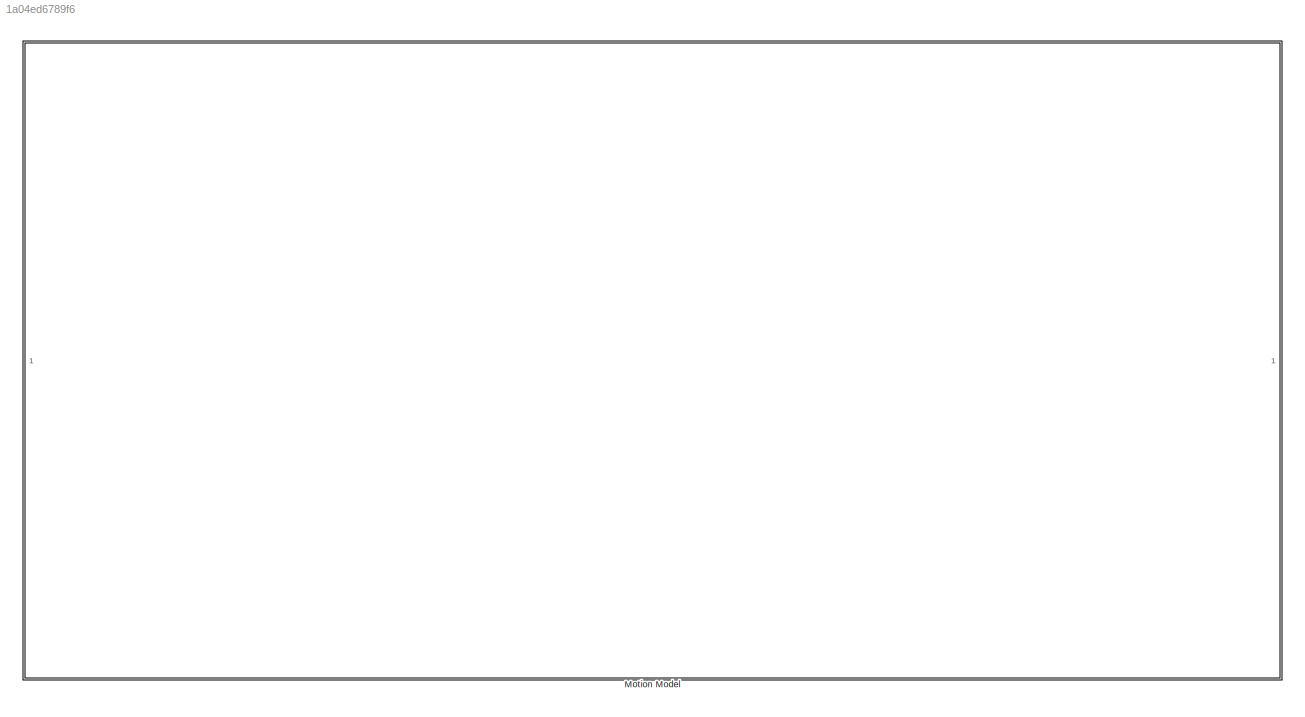
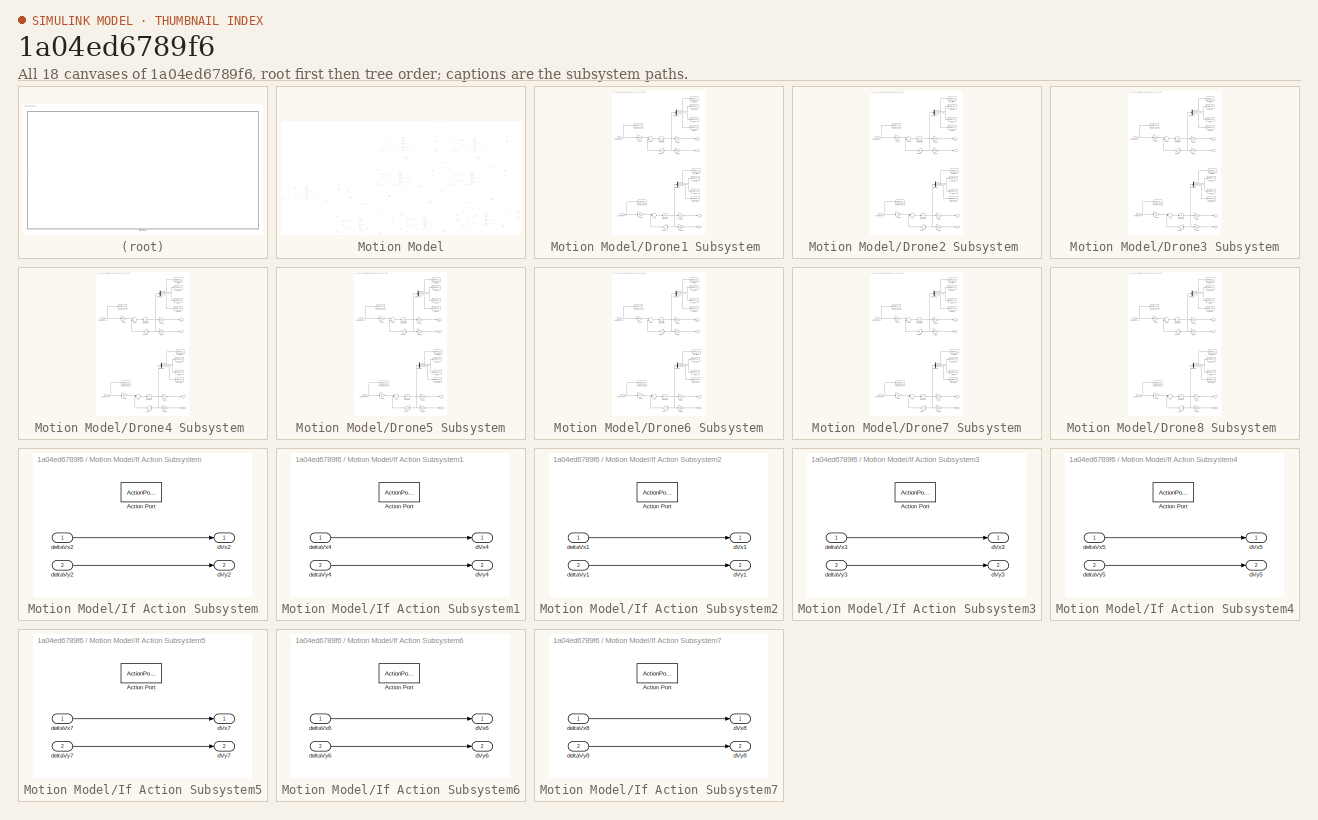
[diagram: thumbnail index - all 18 canvases of the model, root first then tree order]
MODEL slx_1a04ed6789f6
KIND model
CONFIG AbsTol = auto
CONFIG EnableMultiTasking = off
CONFIG FixedStep = auto
CONFIG MaxStep = auto
CONFIG MinStep = auto
CONFIG RelTol = 1e-3
CONFIG SampleTimeConstraint = Unconstrained
CONFIG Solver = VariableStepAuto
CONFIG SolverName = VariableStepAuto
CONFIG StartTime = tStart 
CONFIG StopTime = tFinal
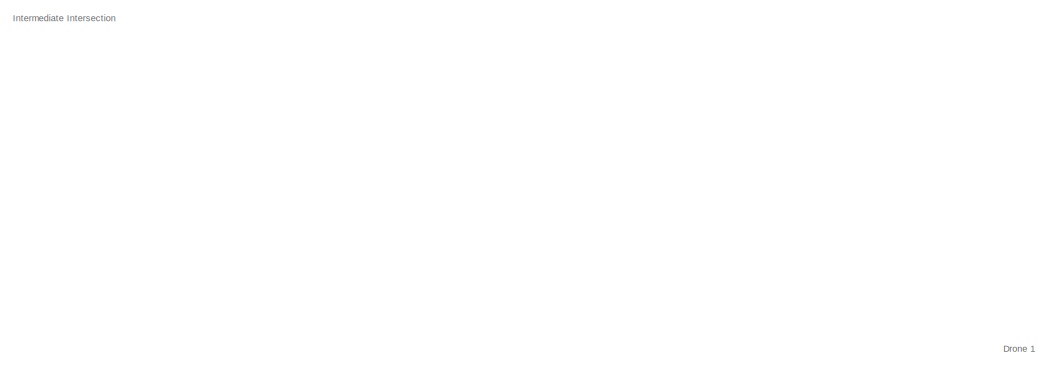
[diagram: Motion Model - part 1/25, top right region]
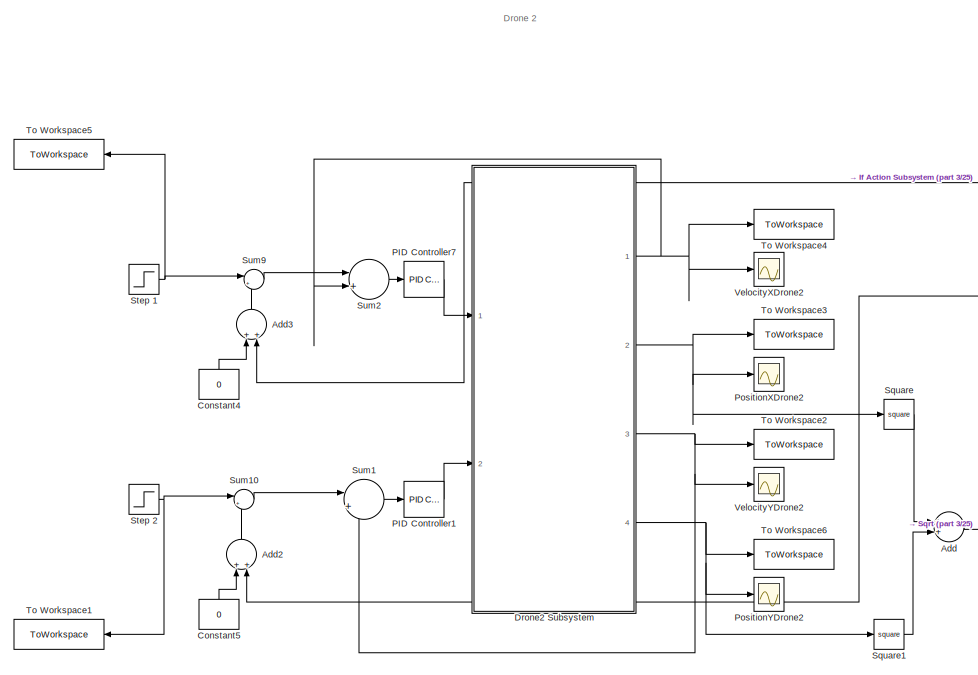
[diagram: Motion Model - part 2/25, top center region]
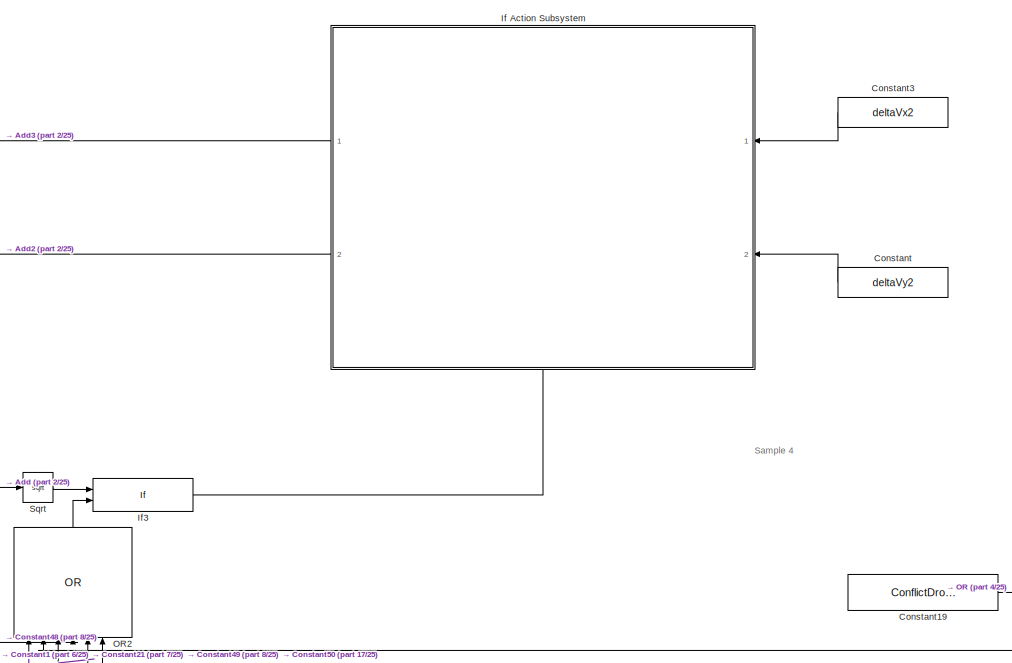
[diagram: Motion Model - part 3/25, top center region]
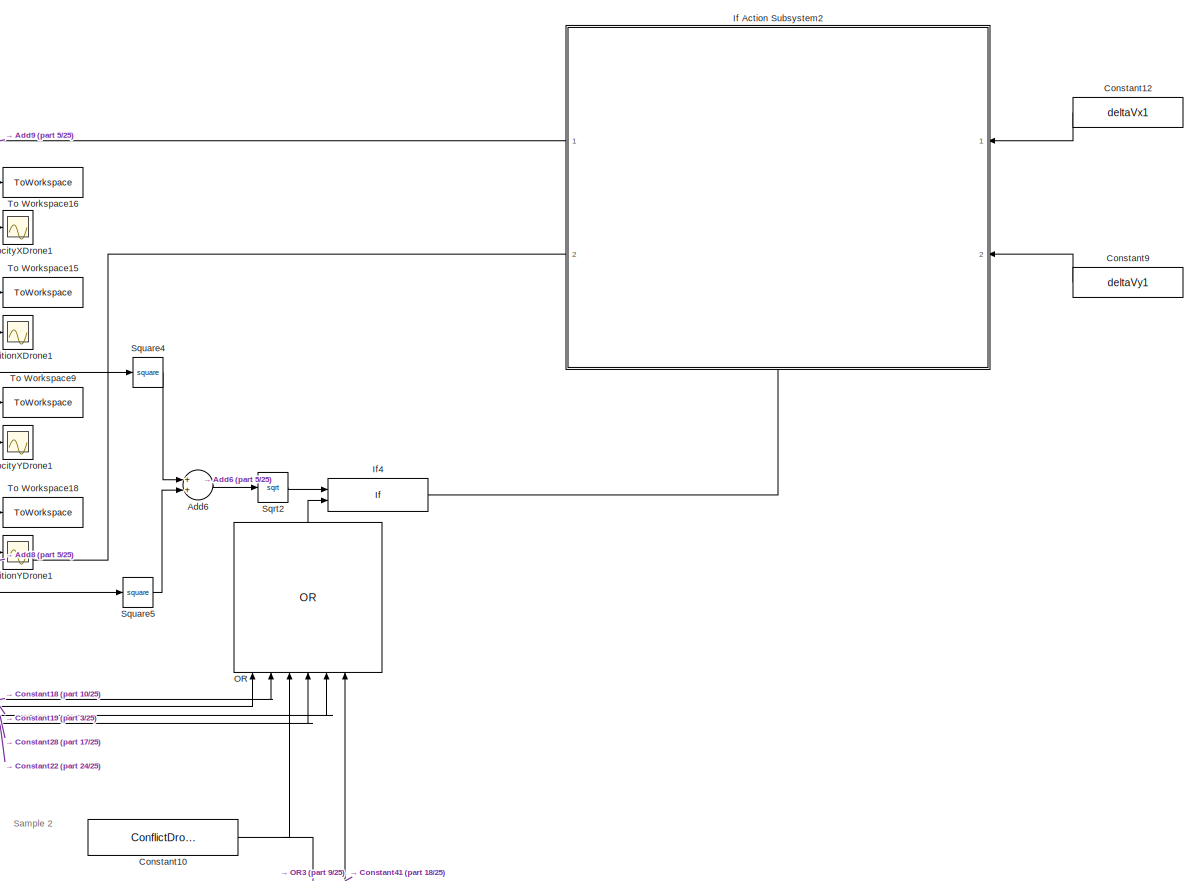
[diagram: Motion Model - part 4/25, top right region]
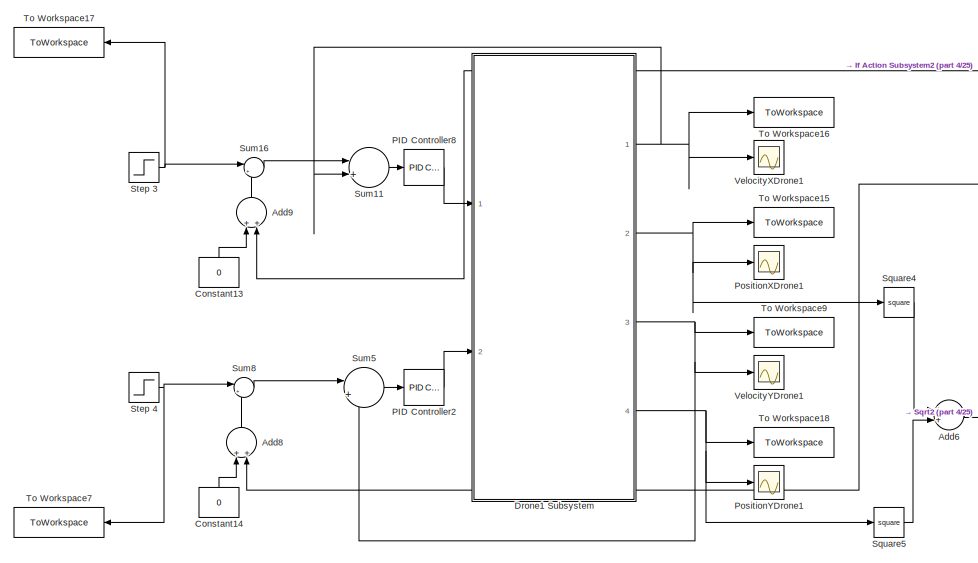
[diagram: Motion Model - part 5/25, top right region]
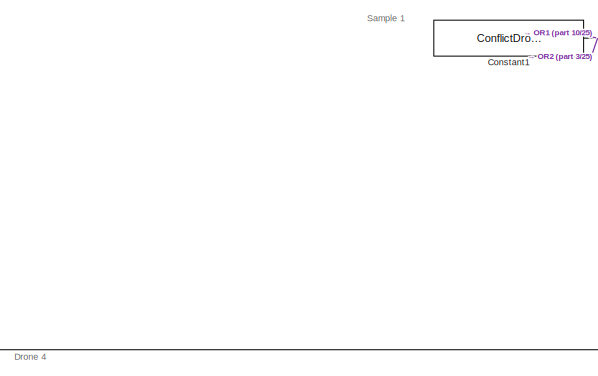
[diagram: Motion Model - part 6/25, central region]
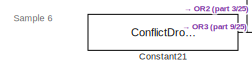
[diagram: Motion Model - part 7/25, middle right region]
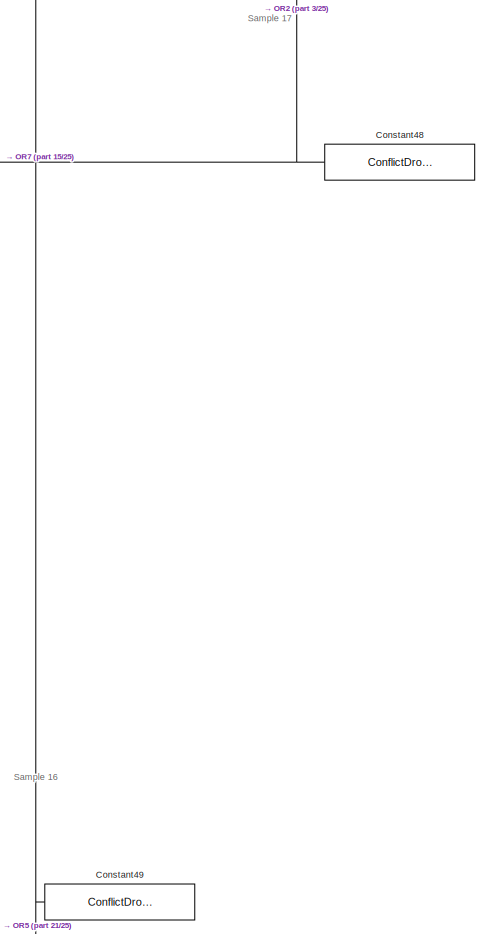
[diagram: Motion Model - part 8/25, middle left region]
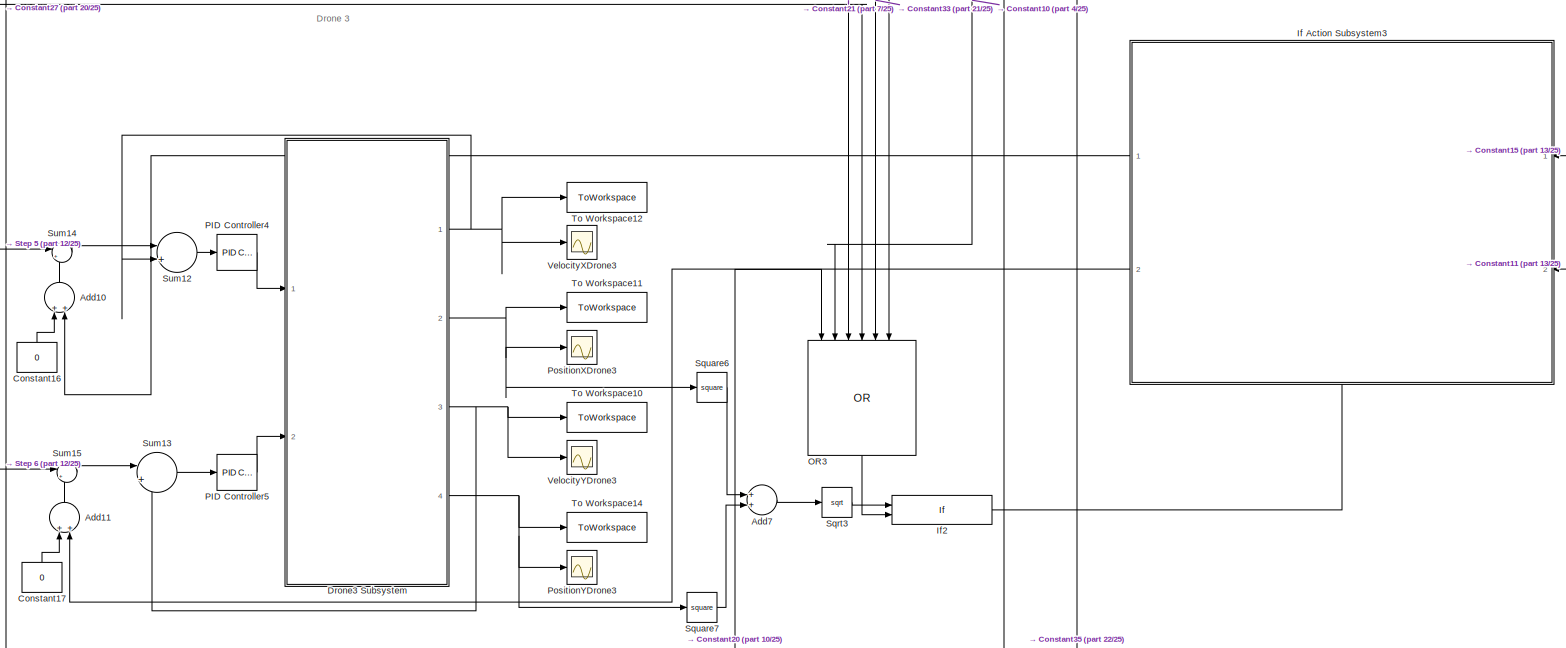
[diagram: Motion Model - part 9/25, middle right region]
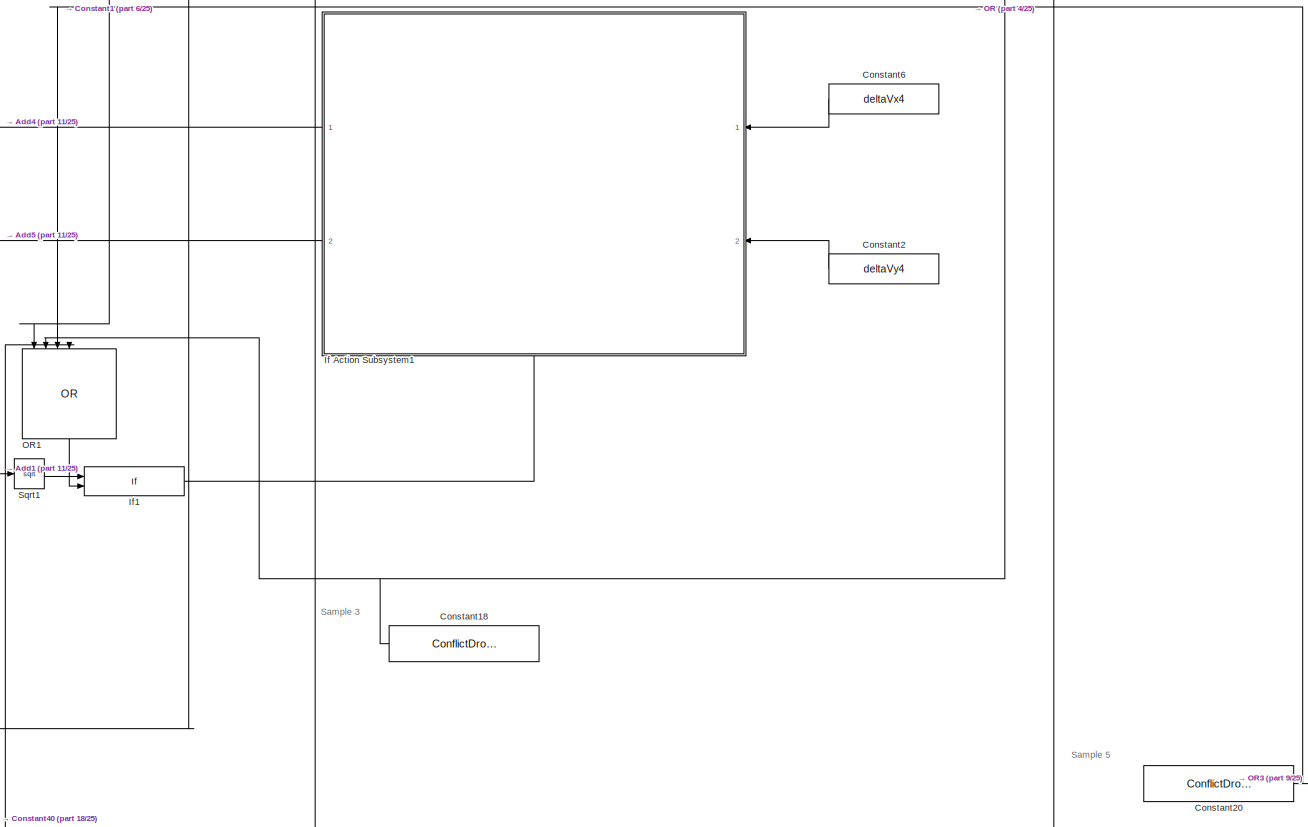
[diagram: Motion Model - part 10/25, central region]
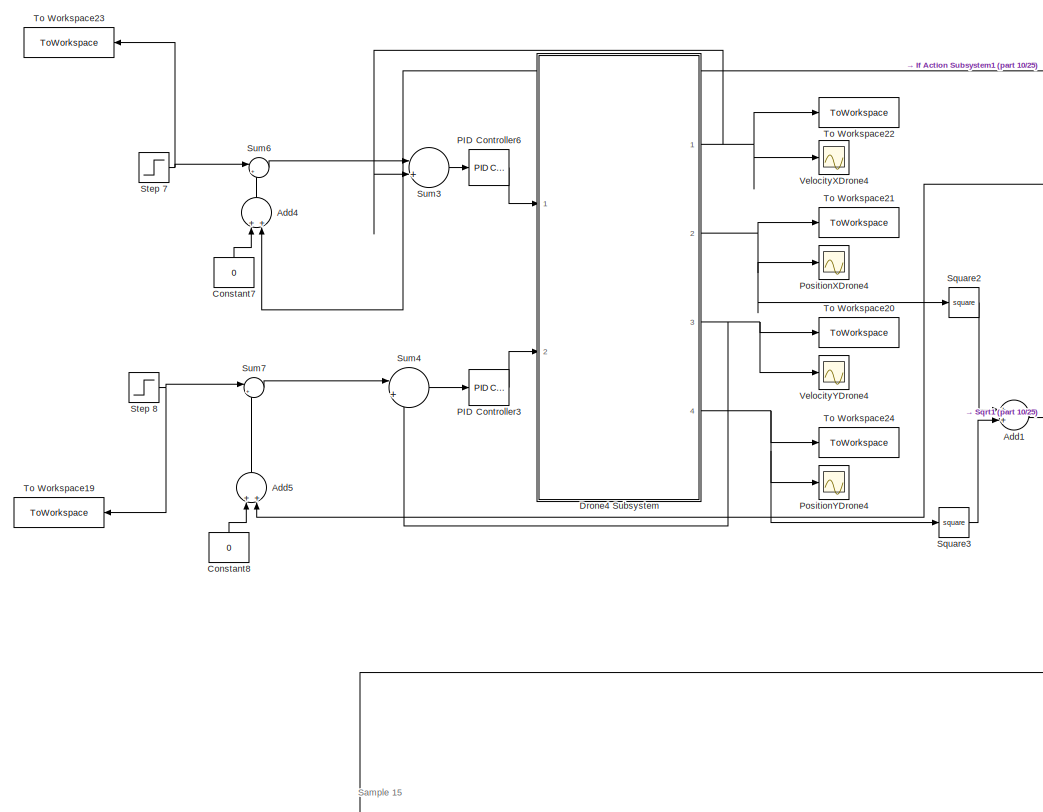
[diagram: Motion Model - part 11/25, central region]
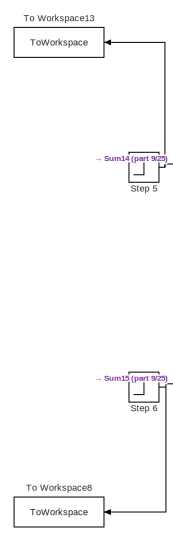
[diagram: Motion Model - part 12/25, middle right region]
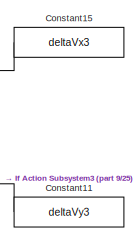
[diagram: Motion Model - part 13/25, middle right region]
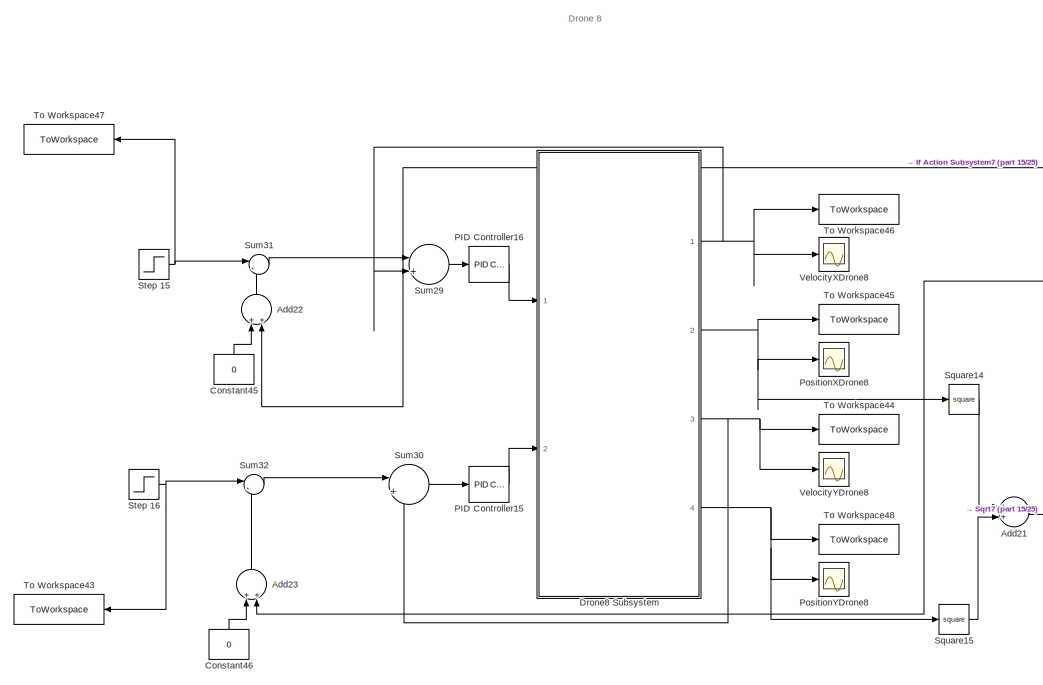
[diagram: Motion Model - part 14/25, middle left region]
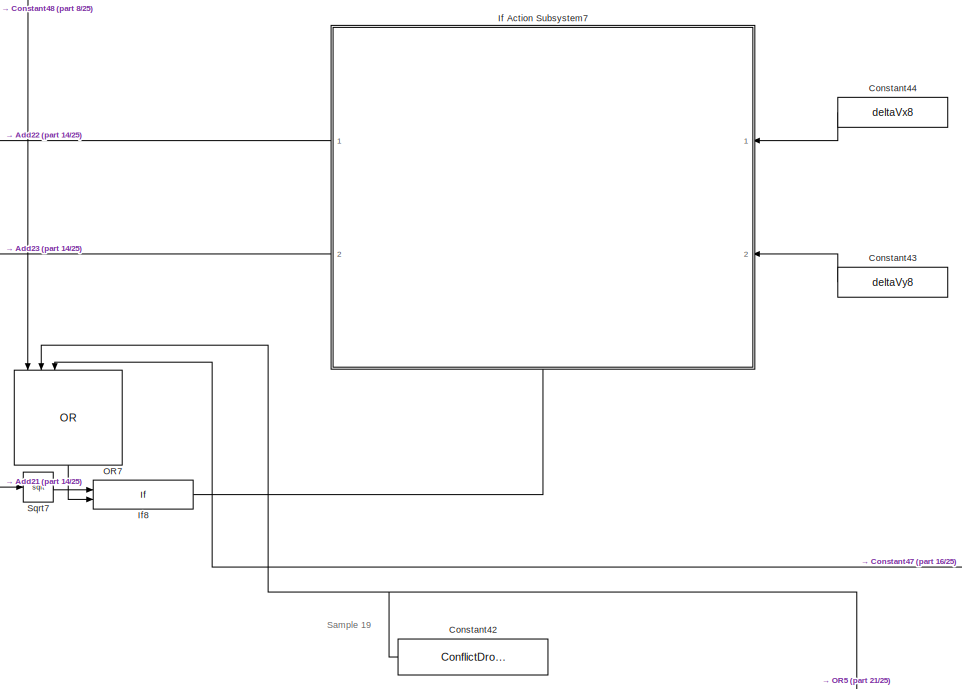
[diagram: Motion Model - part 15/25, middle left region]
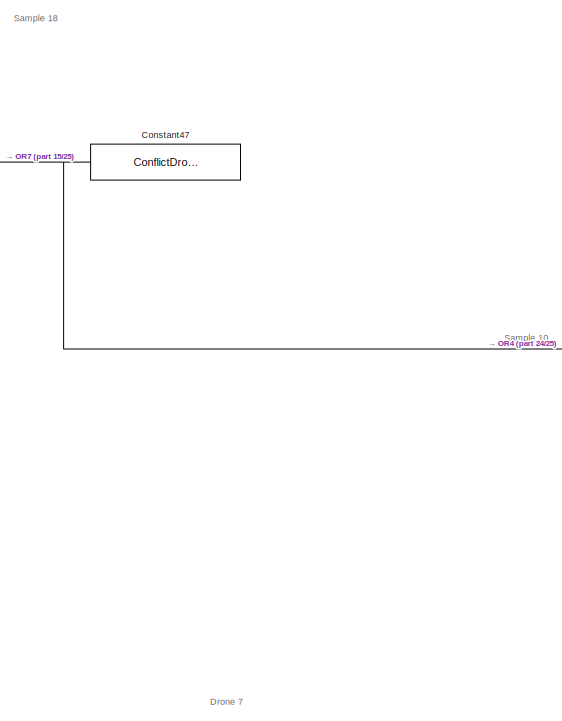
[diagram: Motion Model - part 16/25, bottom left region]
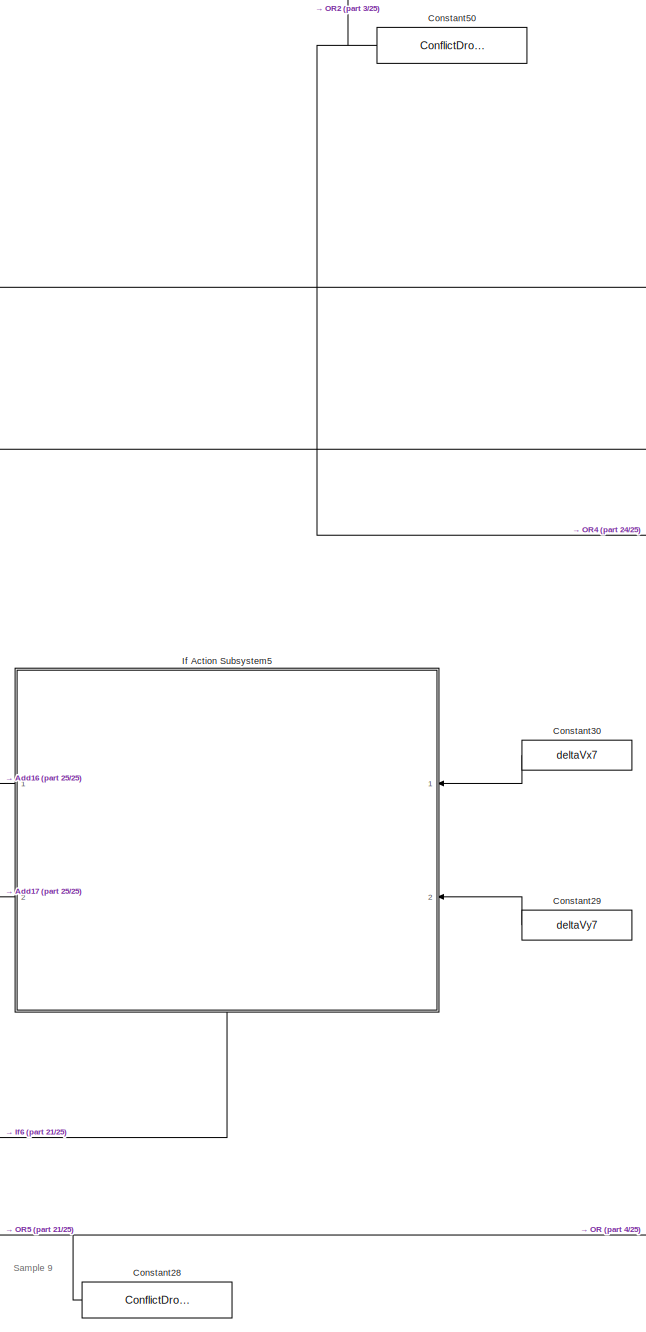
[diagram: Motion Model - part 17/25, bottom center region]
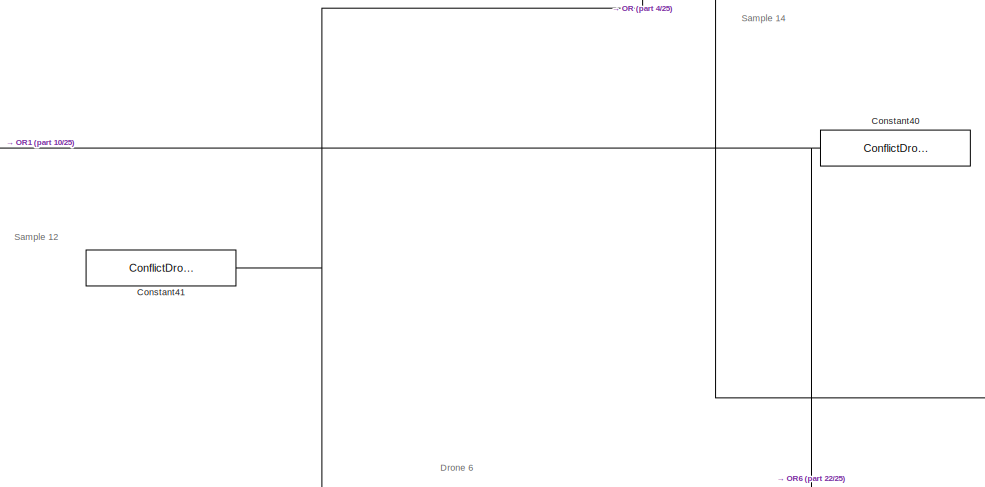
[diagram: Motion Model - part 18/25, bottom right region]
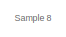
[diagram: Motion Model - part 19/25, bottom center region]
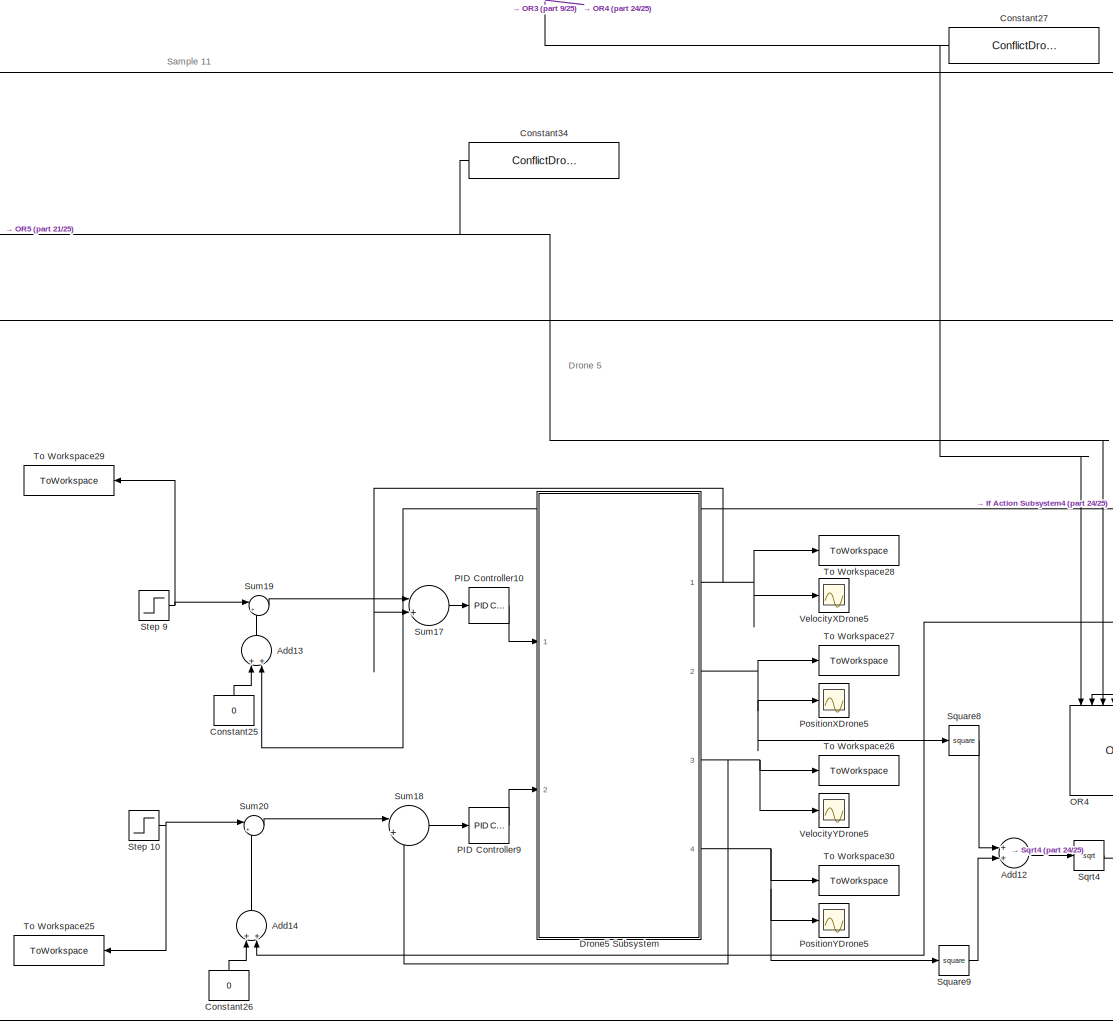
[diagram: Motion Model - part 20/25, bottom center region]
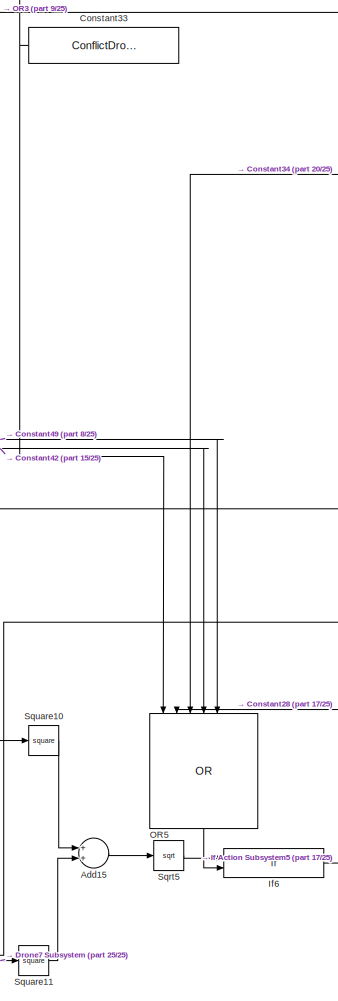
[diagram: Motion Model - part 21/25, bottom center region]
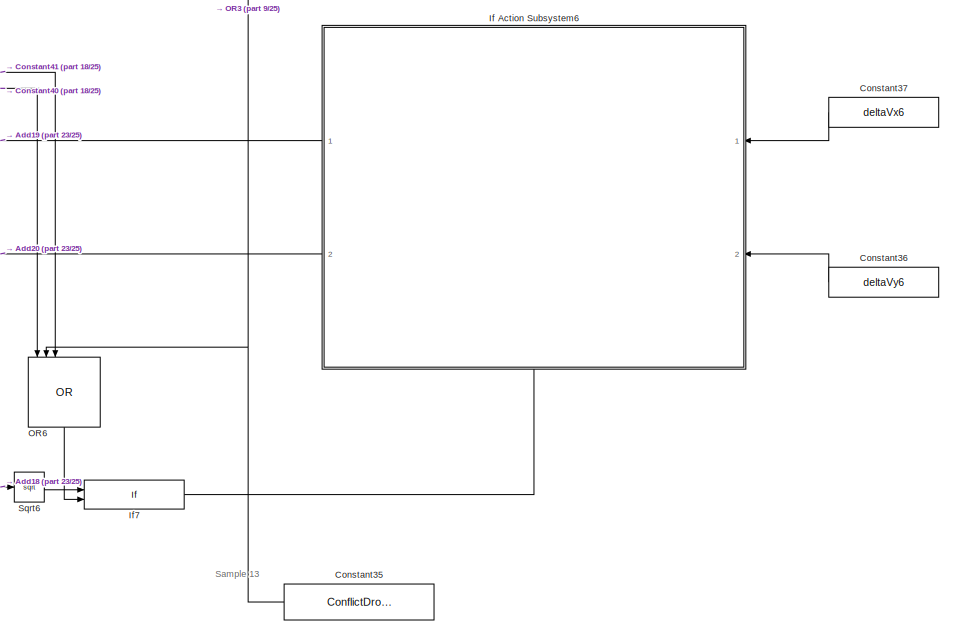
[diagram: Motion Model - part 22/25, bottom right region]
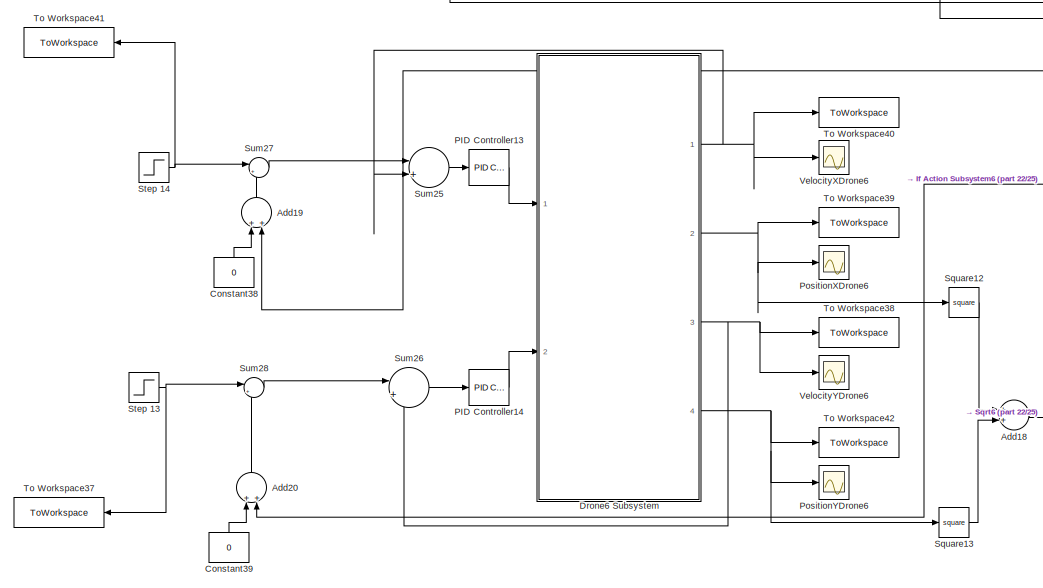
[diagram: Motion Model - part 23/25, bottom right region]
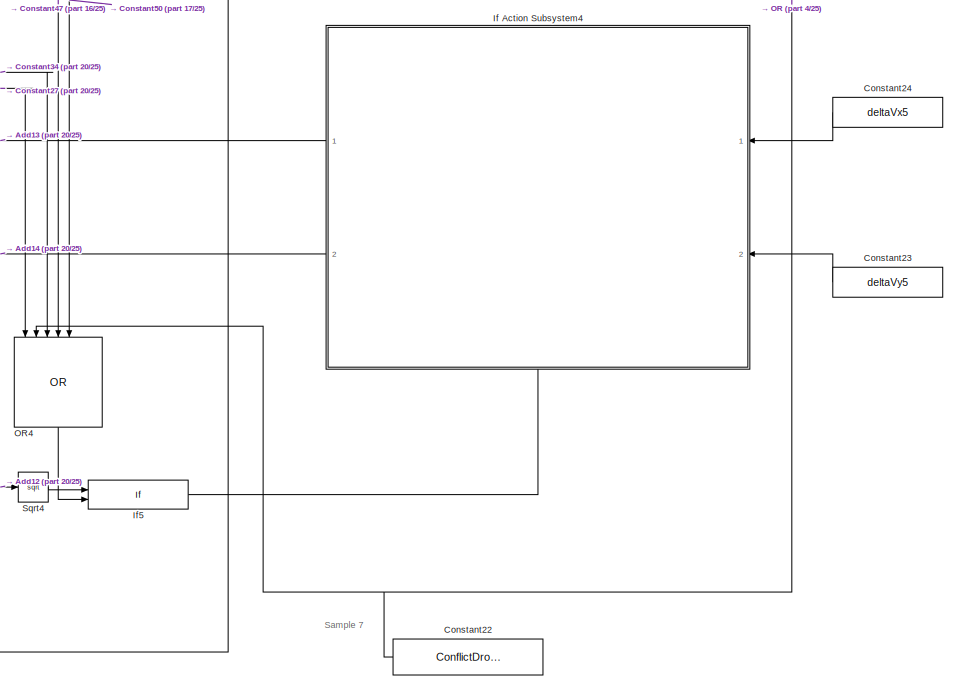
[diagram: Motion Model - part 24/25, bottom right region]
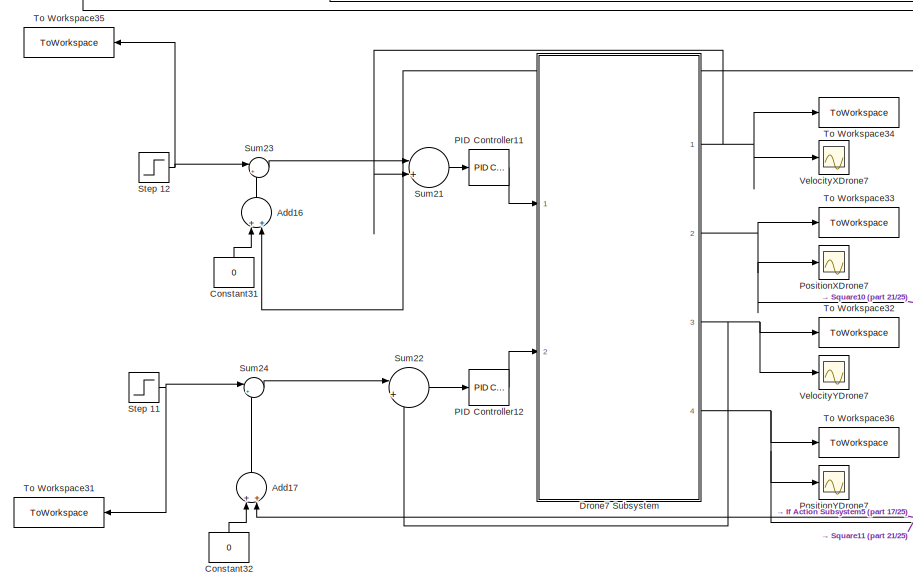
[diagram: Motion Model - part 25/25, bottom left region]
BLOCK [SubSystem] Motion Model
  Ports = []
  RequestExecContextInheritance = off
BLOCK [Sum] Motion Model/Add
  InputSameDT = off
  OutDataTypeStr = Inherit: Inherit via internal rule
  Ports = [2, 1]
  SaturateOnIntegerOverflow = off
BLOCK [Sum] Motion Model/Add1
  InputSameDT = off
  OutDataTypeStr = Inherit: Inherit via internal rule
  Ports = [2, 1]
  SaturateOnIntegerOverflow = off
BLOCK [Sum] Motion Model/Add10
  InputSameDT = off
  OutDataTypeStr = Inherit: Inherit via internal rule
  Ports = [2, 1]
  SaturateOnIntegerOverflow = off
BLOCK [Sum] Motion Model/Add11
  InputSameDT = off
  OutDataTypeStr = Inherit: Inherit via internal rule
  Ports = [2, 1]
  SaturateOnIntegerOverflow = off
BLOCK [Sum] Motion Model/Add12
  InputSameDT = off
  OutDataTypeStr = Inherit: Inherit via internal rule
  Ports = [2, 1]
  SaturateOnIntegerOverflow = off
BLOCK [Sum] Motion Model/Add13
  InputSameDT = off
  OutDataTypeStr = Inherit: Inherit via internal rule
  Ports = [2, 1]
  SaturateOnIntegerOverflow = off
BLOCK [Sum] Motion Model/Add14
  InputSameDT = off
  OutDataTypeStr = Inherit: Inherit via internal rule
  Ports = [2, 1]
  SaturateOnIntegerOverflow = off
BLOCK [Sum] Motion Model/Add15
  InputSameDT = off
  OutDataTypeStr = Inherit: Inherit via internal rule
  Ports = [2, 1]
  SaturateOnIntegerOverflow = off
BLOCK [Sum] Motion Model/Add16
  InputSameDT = off
  OutDataTypeStr = Inherit: Inherit via internal rule
  Ports = [2, 1]
  SaturateOnIntegerOverflow = off
BLOCK [Sum] Motion Model/Add17
  InputSameDT = off
  OutDataTypeStr = Inherit: Inherit via internal rule
  Ports = [2, 1]
  SaturateOnIntegerOverflow = off
BLOCK [Sum] Motion Model/Add18
  InputSameDT = off
  OutDataTypeStr = Inherit: Inherit via internal rule
  Ports = [2, 1]
  SaturateOnIntegerOverflow = off
BLOCK [Sum] Motion Model/Add19
  InputSameDT = off
  OutDataTypeStr = Inherit: Inherit via internal rule
  Ports = [2, 1]
  SaturateOnIntegerOverflow = off
BLOCK [Sum] Motion Model/Add2
  InputSameDT = off
  OutDataTypeStr = Inherit: Inherit via internal rule
  Ports = [2, 1]
  SaturateOnIntegerOverflow = off
BLOCK [Sum] Motion Model/Add20
  InputSameDT = off
  OutDataTypeStr = Inherit: Inherit via internal rule
  Ports = [2, 1]
  SaturateOnIntegerOverflow = off
BLOCK [Sum] Motion Model/Add21
  InputSameDT = off
  OutDataTypeStr = Inherit: Inherit via internal rule
  Ports = [2, 1]
  SaturateOnIntegerOverflow = off
BLOCK [Sum] Motion Model/Add22
  InputSameDT = off
  OutDataTypeStr = Inherit: Inherit via internal rule
  Ports = [2, 1]
  SaturateOnIntegerOverflow = off
BLOCK [Sum] Motion Model/Add23
  InputSameDT = off
  OutDataTypeStr = Inherit: Inherit via internal rule
  Ports = [2, 1]
  SaturateOnIntegerOverflow = off
BLOCK [Sum] Motion Model/Add3
  InputSameDT = off
  OutDataTypeStr = Inherit: Inherit via internal rule
  Ports = [2, 1]
  SaturateOnIntegerOverflow = off
BLOCK [Sum] Motion Model/Add4
  InputSameDT = off
  OutDataTypeStr = Inherit: Inherit via internal rule
  Ports = [2, 1]
  SaturateOnIntegerOverflow = off
BLOCK [Sum] Motion Model/Add5
  InputSameDT = off
  OutDataTypeStr = Inherit: Inherit via internal rule
  Ports = [2, 1]
  SaturateOnIntegerOverflow = off
BLOCK [Sum] Motion Model/Add6
  InputSameDT = off
  OutDataTypeStr = Inherit: Inherit via internal rule
  Ports = [2, 1]
  SaturateOnIntegerOverflow = off
BLOCK [Sum] Motion Model/Add7
  InputSameDT = off
  OutDataTypeStr = Inherit: Inherit via internal rule
  Ports = [2, 1]
  SaturateOnIntegerOverflow = off
BLOCK [Sum] Motion Model/Add8
  InputSameDT = off
  OutDataTypeStr = Inherit: Inherit via internal rule
  Ports = [2, 1]
  SaturateOnIntegerOverflow = off
BLOCK [Sum] Motion Model/Add9
  InputSameDT = off
  OutDataTypeStr = Inherit: Inherit via internal rule
  Ports = [2, 1]
  SaturateOnIntegerOverflow = off
BLOCK [Constant] Motion Model/Constant
  Value = deltaVy2
BLOCK [Constant] Motion Model/Constant1
  Value = ConflictDrone2andDrone4
BLOCK [Constant] Motion Model/Constant10
  Value = ConflictDrone1andDrone3
BLOCK [Constant] Motion Model/Constant11
  Value = deltaVy3
BLOCK [Constant] Motion Model/Constant12
  Value = deltaVx1
BLOCK [Constant] Motion Model/Constant13
  Value = 0
BLOCK [Constant] Motion Model/Constant14
  Value = 0
BLOCK [Constant] Motion Model/Constant15
  Value = deltaVx3
BLOCK [Constant] Motion Model/Constant16
  Value = 0
BLOCK [Constant] Motion Model/Constant17
  Value = 0
BLOCK [Constant] Motion Model/Constant18
  Value = ConflictDrone1andDrone4
BLOCK [Constant] Motion Model/Constant19
  Value = ConflictDrone1andDrone2
BLOCK [Constant] Motion Model/Constant2
  Value = deltaVy4
BLOCK [Constant] Motion Model/Constant20
  Value = ConflictDrone3andDrone4
BLOCK [Constant] Motion Model/Constant21
  Value = ConflictDrone2andDrone3
BLOCK [Constant] Motion Model/Constant22
  Value = ConflictDrone1andDrone5
BLOCK [Constant] Motion Model/Constant23
  Value = deltaVy5
BLOCK [Constant] Motion Model/Constant24
  Value = deltaVx5
BLOCK [Constant] Motion Model/Constant25
  Value = 0
BLOCK [Constant] Motion Model/Constant26
  Value = 0
BLOCK [Constant] Motion Model/Constant27
  Value = ConflictDrone3andDrone5
BLOCK [Constant] Motion Model/Constant28
  Value = ConflictDrone1andDrone7
BLOCK [Constant] Motion Model/Constant29
  Value = deltaVy7
BLOCK [Constant] Motion Model/Constant3
  Value = deltaVx2
BLOCK [Constant] Motion Model/Constant30
  Value = deltaVx7
BLOCK [Constant] Motion Model/Constant31
  Value = 0
BLOCK [Constant] Motion Model/Constant32
  Value = 0
BLOCK [Constant] Motion Model/Constant33
  Value = ConflictDrone3andDrone7
BLOCK [Constant] Motion Model/Constant34
  Value = ConflictDrone5andDrone7
BLOCK [Constant] Motion Model/Constant35
  Value = ConflictDrone3andDrone6
BLOCK [Constant] Motion Model/Constant36
  Value = deltaVy6
BLOCK [Constant] Motion Model/Constant37
  Value = deltaVx6
BLOCK [Constant] Motion Model/Constant38
  Value = 0
BLOCK [Constant] Motion Model/Constant39
  Value = 0
BLOCK [Constant] Motion Model/Constant4
  Value = 0
BLOCK [Constant] Motion Model/Constant40
  Value = ConflictDrone4andDrone6
BLOCK [Constant] Motion Model/Constant41
  Value = ConflictDrone1andDrone6
BLOCK [Constant] Motion Model/Constant42
  Value = ConflictDrone7andDrone8
BLOCK [Constant] Motion Model/Constant43
  Value = deltaVy8
BLOCK [Constant] Motion Model/Constant44
  Value = deltaVx8
BLOCK [Constant] Motion Model/Constant45
  Value = 0
BLOCK [Constant] Motion Model/Constant46
  Value = 0
BLOCK [Constant] Motion Model/Constant47
  Value = ConflictDrone5andDrone8
BLOCK [Constant] Motion Model/Constant48
  Value = ConflictDrone2andDrone8
BLOCK [Constant] Motion Model/Constant49
  Value = ConflictDrone2andDrone7
BLOCK [Constant] Motion Model/Constant5
  Value = 0
BLOCK [Constant] Motion Model/Constant50
  Value = ConflictDrone2andDrone5
BLOCK [Constant] Motion Model/Constant6
  Value = deltaVx4
BLOCK [Constant] Motion Model/Constant7
  Value = 0
BLOCK [Constant] Motion Model/Constant8
  Value = 0
BLOCK [Constant] Motion Model/Constant9
  Value = deltaVy1
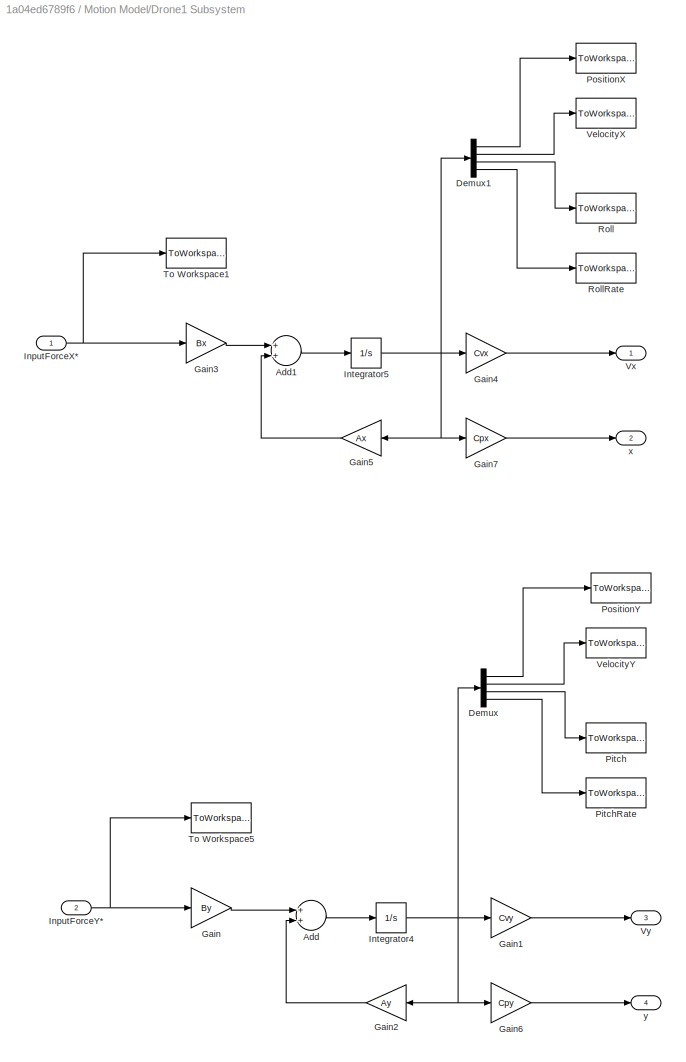
BLOCK [SubSystem] Motion Model/Drone1 Subsystem 
  Ports = [2, 4]
  RequestExecContextInheritance = off
BLOCK [Sum] Motion Model/Drone1 Subsystem /Add
  InputSameDT = off
  OutDataTypeStr = Inherit: Inherit via internal rule
  Ports = [2, 1]
  SaturateOnIntegerOverflow = off
BLOCK [Sum] Motion Model/Drone1 Subsystem /Add1
  InputSameDT = off
  OutDataTypeStr = Inherit: Inherit via internal rule
  Ports = [2, 1]
  SaturateOnIntegerOverflow = off
BLOCK [Demux] Motion Model/Drone1 Subsystem /Demux
  DisplayOption = bar
  Ports = [1, 4]
BLOCK [Demux] Motion Model/Drone1 Subsystem /Demux1
  DisplayOption = bar
  Ports = [1, 4]
BLOCK [Gain] Motion Model/Drone1 Subsystem /Gain
  Gain = By
  Multiplication = Matrix(K*u)
  OutDataTypeStr = Inherit: Inherit via internal rule
  ParamDataTypeStr = Inherit: Inherit via internal rule
  SaturateOnIntegerOverflow = off
BLOCK [Gain] Motion Model/Drone1 Subsystem /Gain1
  Gain = Cvy
  Multiplication = Matrix(K*u)
  OutDataTypeStr = Inherit: Inherit via internal rule
  ParamDataTypeStr = Inherit: Inherit via internal rule
  SaturateOnIntegerOverflow = off
BLOCK [Gain] Motion Model/Drone1 Subsystem /Gain2
  Gain = Ay
  Multiplication = Matrix(K*u)
  OutDataTypeStr = Inherit: Inherit via internal rule
  ParamDataTypeStr = Inherit: Inherit via internal rule
  SaturateOnIntegerOverflow = off
BLOCK [Gain] Motion Model/Drone1 Subsystem /Gain3
  Gain = Bx
  Multiplication = Matrix(K*u)
  OutDataTypeStr = Inherit: Inherit via internal rule
  ParamDataTypeStr = Inherit: Inherit via internal rule
  SaturateOnIntegerOverflow = off
BLOCK [Gain] Motion Model/Drone1 Subsystem /Gain4
  Gain = Cvx
  Multiplication = Matrix(K*u)
  OutDataTypeStr = Inherit: Inherit via internal rule
  ParamDataTypeStr = Inherit: Inherit via internal rule
  SaturateOnIntegerOverflow = off
BLOCK [Gain] Motion Model/Drone1 Subsystem /Gain5
  Gain = Ax
  Multiplication = Matrix(K*u)
  OutDataTypeStr = Inherit: Inherit via internal rule
  ParamDataTypeStr = Inherit: Inherit via internal rule
  SaturateOnIntegerOverflow = off
BLOCK [Gain] Motion Model/Drone1 Subsystem /Gain6
  Gain = Cpy
  Multiplication = Matrix(K*u)
  OutDataTypeStr = Inherit: Inherit via internal rule
  ParamDataTypeStr = Inherit: Inherit via internal rule
  SaturateOnIntegerOverflow = off
BLOCK [Gain] Motion Model/Drone1 Subsystem /Gain7
  Gain = Cpx
  Multiplication = Matrix(K*u)
  OutDataTypeStr = Inherit: Inherit via internal rule
  ParamDataTypeStr = Inherit: Inherit via internal rule
  SaturateOnIntegerOverflow = off
BLOCK [Inport] Motion Model/Drone1 Subsystem /InputForceX*
  IconDisplay = Port number
BLOCK [Inport] Motion Model/Drone1 Subsystem /InputForceY* 
  IconDisplay = Port number
  Port = 2
BLOCK [Integrator] Motion Model/Drone1 Subsystem /Integrator4
  InitialCondition = Y10
  Ports = [1, 1]
BLOCK [Integrator] Motion Model/Drone1 Subsystem /Integrator5
  InitialCondition = X10
  Ports = [1, 1]
BLOCK [ToWorkspace] Motion Model/Drone1 Subsystem /Pitch
  FixptAsFi = on
  MaxDataPoints = inf
  Ports = [1]
  SampleTime = -1
  Save2DSignal = 3-D array (concatenate along third dimension)
  VariableName = Theta1
BLOCK [ToWorkspace] Motion Model/Drone1 Subsystem /PitchRate
  FixptAsFi = on
  MaxDataPoints = inf
  Ports = [1]
  SampleTime = -1
  Save2DSignal = 3-D array (concatenate along third dimension)
  VariableName = ThetaDot1
BLOCK [ToWorkspace] Motion Model/Drone1 Subsystem /PositionX
  FixptAsFi = on
  MaxDataPoints = inf
  Ports = [1]
  SampleTime = -1
  Save2DSignal = 3-D array (concatenate along third dimension)
  VariableName = x1
BLOCK [ToWorkspace] Motion Model/Drone1 Subsystem /PositionY
  FixptAsFi = on
  MaxDataPoints = inf
  Ports = [1]
  SampleTime = -1
  Save2DSignal = 3-D array (concatenate along third dimension)
  VariableName = y1
BLOCK [ToWorkspace] Motion Model/Drone1 Subsystem /Roll
  FixptAsFi = on
  MaxDataPoints = inf
  Ports = [1]
  SampleTime = -1
  Save2DSignal = 3-D array (concatenate along third dimension)
  VariableName = Psi1
BLOCK [ToWorkspace] Motion Model/Drone1 Subsystem /RollRate
  FixptAsFi = on
  MaxDataPoints = inf
  Ports = [1]
  SampleTime = -1
  Save2DSignal = 3-D array (concatenate along third dimension)
  VariableName = PsiDot1
BLOCK [ToWorkspace] Motion Model/Drone1 Subsystem /To Workspace1
  FixptAsFi = on
  MaxDataPoints = inf
  Ports = [1]
  SampleTime = -1
  Save2DSignal = 3-D array (concatenate along third dimension)
  VariableName = RollReference1
BLOCK [ToWorkspace] Motion Model/Drone1 Subsystem /To Workspace5
  FixptAsFi = on
  MaxDataPoints = inf
  Ports = [1]
  SampleTime = -1
  Save2DSignal = 3-D array (concatenate along third dimension)
  VariableName = PitchReference1
BLOCK [ToWorkspace] Motion Model/Drone1 Subsystem /VelocityX
  FixptAsFi = on
  MaxDataPoints = inf
  Ports = [1]
  SampleTime = -1
  Save2DSignal = 3-D array (concatenate along third dimension)
  VariableName = vx1
BLOCK [ToWorkspace] Motion Model/Drone1 Subsystem /VelocityY
  FixptAsFi = on
  MaxDataPoints = inf
  Ports = [1]
  SampleTime = -1
  Save2DSignal = 3-D array (concatenate along third dimension)
  VariableName = vy1
BLOCK [Outport] Motion Model/Drone1 Subsystem /Vx
  IconDisplay = Port number
BLOCK [Outport] Motion Model/Drone1 Subsystem /Vy
  IconDisplay = Port number
  Port = 3
BLOCK [Outport] Motion Model/Drone1 Subsystem /x
  IconDisplay = Port number
  Port = 2
BLOCK [Outport] Motion Model/Drone1 Subsystem /y
  IconDisplay = Port number
  Port = 4
BLOCK [SubSystem] Motion Model/Drone2 Subsystem 
  Ports = [2, 4]
  RequestExecContextInheritance = off
BLOCK [Sum] Motion Model/Drone2 Subsystem /Add
  InputSameDT = off
  OutDataTypeStr = Inherit: Inherit via internal rule
  Ports = [2, 1]
  SaturateOnIntegerOverflow = off
BLOCK [Sum] Motion Model/Drone2 Subsystem /Add1
  InputSameDT = off
  OutDataTypeStr = Inherit: Inherit via internal rule
  Ports = [2, 1]
  SaturateOnIntegerOverflow = off
BLOCK [Demux] Motion Model/Drone2 Subsystem /Demux
  DisplayOption = bar
  Ports = [1, 4]
BLOCK [Demux] Motion Model/Drone2 Subsystem /Demux1
  DisplayOption = bar
  Ports = [1, 4]
BLOCK [Gain] Motion Model/Drone2 Subsystem /Gain
  Gain = By
  Multiplication = Matrix(K*u)
  OutDataTypeStr = Inherit: Inherit via internal rule
  ParamDataTypeStr = Inherit: Inherit via internal rule
  SaturateOnIntegerOverflow = off
BLOCK [Gain] Motion Model/Drone2 Subsystem /Gain1
  Gain = Cvy
  Multiplication = Matrix(K*u)
  OutDataTypeStr = Inherit: Inherit via internal rule
  ParamDataTypeStr = Inherit: Inherit via internal rule
  SaturateOnIntegerOverflow = off
BLOCK [Gain] Motion Model/Drone2 Subsystem /Gain2
  Gain = Ay
  Multiplication = Matrix(K*u)
  OutDataTypeStr = Inherit: Inherit via internal rule
  ParamDataTypeStr = Inherit: Inherit via internal rule
  SaturateOnIntegerOverflow = off
BLOCK [Gain] Motion Model/Drone2 Subsystem /Gain3
  Gain = Bx
  Multiplication = Matrix(K*u)
  OutDataTypeStr = Inherit: Inherit via internal rule
  ParamDataTypeStr = Inherit: Inherit via internal rule
  SaturateOnIntegerOverflow = off
BLOCK [Gain] Motion Model/Drone2 Subsystem /Gain4
  Gain = Cvx
  Multiplication = Matrix(K*u)
  OutDataTypeStr = Inherit: Inherit via internal rule
  ParamDataTypeStr = Inherit: Inherit via internal rule
  SaturateOnIntegerOverflow = off
BLOCK [Gain] Motion Model/Drone2 Subsystem /Gain5
  Gain = Ax
  Multiplication = Matrix(K*u)
  OutDataTypeStr = Inherit: Inherit via internal rule
  ParamDataTypeStr = Inherit: Inherit via internal rule
  SaturateOnIntegerOverflow = off
BLOCK [Gain] Motion Model/Drone2 Subsystem /Gain6
  Gain = Cpy
  Multiplication = Matrix(K*u)
  OutDataTypeStr = Inherit: Inherit via internal rule
  ParamDataTypeStr = Inherit: Inherit via internal rule
  SaturateOnIntegerOverflow = off
BLOCK [Gain] Motion Model/Drone2 Subsystem /Gain7
  Gain = Cpx
  Multiplication = Matrix(K*u)
  OutDataTypeStr = Inherit: Inherit via internal rule
  ParamDataTypeStr = Inherit: Inherit via internal rule
  SaturateOnIntegerOverflow = off
BLOCK [Inport] Motion Model/Drone2 Subsystem /InputForceX*
  IconDisplay = Port number
BLOCK [Inport] Motion Model/Drone2 Subsystem /InputForceY* 
  IconDisplay = Port number
  Port = 2
BLOCK [Integrator] Motion Model/Drone2 Subsystem /Integrator4
  InitialCondition = Y20
  Ports = [1, 1]
BLOCK [Integrator] Motion Model/Drone2 Subsystem /Integrator5
  InitialCondition = X20
  Ports = [1, 1]
BLOCK [ToWorkspace] Motion Model/Drone2 Subsystem /Pitch
  FixptAsFi = on
  MaxDataPoints = inf
  Ports = [1]
  SampleTime = -1
  Save2DSignal = 3-D array (concatenate along third dimension)
  VariableName = Theta2
BLOCK [ToWorkspace] Motion Model/Drone2 Subsystem /PitchRate
  FixptAsFi = on
  MaxDataPoints = inf
  Ports = [1]
  SampleTime = -1
  Save2DSignal = 3-D array (concatenate along third dimension)
  VariableName = ThetaDot2
BLOCK [ToWorkspace] Motion Model/Drone2 Subsystem /PositionX
  FixptAsFi = on
  MaxDataPoints = inf
  Ports = [1]
  SampleTime = -1
  Save2DSignal = 3-D array (concatenate along third dimension)
  VariableName = x2
BLOCK [ToWorkspace] Motion Model/Drone2 Subsystem /PositionY
  FixptAsFi = on
  MaxDataPoints = inf
  Ports = [1]
  SampleTime = -1
  Save2DSignal = 3-D array (concatenate along third dimension)
  VariableName = y2
BLOCK [ToWorkspace] Motion Model/Drone2 Subsystem /Roll
  FixptAsFi = on
  MaxDataPoints = inf
  Ports = [1]
  SampleTime = -1
  Save2DSignal = 3-D array (concatenate along third dimension)
  VariableName = Psi2
BLOCK [ToWorkspace] Motion Model/Drone2 Subsystem /RollRate
  FixptAsFi = on
  MaxDataPoints = inf
  Ports = [1]
  SampleTime = -1
  Save2DSignal = 3-D array (concatenate along third dimension)
  VariableName = PsiDot2
BLOCK [ToWorkspace] Motion Model/Drone2 Subsystem /To Workspace1
  FixptAsFi = on
  MaxDataPoints = inf
  Ports = [1]
  SampleTime = -1
  Save2DSignal = 3-D array (concatenate along third dimension)
  VariableName = RollReference2
BLOCK [ToWorkspace] Motion Model/Drone2 Subsystem /To Workspace5
  FixptAsFi = on
  MaxDataPoints = inf
  Ports = [1]
  SampleTime = -1
  Save2DSignal = 3-D array (concatenate along third dimension)
  VariableName = PitchReference2
BLOCK [ToWorkspace] Motion Model/Drone2 Subsystem /VelocityX
  FixptAsFi = on
  MaxDataPoints = inf
  Ports = [1]
  SampleTime = -1
  Save2DSignal = 3-D array (concatenate along third dimension)
  VariableName = vx2
BLOCK [ToWorkspace] Motion Model/Drone2 Subsystem /VelocityY
  FixptAsFi = on
  MaxDataPoints = inf
  Ports = [1]
  SampleTime = -1
  Save2DSignal = 3-D array (concatenate along third dimension)
  VariableName = vy2
BLOCK [Outport] Motion Model/Drone2 Subsystem /Vx
  IconDisplay = Port number
BLOCK [Outport] Motion Model/Drone2 Subsystem /Vy
  IconDisplay = Port number
  Port = 3
BLOCK [Outport] Motion Model/Drone2 Subsystem /x
  IconDisplay = Port number
  Port = 2
BLOCK [Outport] Motion Model/Drone2 Subsystem /y
  IconDisplay = Port number
  Port = 4
BLOCK [SubSystem] Motion Model/Drone3 Subsystem
  Ports = [2, 4]
  RequestExecContextInheritance = off
BLOCK [Sum] Motion Model/Drone3 Subsystem/Add
  InputSameDT = off
  OutDataTypeStr = Inherit: Inherit via internal rule
  Ports = [2, 1]
  SaturateOnIntegerOverflow = off
BLOCK [Sum] Motion Model/Drone3 Subsystem/Add1
  InputSameDT = off
  OutDataTypeStr = Inherit: Inherit via internal rule
  Ports = [2, 1]
  SaturateOnIntegerOverflow = off
BLOCK [Demux] Motion Model/Drone3 Subsystem/Demux
  DisplayOption = bar
  Ports = [1, 4]
BLOCK [Demux] Motion Model/Drone3 Subsystem/Demux1
  DisplayOption = bar
  Ports = [1, 4]
BLOCK [Gain] Motion Model/Drone3 Subsystem/Gain
  Gain = By
  Multiplication = Matrix(K*u)
  OutDataTypeStr = Inherit: Inherit via internal rule
  ParamDataTypeStr = Inherit: Inherit via internal rule
  SaturateOnIntegerOverflow = off
BLOCK [Gain] Motion Model/Drone3 Subsystem/Gain1
  Gain = Cvy
  Multiplication = Matrix(K*u)
  OutDataTypeStr = Inherit: Inherit via internal rule
  ParamDataTypeStr = Inherit: Inherit via internal rule
  SaturateOnIntegerOverflow = off
BLOCK [Gain] Motion Model/Drone3 Subsystem/Gain2
  Gain = Ay
  Multiplication = Matrix(K*u)
  OutDataTypeStr = Inherit: Inherit via internal rule
  ParamDataTypeStr = Inherit: Inherit via internal rule
  SaturateOnIntegerOverflow = off
BLOCK [Gain] Motion Model/Drone3 Subsystem/Gain3
  Gain = Bx
  Multiplication = Matrix(K*u)
  OutDataTypeStr = Inherit: Inherit via internal rule
  ParamDataTypeStr = Inherit: Inherit via internal rule
  SaturateOnIntegerOverflow = off
BLOCK [Gain] Motion Model/Drone3 Subsystem/Gain4
  Gain = Cvx
  Multiplication = Matrix(K*u)
  OutDataTypeStr = Inherit: Inherit via internal rule
  ParamDataTypeStr = Inherit: Inherit via internal rule
  SaturateOnIntegerOverflow = off
BLOCK [Gain] Motion Model/Drone3 Subsystem/Gain5
  Gain = Ax
  Multiplication = Matrix(K*u)
  OutDataTypeStr = Inherit: Inherit via internal rule
  ParamDataTypeStr = Inherit: Inherit via internal rule
  SaturateOnIntegerOverflow = off
BLOCK [Gain] Motion Model/Drone3 Subsystem/Gain6
  Gain = Cpy
  Multiplication = Matrix(K*u)
  OutDataTypeStr = Inherit: Inherit via internal rule
  ParamDataTypeStr = Inherit: Inherit via internal rule
  SaturateOnIntegerOverflow = off
BLOCK [Gain] Motion Model/Drone3 Subsystem/Gain7
  Gain = Cpx
  Multiplication = Matrix(K*u)
  OutDataTypeStr = Inherit: Inherit via internal rule
  ParamDataTypeStr = Inherit: Inherit via internal rule
  SaturateOnIntegerOverflow = off
BLOCK [Inport] Motion Model/Drone3 Subsystem/InputForceX*
  IconDisplay = Port number
BLOCK [Inport] Motion Model/Drone3 Subsystem/InputForceY* 
  IconDisplay = Port number
  Port = 2
BLOCK [Integrator] Motion Model/Drone3 Subsystem/Integrator4
  InitialCondition = Y30
  Ports = [1, 1]
BLOCK [Integrator] Motion Model/Drone3 Subsystem/Integrator5
  InitialCondition = X30
  Ports = [1, 1]
BLOCK [ToWorkspace] Motion Model/Drone3 Subsystem/Pitch
  FixptAsFi = on
  MaxDataPoints = inf
  Ports = [1]
  SampleTime = -1
  Save2DSignal = 3-D array (concatenate along third dimension)
  VariableName = Theta3
BLOCK [ToWorkspace] Motion Model/Drone3 Subsystem/PitchRate
  FixptAsFi = on
  MaxDataPoints = inf
  Ports = [1]
  SampleTime = -1
  Save2DSignal = 3-D array (concatenate along third dimension)
  VariableName = ThetaDot3
BLOCK [ToWorkspace] Motion Model/Drone3 Subsystem/PositionX
  FixptAsFi = on
  MaxDataPoints = inf
  Ports = [1]
  SampleTime = -1
  Save2DSignal = 3-D array (concatenate along third dimension)
  VariableName = x3
BLOCK [ToWorkspace] Motion Model/Drone3 Subsystem/PositionY
  FixptAsFi = on
  MaxDataPoints = inf
  Ports = [1]
  SampleTime = -1
  Save2DSignal = 3-D array (concatenate along third dimension)
  VariableName = y3
BLOCK [ToWorkspace] Motion Model/Drone3 Subsystem/Roll
  FixptAsFi = on
  MaxDataPoints = inf
  Ports = [1]
  SampleTime = -1
  Save2DSignal = 3-D array (concatenate along third dimension)
  VariableName = Psi3
BLOCK [ToWorkspace] Motion Model/Drone3 Subsystem/RollRate
  FixptAsFi = on
  MaxDataPoints = inf
  Ports = [1]
  SampleTime = -1
  Save2DSignal = 3-D array (concatenate along third dimension)
  VariableName = PsiDot3
BLOCK [ToWorkspace] Motion Model/Drone3 Subsystem/To Workspace1
  FixptAsFi = on
  MaxDataPoints = inf
  Ports = [1]
  SampleTime = -1
  Save2DSignal = 3-D array (concatenate along third dimension)
  VariableName = RollReference3
BLOCK [ToWorkspace] Motion Model/Drone3 Subsystem/To Workspace5
  FixptAsFi = on
  MaxDataPoints = inf
  Ports = [1]
  SampleTime = -1
  Save2DSignal = 3-D array (concatenate along third dimension)
  VariableName = PitchReference3
BLOCK [ToWorkspace] Motion Model/Drone3 Subsystem/VelocityX
  FixptAsFi = on
  MaxDataPoints = inf
  Ports = [1]
  SampleTime = -1
  Save2DSignal = 3-D array (concatenate along third dimension)
  VariableName = vx3
BLOCK [ToWorkspace] Motion Model/Drone3 Subsystem/VelocityY
  FixptAsFi = on
  MaxDataPoints = inf
  Ports = [1]
  SampleTime = -1
  Save2DSignal = 3-D array (concatenate along third dimension)
  VariableName = vy3
BLOCK [Outport] Motion Model/Drone3 Subsystem/Vx
  IconDisplay = Port number
BLOCK [Outport] Motion Model/Drone3 Subsystem/Vy
  IconDisplay = Port number
  Port = 3
BLOCK [Outport] Motion Model/Drone3 Subsystem/x
  IconDisplay = Port number
  Port = 2
BLOCK [Outport] Motion Model/Drone3 Subsystem/y
  IconDisplay = Port number
  Port = 4
BLOCK [SubSystem] Motion Model/Drone4 Subsystem 
  Ports = [2, 4]
  RequestExecContextInheritance = off
BLOCK [Sum] Motion Model/Drone4 Subsystem /Add
  InputSameDT = off
  OutDataTypeStr = Inherit: Inherit via internal rule
  Ports = [2, 1]
  SaturateOnIntegerOverflow = off
BLOCK [Sum] Motion Model/Drone4 Subsystem /Add1
  InputSameDT = off
  OutDataTypeStr = Inherit: Inherit via internal rule
  Ports = [2, 1]
  SaturateOnIntegerOverflow = off
BLOCK [Demux] Motion Model/Drone4 Subsystem /Demux
  DisplayOption = bar
  Ports = [1, 4]
BLOCK [Demux] Motion Model/Drone4 Subsystem /Demux1
  DisplayOption = bar
  Ports = [1, 4]
BLOCK [Gain] Motion Model/Drone4 Subsystem /Gain
  Gain = By
  Multiplication = Matrix(K*u)
  OutDataTypeStr = Inherit: Inherit via internal rule
  ParamDataTypeStr = Inherit: Inherit via internal rule
  SaturateOnIntegerOverflow = off
BLOCK [Gain] Motion Model/Drone4 Subsystem /Gain1
  Gain = Cvy
  Multiplication = Matrix(K*u)
  OutDataTypeStr = Inherit: Inherit via internal rule
  ParamDataTypeStr = Inherit: Inherit via internal rule
  SaturateOnIntegerOverflow = off
BLOCK [Gain] Motion Model/Drone4 Subsystem /Gain2
  Gain = Ay
  Multiplication = Matrix(K*u)
  OutDataTypeStr = Inherit: Inherit via internal rule
  ParamDataTypeStr = Inherit: Inherit via internal rule
  SaturateOnIntegerOverflow = off
BLOCK [Gain] Motion Model/Drone4 Subsystem /Gain3
  Gain = Bx
  Multiplication = Matrix(K*u)
  OutDataTypeStr = Inherit: Inherit via internal rule
  ParamDataTypeStr = Inherit: Inherit via internal rule
  SaturateOnIntegerOverflow = off
BLOCK [Gain] Motion Model/Drone4 Subsystem /Gain4
  Gain = Cvx
  Multiplication = Matrix(K*u)
  OutDataTypeStr = Inherit: Inherit via internal rule
  ParamDataTypeStr = Inherit: Inherit via internal rule
  SaturateOnIntegerOverflow = off
BLOCK [Gain] Motion Model/Drone4 Subsystem /Gain5
  Gain = Ax
  Multiplication = Matrix(K*u)
  OutDataTypeStr = Inherit: Inherit via internal rule
  ParamDataTypeStr = Inherit: Inherit via internal rule
  SaturateOnIntegerOverflow = off
BLOCK [Gain] Motion Model/Drone4 Subsystem /Gain6
  Gain = Cpy
  Multiplication = Matrix(K*u)
  OutDataTypeStr = Inherit: Inherit via internal rule
  ParamDataTypeStr = Inherit: Inherit via internal rule
  SaturateOnIntegerOverflow = off
BLOCK [Gain] Motion Model/Drone4 Subsystem /Gain7
  Gain = Cpx
  Multiplication = Matrix(K*u)
  OutDataTypeStr = Inherit: Inherit via internal rule
  ParamDataTypeStr = Inherit: Inherit via internal rule
  SaturateOnIntegerOverflow = off
BLOCK [Inport] Motion Model/Drone4 Subsystem /InputForceX*
  IconDisplay = Port number
BLOCK [Inport] Motion Model/Drone4 Subsystem /InputForceY* 
  IconDisplay = Port number
  Port = 2
BLOCK [Integrator] Motion Model/Drone4 Subsystem /Integrator4
  InitialCondition = Y40
  Ports = [1, 1]
BLOCK [Integrator] Motion Model/Drone4 Subsystem /Integrator5
  InitialCondition = X40
  Ports = [1, 1]
BLOCK [ToWorkspace] Motion Model/Drone4 Subsystem /Pitch
  FixptAsFi = on
  MaxDataPoints = inf
  Ports = [1]
  SampleTime = -1
  Save2DSignal = 3-D array (concatenate along third dimension)
  VariableName = Theta
BLOCK [ToWorkspace] Motion Model/Drone4 Subsystem /PitchRate
  FixptAsFi = on
  MaxDataPoints = inf
  Ports = [1]
  SampleTime = -1
  Save2DSignal = 3-D array (concatenate along third dimension)
  VariableName = ThetaDot
BLOCK [ToWorkspace] Motion Model/Drone4 Subsystem /PositionX
  FixptAsFi = on
  MaxDataPoints = inf
  Ports = [1]
  SampleTime = -1
  Save2DSignal = 3-D array (concatenate along third dimension)
  VariableName = x
BLOCK [ToWorkspace] Motion Model/Drone4 Subsystem /PositionY
  FixptAsFi = on
  MaxDataPoints = inf
  Ports = [1]
  SampleTime = -1
  Save2DSignal = 3-D array (concatenate along third dimension)
  VariableName = y
BLOCK [ToWorkspace] Motion Model/Drone4 Subsystem /Roll
  FixptAsFi = on
  MaxDataPoints = inf
  Ports = [1]
  SampleTime = -1
  Save2DSignal = 3-D array (concatenate along third dimension)
  VariableName = Psi
BLOCK [ToWorkspace] Motion Model/Drone4 Subsystem /RollRate
  FixptAsFi = on
  MaxDataPoints = inf
  Ports = [1]
  SampleTime = -1
  Save2DSignal = 3-D array (concatenate along third dimension)
  VariableName = PsiDot
BLOCK [ToWorkspace] Motion Model/Drone4 Subsystem /To Workspace1
  FixptAsFi = on
  MaxDataPoints = inf
  Ports = [1]
  SampleTime = -1
  Save2DSignal = 3-D array (concatenate along third dimension)
  VariableName = RollReference
BLOCK [ToWorkspace] Motion Model/Drone4 Subsystem /To Workspace5
  FixptAsFi = on
  MaxDataPoints = inf
  Ports = [1]
  SampleTime = -1
  Save2DSignal = 3-D array (concatenate along third dimension)
  VariableName = PitchReference
BLOCK [ToWorkspace] Motion Model/Drone4 Subsystem /VelocityX
  FixptAsFi = on
  MaxDataPoints = inf
  Ports = [1]
  SampleTime = -1
  Save2DSignal = 3-D array (concatenate along third dimension)
  VariableName = vx
BLOCK [ToWorkspace] Motion Model/Drone4 Subsystem /VelocityY
  FixptAsFi = on
  MaxDataPoints = inf
  Ports = [1]
  SampleTime = -1
  Save2DSignal = 3-D array (concatenate along third dimension)
  VariableName = vy
BLOCK [Outport] Motion Model/Drone4 Subsystem /Vx
  IconDisplay = Port number
BLOCK [Outport] Motion Model/Drone4 Subsystem /Vy
  IconDisplay = Port number
  Port = 3
BLOCK [Outport] Motion Model/Drone4 Subsystem /x
  IconDisplay = Port number
  Port = 2
BLOCK [Outport] Motion Model/Drone4 Subsystem /y
  IconDisplay = Port number
  Port = 4
BLOCK [SubSystem] Motion Model/Drone5 Subsystem
  Ports = [2, 4]
  RequestExecContextInheritance = off
BLOCK [Sum] Motion Model/Drone5 Subsystem/Add
  InputSameDT = off
  OutDataTypeStr = Inherit: Inherit via internal rule
  Ports = [2, 1]
  SaturateOnIntegerOverflow = off
BLOCK [Sum] Motion Model/Drone5 Subsystem/Add1
  InputSameDT = off
  OutDataTypeStr = Inherit: Inherit via internal rule
  Ports = [2, 1]
  SaturateOnIntegerOverflow = off
BLOCK [Demux] Motion Model/Drone5 Subsystem/Demux
  DisplayOption = bar
  Ports = [1, 4]
BLOCK [Demux] Motion Model/Drone5 Subsystem/Demux1
  DisplayOption = bar
  Ports = [1, 4]
BLOCK [Gain] Motion Model/Drone5 Subsystem/Gain
  Gain = By
  Multiplication = Matrix(K*u)
  OutDataTypeStr = Inherit: Inherit via internal rule
  ParamDataTypeStr = Inherit: Inherit via internal rule
  SaturateOnIntegerOverflow = off
BLOCK [Gain] Motion Model/Drone5 Subsystem/Gain1
  Gain = Cvy
  Multiplication = Matrix(K*u)
  OutDataTypeStr = Inherit: Inherit via internal rule
  ParamDataTypeStr = Inherit: Inherit via internal rule
  SaturateOnIntegerOverflow = off
BLOCK [Gain] Motion Model/Drone5 Subsystem/Gain2
  Gain = Ay
  Multiplication = Matrix(K*u)
  OutDataTypeStr = Inherit: Inherit via internal rule
  ParamDataTypeStr = Inherit: Inherit via internal rule
  SaturateOnIntegerOverflow = off
BLOCK [Gain] Motion Model/Drone5 Subsystem/Gain3
  Gain = Bx
  Multiplication = Matrix(K*u)
  OutDataTypeStr = Inherit: Inherit via internal rule
  ParamDataTypeStr = Inherit: Inherit via internal rule
  SaturateOnIntegerOverflow = off
BLOCK [Gain] Motion Model/Drone5 Subsystem/Gain4
  Gain = Cvx
  Multiplication = Matrix(K*u)
  OutDataTypeStr = Inherit: Inherit via internal rule
  ParamDataTypeStr = Inherit: Inherit via internal rule
  SaturateOnIntegerOverflow = off
BLOCK [Gain] Motion Model/Drone5 Subsystem/Gain5
  Gain = Ax
  Multiplication = Matrix(K*u)
  OutDataTypeStr = Inherit: Inherit via internal rule
  ParamDataTypeStr = Inherit: Inherit via internal rule
  SaturateOnIntegerOverflow = off
BLOCK [Gain] Motion Model/Drone5 Subsystem/Gain6
  Gain = Cpy
  Multiplication = Matrix(K*u)
  OutDataTypeStr = Inherit: Inherit via internal rule
  ParamDataTypeStr = Inherit: Inherit via internal rule
  SaturateOnIntegerOverflow = off
BLOCK [Gain] Motion Model/Drone5 Subsystem/Gain7
  Gain = Cpx
  Multiplication = Matrix(K*u)
  OutDataTypeStr = Inherit: Inherit via internal rule
  ParamDataTypeStr = Inherit: Inherit via internal rule
  SaturateOnIntegerOverflow = off
BLOCK [Inport] Motion Model/Drone5 Subsystem/InputForceX*
  IconDisplay = Port number
BLOCK [Inport] Motion Model/Drone5 Subsystem/InputForceY* 
  IconDisplay = Port number
  Port = 2
BLOCK [Integrator] Motion Model/Drone5 Subsystem/Integrator4
  InitialCondition = Y50
  Ports = [1, 1]
BLOCK [Integrator] Motion Model/Drone5 Subsystem/Integrator5
  InitialCondition = X50
  Ports = [1, 1]
BLOCK [ToWorkspace] Motion Model/Drone5 Subsystem/Pitch
  FixptAsFi = on
  MaxDataPoints = inf
  Ports = [1]
  SampleTime = -1
  Save2DSignal = 3-D array (concatenate along third dimension)
  VariableName = Theta5
BLOCK [ToWorkspace] Motion Model/Drone5 Subsystem/PitchRate
  FixptAsFi = on
  MaxDataPoints = inf
  Ports = [1]
  SampleTime = -1
  Save2DSignal = 3-D array (concatenate along third dimension)
  VariableName = ThetaDot5
BLOCK [ToWorkspace] Motion Model/Drone5 Subsystem/PositionX
  FixptAsFi = on
  MaxDataPoints = inf
  Ports = [1]
  SampleTime = -1
  Save2DSignal = 3-D array (concatenate along third dimension)
  VariableName = x5
BLOCK [ToWorkspace] Motion Model/Drone5 Subsystem/PositionY
  FixptAsFi = on
  MaxDataPoints = inf
  Ports = [1]
  SampleTime = -1
  Save2DSignal = 3-D array (concatenate along third dimension)
  VariableName = y5
BLOCK [ToWorkspace] Motion Model/Drone5 Subsystem/Roll
  FixptAsFi = on
  MaxDataPoints = inf
  Ports = [1]
  SampleTime = -1
  Save2DSignal = 3-D array (concatenate along third dimension)
  VariableName = Psi5
BLOCK [ToWorkspace] Motion Model/Drone5 Subsystem/RollRate
  FixptAsFi = on
  MaxDataPoints = inf
  Ports = [1]
  SampleTime = -1
  Save2DSignal = 3-D array (concatenate along third dimension)
  VariableName = PsiDot5
BLOCK [ToWorkspace] Motion Model/Drone5 Subsystem/To Workspace1
  FixptAsFi = on
  MaxDataPoints = inf
  Ports = [1]
  SampleTime = -1
  Save2DSignal = 3-D array (concatenate along third dimension)
  VariableName = RollReference5
BLOCK [ToWorkspace] Motion Model/Drone5 Subsystem/To Workspace5
  FixptAsFi = on
  MaxDataPoints = inf
  Ports = [1]
  SampleTime = -1
  Save2DSignal = 3-D array (concatenate along third dimension)
  VariableName = PitchReference5
BLOCK [ToWorkspace] Motion Model/Drone5 Subsystem/VelocityX
  FixptAsFi = on
  MaxDataPoints = inf
  Ports = [1]
  SampleTime = -1
  Save2DSignal = 3-D array (concatenate along third dimension)
  VariableName = vx5
BLOCK [ToWorkspace] Motion Model/Drone5 Subsystem/VelocityY
  FixptAsFi = on
  MaxDataPoints = inf
  Ports = [1]
  SampleTime = -1
  Save2DSignal = 3-D array (concatenate along third dimension)
  VariableName = vy5
BLOCK [Outport] Motion Model/Drone5 Subsystem/Vx
  IconDisplay = Port number
BLOCK [Outport] Motion Model/Drone5 Subsystem/Vy
  IconDisplay = Port number
  Port = 3
BLOCK [Outport] Motion Model/Drone5 Subsystem/x
  IconDisplay = Port number
  Port = 2
BLOCK [Outport] Motion Model/Drone5 Subsystem/y
  IconDisplay = Port number
  Port = 4
BLOCK [SubSystem] Motion Model/Drone6 Subsystem
  Ports = [2, 4]
  RequestExecContextInheritance = off
BLOCK [Sum] Motion Model/Drone6 Subsystem/Add
  InputSameDT = off
  OutDataTypeStr = Inherit: Inherit via internal rule
  Ports = [2, 1]
  SaturateOnIntegerOverflow = off
BLOCK [Sum] Motion Model/Drone6 Subsystem/Add1
  InputSameDT = off
  OutDataTypeStr = Inherit: Inherit via internal rule
  Ports = [2, 1]
  SaturateOnIntegerOverflow = off
BLOCK [Demux] Motion Model/Drone6 Subsystem/Demux
  DisplayOption = bar
  Ports = [1, 4]
BLOCK [Demux] Motion Model/Drone6 Subsystem/Demux1
  DisplayOption = bar
  Ports = [1, 4]
BLOCK [Gain] Motion Model/Drone6 Subsystem/Gain
  Gain = By
  Multiplication = Matrix(K*u)
  OutDataTypeStr = Inherit: Inherit via internal rule
  ParamDataTypeStr = Inherit: Inherit via internal rule
  SaturateOnIntegerOverflow = off
BLOCK [Gain] Motion Model/Drone6 Subsystem/Gain1
  Gain = Cvy
  Multiplication = Matrix(K*u)
  OutDataTypeStr = Inherit: Inherit via internal rule
  ParamDataTypeStr = Inherit: Inherit via internal rule
  SaturateOnIntegerOverflow = off
BLOCK [Gain] Motion Model/Drone6 Subsystem/Gain2
  Gain = Ay
  Multiplication = Matrix(K*u)
  OutDataTypeStr = Inherit: Inherit via internal rule
  ParamDataTypeStr = Inherit: Inherit via internal rule
  SaturateOnIntegerOverflow = off
BLOCK [Gain] Motion Model/Drone6 Subsystem/Gain3
  Gain = Bx
  Multiplication = Matrix(K*u)
  OutDataTypeStr = Inherit: Inherit via internal rule
  ParamDataTypeStr = Inherit: Inherit via internal rule
  SaturateOnIntegerOverflow = off
BLOCK [Gain] Motion Model/Drone6 Subsystem/Gain4
  Gain = Cvx
  Multiplication = Matrix(K*u)
  OutDataTypeStr = Inherit: Inherit via internal rule
  ParamDataTypeStr = Inherit: Inherit via internal rule
  SaturateOnIntegerOverflow = off
BLOCK [Gain] Motion Model/Drone6 Subsystem/Gain5
  Gain = Ax
  Multiplication = Matrix(K*u)
  OutDataTypeStr = Inherit: Inherit via internal rule
  ParamDataTypeStr = Inherit: Inherit via internal rule
  SaturateOnIntegerOverflow = off
BLOCK [Gain] Motion Model/Drone6 Subsystem/Gain6
  Gain = Cpy
  Multiplication = Matrix(K*u)
  OutDataTypeStr = Inherit: Inherit via internal rule
  ParamDataTypeStr = Inherit: Inherit via internal rule
  SaturateOnIntegerOverflow = off
BLOCK [Gain] Motion Model/Drone6 Subsystem/Gain7
  Gain = Cpx
  Multiplication = Matrix(K*u)
  OutDataTypeStr = Inherit: Inherit via internal rule
  ParamDataTypeStr = Inherit: Inherit via internal rule
  SaturateOnIntegerOverflow = off
BLOCK [Inport] Motion Model/Drone6 Subsystem/InputForceX*
  IconDisplay = Port number
BLOCK [Inport] Motion Model/Drone6 Subsystem/InputForceY* 
  IconDisplay = Port number
  Port = 2
BLOCK [Integrator] Motion Model/Drone6 Subsystem/Integrator4
  InitialCondition = Y60
  Ports = [1, 1]
BLOCK [Integrator] Motion Model/Drone6 Subsystem/Integrator5
  InitialCondition = X60
  Ports = [1, 1]
BLOCK [ToWorkspace] Motion Model/Drone6 Subsystem/Pitch
  FixptAsFi = on
  MaxDataPoints = inf
  Ports = [1]
  SampleTime = -1
  Save2DSignal = 3-D array (concatenate along third dimension)
  VariableName = Theta6
BLOCK [ToWorkspace] Motion Model/Drone6 Subsystem/PitchRate
  FixptAsFi = on
  MaxDataPoints = inf
  Ports = [1]
  SampleTime = -1
  Save2DSignal = 3-D array (concatenate along third dimension)
  VariableName = ThetaDot6
BLOCK [ToWorkspace] Motion Model/Drone6 Subsystem/PositionX
  FixptAsFi = on
  MaxDataPoints = inf
  Ports = [1]
  SampleTime = -1
  Save2DSignal = 3-D array (concatenate along third dimension)
  VariableName = x6
BLOCK [ToWorkspace] Motion Model/Drone6 Subsystem/PositionY
  FixptAsFi = on
  MaxDataPoints = inf
  Ports = [1]
  SampleTime = -1
  Save2DSignal = 3-D array (concatenate along third dimension)
  VariableName = y6
BLOCK [ToWorkspace] Motion Model/Drone6 Subsystem/Roll
  FixptAsFi = on
  MaxDataPoints = inf
  Ports = [1]
  SampleTime = -1
  Save2DSignal = 3-D array (concatenate along third dimension)
  VariableName = Psi6
BLOCK [ToWorkspace] Motion Model/Drone6 Subsystem/RollRate
  FixptAsFi = on
  MaxDataPoints = inf
  Ports = [1]
  SampleTime = -1
  Save2DSignal = 3-D array (concatenate along third dimension)
  VariableName = PsiDot6
BLOCK [ToWorkspace] Motion Model/Drone6 Subsystem/To Workspace1
  FixptAsFi = on
  MaxDataPoints = inf
  Ports = [1]
  SampleTime = -1
  Save2DSignal = 3-D array (concatenate along third dimension)
  VariableName = RollReference6
BLOCK [ToWorkspace] Motion Model/Drone6 Subsystem/To Workspace5
  FixptAsFi = on
  MaxDataPoints = inf
  Ports = [1]
  SampleTime = -1
  Save2DSignal = 3-D array (concatenate along third dimension)
  VariableName = PitchReference6
BLOCK [ToWorkspace] Motion Model/Drone6 Subsystem/VelocityX
  FixptAsFi = on
  MaxDataPoints = inf
  Ports = [1]
  SampleTime = -1
  Save2DSignal = 3-D array (concatenate along third dimension)
  VariableName = vx6
BLOCK [ToWorkspace] Motion Model/Drone6 Subsystem/VelocityY
  FixptAsFi = on
  MaxDataPoints = inf
  Ports = [1]
  SampleTime = -1
  Save2DSignal = 3-D array (concatenate along third dimension)
  VariableName = vy6
BLOCK [Outport] Motion Model/Drone6 Subsystem/Vx
  IconDisplay = Port number
BLOCK [Outport] Motion Model/Drone6 Subsystem/Vy
  IconDisplay = Port number
  Port = 3
BLOCK [Outport] Motion Model/Drone6 Subsystem/x
  IconDisplay = Port number
  Port = 2
BLOCK [Outport] Motion Model/Drone6 Subsystem/y
  IconDisplay = Port number
  Port = 4
BLOCK [SubSystem] Motion Model/Drone7 Subsystem
  Ports = [2, 4]
  RequestExecContextInheritance = off
BLOCK [Sum] Motion Model/Drone7 Subsystem/Add
  InputSameDT = off
  OutDataTypeStr = Inherit: Inherit via internal rule
  Ports = [2, 1]
  SaturateOnIntegerOverflow = off
BLOCK [Sum] Motion Model/Drone7 Subsystem/Add1
  InputSameDT = off
  OutDataTypeStr = Inherit: Inherit via internal rule
  Ports = [2, 1]
  SaturateOnIntegerOverflow = off
BLOCK [Demux] Motion Model/Drone7 Subsystem/Demux
  DisplayOption = bar
  Ports = [1, 4]
BLOCK [Demux] Motion Model/Drone7 Subsystem/Demux1
  DisplayOption = bar
  Ports = [1, 4]
BLOCK [Gain] Motion Model/Drone7 Subsystem/Gain
  Gain = By
  Multiplication = Matrix(K*u)
  OutDataTypeStr = Inherit: Inherit via internal rule
  ParamDataTypeStr = Inherit: Inherit via internal rule
  SaturateOnIntegerOverflow = off
BLOCK [Gain] Motion Model/Drone7 Subsystem/Gain1
  Gain = Cvy
  Multiplication = Matrix(K*u)
  OutDataTypeStr = Inherit: Inherit via internal rule
  ParamDataTypeStr = Inherit: Inherit via internal rule
  SaturateOnIntegerOverflow = off
BLOCK [Gain] Motion Model/Drone7 Subsystem/Gain2
  Gain = Ay
  Multiplication = Matrix(K*u)
  OutDataTypeStr = Inherit: Inherit via internal rule
  ParamDataTypeStr = Inherit: Inherit via internal rule
  SaturateOnIntegerOverflow = off
BLOCK [Gain] Motion Model/Drone7 Subsystem/Gain3
  Gain = Bx
  Multiplication = Matrix(K*u)
  OutDataTypeStr = Inherit: Inherit via internal rule
  ParamDataTypeStr = Inherit: Inherit via internal rule
  SaturateOnIntegerOverflow = off
BLOCK [Gain] Motion Model/Drone7 Subsystem/Gain4
  Gain = Cvx
  Multiplication = Matrix(K*u)
  OutDataTypeStr = Inherit: Inherit via internal rule
  ParamDataTypeStr = Inherit: Inherit via internal rule
  SaturateOnIntegerOverflow = off
BLOCK [Gain] Motion Model/Drone7 Subsystem/Gain5
  Gain = Ax
  Multiplication = Matrix(K*u)
  OutDataTypeStr = Inherit: Inherit via internal rule
  ParamDataTypeStr = Inherit: Inherit via internal rule
  SaturateOnIntegerOverflow = off
BLOCK [Gain] Motion Model/Drone7 Subsystem/Gain6
  Gain = Cpy
  Multiplication = Matrix(K*u)
  OutDataTypeStr = Inherit: Inherit via internal rule
  ParamDataTypeStr = Inherit: Inherit via internal rule
  SaturateOnIntegerOverflow = off
BLOCK [Gain] Motion Model/Drone7 Subsystem/Gain7
  Gain = Cpx
  Multiplication = Matrix(K*u)
  OutDataTypeStr = Inherit: Inherit via internal rule
  ParamDataTypeStr = Inherit: Inherit via internal rule
  SaturateOnIntegerOverflow = off
BLOCK [Inport] Motion Model/Drone7 Subsystem/InputForceX*
  IconDisplay = Port number
BLOCK [Inport] Motion Model/Drone7 Subsystem/InputForceY* 
  IconDisplay = Port number
  Port = 2
BLOCK [Integrator] Motion Model/Drone7 Subsystem/Integrator4
  InitialCondition = Y70
  Ports = [1, 1]
BLOCK [Integrator] Motion Model/Drone7 Subsystem/Integrator5
  InitialCondition = X70
  Ports = [1, 1]
BLOCK [ToWorkspace] Motion Model/Drone7 Subsystem/Pitch
  FixptAsFi = on
  MaxDataPoints = inf
  Ports = [1]
  SampleTime = -1
  Save2DSignal = 3-D array (concatenate along third dimension)
  VariableName = Theta7
BLOCK [ToWorkspace] Motion Model/Drone7 Subsystem/PitchRate
  FixptAsFi = on
  MaxDataPoints = inf
  Ports = [1]
  SampleTime = -1
  Save2DSignal = 3-D array (concatenate along third dimension)
  VariableName = ThetaDot7
BLOCK [ToWorkspace] Motion Model/Drone7 Subsystem/PositionX
  FixptAsFi = on
  MaxDataPoints = inf
  Ports = [1]
  SampleTime = -1
  Save2DSignal = 3-D array (concatenate along third dimension)
  VariableName = x7
BLOCK [ToWorkspace] Motion Model/Drone7 Subsystem/PositionY
  FixptAsFi = on
  MaxDataPoints = inf
  Ports = [1]
  SampleTime = -1
  Save2DSignal = 3-D array (concatenate along third dimension)
  VariableName = y7
BLOCK [ToWorkspace] Motion Model/Drone7 Subsystem/Roll
  FixptAsFi = on
  MaxDataPoints = inf
  Ports = [1]
  SampleTime = -1
  Save2DSignal = 3-D array (concatenate along third dimension)
  VariableName = Psi7
BLOCK [ToWorkspace] Motion Model/Drone7 Subsystem/RollRate
  FixptAsFi = on
  MaxDataPoints = inf
  Ports = [1]
  SampleTime = -1
  Save2DSignal = 3-D array (concatenate along third dimension)
  VariableName = PsiDot7
BLOCK [ToWorkspace] Motion Model/Drone7 Subsystem/To Workspace1
  FixptAsFi = on
  MaxDataPoints = inf
  Ports = [1]
  SampleTime = -1
  Save2DSignal = 3-D array (concatenate along third dimension)
  VariableName = RollReference7
BLOCK [ToWorkspace] Motion Model/Drone7 Subsystem/To Workspace5
  FixptAsFi = on
  MaxDataPoints = inf
  Ports = [1]
  SampleTime = -1
  Save2DSignal = 3-D array (concatenate along third dimension)
  VariableName = PitchReference7
BLOCK [ToWorkspace] Motion Model/Drone7 Subsystem/VelocityX
  FixptAsFi = on
  MaxDataPoints = inf
  Ports = [1]
  SampleTime = -1
  Save2DSignal = 3-D array (concatenate along third dimension)
  VariableName = vx7
BLOCK [ToWorkspace] Motion Model/Drone7 Subsystem/VelocityY
  FixptAsFi = on
  MaxDataPoints = inf
  Ports = [1]
  SampleTime = -1
  Save2DSignal = 3-D array (concatenate along third dimension)
  VariableName = vy7
BLOCK [Outport] Motion Model/Drone7 Subsystem/Vx
  IconDisplay = Port number
BLOCK [Outport] Motion Model/Drone7 Subsystem/Vy
  IconDisplay = Port number
  Port = 3
BLOCK [Outport] Motion Model/Drone7 Subsystem/x
  IconDisplay = Port number
  Port = 2
BLOCK [Outport] Motion Model/Drone7 Subsystem/y
  IconDisplay = Port number
  Port = 4
BLOCK [SubSystem] Motion Model/Drone8 Subsystem 
  Ports = [2, 4]
  RequestExecContextInheritance = off
BLOCK [Sum] Motion Model/Drone8 Subsystem /Add
  InputSameDT = off
  OutDataTypeStr = Inherit: Inherit via internal rule
  Ports = [2, 1]
  SaturateOnIntegerOverflow = off
BLOCK [Sum] Motion Model/Drone8 Subsystem /Add1
  InputSameDT = off
  OutDataTypeStr = Inherit: Inherit via internal rule
  Ports = [2, 1]
  SaturateOnIntegerOverflow = off
BLOCK [Demux] Motion Model/Drone8 Subsystem /Demux
  DisplayOption = bar
  Ports = [1, 4]
BLOCK [Demux] Motion Model/Drone8 Subsystem /Demux1
  DisplayOption = bar
  Ports = [1, 4]
BLOCK [Gain] Motion Model/Drone8 Subsystem /Gain
  Gain = By
  Multiplication = Matrix(K*u)
  OutDataTypeStr = Inherit: Inherit via internal rule
  ParamDataTypeStr = Inherit: Inherit via internal rule
  SaturateOnIntegerOverflow = off
BLOCK [Gain] Motion Model/Drone8 Subsystem /Gain1
  Gain = Cvy
  Multiplication = Matrix(K*u)
  OutDataTypeStr = Inherit: Inherit via internal rule
  ParamDataTypeStr = Inherit: Inherit via internal rule
  SaturateOnIntegerOverflow = off
BLOCK [Gain] Motion Model/Drone8 Subsystem /Gain2
  Gain = Ay
  Multiplication = Matrix(K*u)
  OutDataTypeStr = Inherit: Inherit via internal rule
  ParamDataTypeStr = Inherit: Inherit via internal rule
  SaturateOnIntegerOverflow = off
BLOCK [Gain] Motion Model/Drone8 Subsystem /Gain3
  Gain = Bx
  Multiplication = Matrix(K*u)
  OutDataTypeStr = Inherit: Inherit via internal rule
  ParamDataTypeStr = Inherit: Inherit via internal rule
  SaturateOnIntegerOverflow = off
BLOCK [Gain] Motion Model/Drone8 Subsystem /Gain4
  Gain = Cvx
  Multiplication = Matrix(K*u)
  OutDataTypeStr = Inherit: Inherit via internal rule
  ParamDataTypeStr = Inherit: Inherit via internal rule
  SaturateOnIntegerOverflow = off
BLOCK [Gain] Motion Model/Drone8 Subsystem /Gain5
  Gain = Ax
  Multiplication = Matrix(K*u)
  OutDataTypeStr = Inherit: Inherit via internal rule
  ParamDataTypeStr = Inherit: Inherit via internal rule
  SaturateOnIntegerOverflow = off
BLOCK [Gain] Motion Model/Drone8 Subsystem /Gain6
  Gain = Cpy
  Multiplication = Matrix(K*u)
  OutDataTypeStr = Inherit: Inherit via internal rule
  ParamDataTypeStr = Inherit: Inherit via internal rule
  SaturateOnIntegerOverflow = off
BLOCK [Gain] Motion Model/Drone8 Subsystem /Gain7
  Gain = Cpx
  Multiplication = Matrix(K*u)
  OutDataTypeStr = Inherit: Inherit via internal rule
  ParamDataTypeStr = Inherit: Inherit via internal rule
  SaturateOnIntegerOverflow = off
BLOCK [Inport] Motion Model/Drone8 Subsystem /InputForceX*
  IconDisplay = Port number
BLOCK [Inport] Motion Model/Drone8 Subsystem /InputForceY* 
  IconDisplay = Port number
  Port = 2
BLOCK [Integrator] Motion Model/Drone8 Subsystem /Integrator4
  InitialCondition = Y80
  Ports = [1, 1]
BLOCK [Integrator] Motion Model/Drone8 Subsystem /Integrator5
  InitialCondition = X80
  Ports = [1, 1]
BLOCK [ToWorkspace] Motion Model/Drone8 Subsystem /Pitch8
  FixptAsFi = on
  MaxDataPoints = inf
  Ports = [1]
  SampleTime = -1
  Save2DSignal = 3-D array (concatenate along third dimension)
  VariableName = Theta8
BLOCK [ToWorkspace] Motion Model/Drone8 Subsystem /PitchRate8
  FixptAsFi = on
  MaxDataPoints = inf
  Ports = [1]
  SampleTime = -1
  Save2DSignal = 3-D array (concatenate along third dimension)
  VariableName = ThetaDot8
BLOCK [ToWorkspace] Motion Model/Drone8 Subsystem /PositionX8
  FixptAsFi = on
  MaxDataPoints = inf
  Ports = [1]
  SampleTime = -1
  Save2DSignal = 3-D array (concatenate along third dimension)
  VariableName = x8
BLOCK [ToWorkspace] Motion Model/Drone8 Subsystem /PositionY8
  FixptAsFi = on
  MaxDataPoints = inf
  Ports = [1]
  SampleTime = -1
  Save2DSignal = 3-D array (concatenate along third dimension)
  VariableName = y8
BLOCK [ToWorkspace] Motion Model/Drone8 Subsystem /Roll8
  FixptAsFi = on
  MaxDataPoints = inf
  Ports = [1]
  SampleTime = -1
  Save2DSignal = 3-D array (concatenate along third dimension)
  VariableName = Psi8
BLOCK [ToWorkspace] Motion Model/Drone8 Subsystem /RollRate8
  FixptAsFi = on
  MaxDataPoints = inf
  Ports = [1]
  SampleTime = -1
  Save2DSignal = 3-D array (concatenate along third dimension)
  VariableName = PsiDot8
BLOCK [ToWorkspace] Motion Model/Drone8 Subsystem /To Workspace1
  FixptAsFi = on
  MaxDataPoints = inf
  Ports = [1]
  SampleTime = -1
  Save2DSignal = 3-D array (concatenate along third dimension)
  VariableName = RollReference8
BLOCK [ToWorkspace] Motion Model/Drone8 Subsystem /To Workspace5
  FixptAsFi = on
  MaxDataPoints = inf
  Ports = [1]
  SampleTime = -1
  Save2DSignal = 3-D array (concatenate along third dimension)
  VariableName = PitchReference8
BLOCK [ToWorkspace] Motion Model/Drone8 Subsystem /VelocityX8
  FixptAsFi = on
  MaxDataPoints = inf
  Ports = [1]
  SampleTime = -1
  Save2DSignal = 3-D array (concatenate along third dimension)
  VariableName = vx8
BLOCK [ToWorkspace] Motion Model/Drone8 Subsystem /VelocityY8
  FixptAsFi = on
  MaxDataPoints = inf
  Ports = [1]
  SampleTime = -1
  Save2DSignal = 3-D array (concatenate along third dimension)
  VariableName = vy8
BLOCK [Outport] Motion Model/Drone8 Subsystem /Vx
  IconDisplay = Port number
BLOCK [Outport] Motion Model/Drone8 Subsystem /Vy
  IconDisplay = Port number
  Port = 3
BLOCK [Outport] Motion Model/Drone8 Subsystem /x
  IconDisplay = Port number
  Port = 2
BLOCK [Outport] Motion Model/Drone8 Subsystem /y
  IconDisplay = Port number
  Port = 4
BLOCK [SubSystem] Motion Model/If Action Subsystem
  Ports = [2, 2, 0, 0, 0, 0, 0, 1]
  RequestExecContextInheritance = off
  TreatAsAtomicUnit = on
BLOCK [ActionPort] Motion Model/If Action Subsystem/Action Port
  ActionType = then
BLOCK [Outport] Motion Model/If Action Subsystem/dVx2
  IconDisplay = Port number
BLOCK [Outport] Motion Model/If Action Subsystem/dVy2
  IconDisplay = Port number
  Port = 2
BLOCK [Inport] Motion Model/If Action Subsystem/deltaVx2
  IconDisplay = Port number
BLOCK [Inport] Motion Model/If Action Subsystem/deltaVy2
  IconDisplay = Port number
  Port = 2
BLOCK [SubSystem] Motion Model/If Action Subsystem1
  Ports = [2, 2, 0, 0, 0, 0, 0, 1]
  RequestExecContextInheritance = off
  TreatAsAtomicUnit = on
BLOCK [ActionPort] Motion Model/If Action Subsystem1/Action Port
  ActionType = then
BLOCK [Outport] Motion Model/If Action Subsystem1/dVx4
  IconDisplay = Port number
BLOCK [Outport] Motion Model/If Action Subsystem1/dVy4
  IconDisplay = Port number
  Port = 2
BLOCK [Inport] Motion Model/If Action Subsystem1/deltaVx4
  IconDisplay = Port number
BLOCK [Inport] Motion Model/If Action Subsystem1/deltaVy4
  IconDisplay = Port number
  Port = 2
BLOCK [SubSystem] Motion Model/If Action Subsystem2
  Ports = [2, 2, 0, 0, 0, 0, 0, 1]
  RequestExecContextInheritance = off
  TreatAsAtomicUnit = on
BLOCK [ActionPort] Motion Model/If Action Subsystem2/Action Port
  ActionType = then
BLOCK [Outport] Motion Model/If Action Subsystem2/dVx1
  IconDisplay = Port number
BLOCK [Outport] Motion Model/If Action Subsystem2/dVy1
  IconDisplay = Port number
  Port = 2
BLOCK [Inport] Motion Model/If Action Subsystem2/deltaVx1
  IconDisplay = Port number
BLOCK [Inport] Motion Model/If Action Subsystem2/deltaVy1
  IconDisplay = Port number
  Port = 2
BLOCK [SubSystem] Motion Model/If Action Subsystem3
  Ports = [2, 2, 0, 0, 0, 0, 0, 1]
  RequestExecContextInheritance = off
  TreatAsAtomicUnit = on
BLOCK [ActionPort] Motion Model/If Action Subsystem3/Action Port
  ActionType = then
BLOCK [Outport] Motion Model/If Action Subsystem3/dVx3
  IconDisplay = Port number
BLOCK [Outport] Motion Model/If Action Subsystem3/dVy3
  IconDisplay = Port number
  Port = 2
BLOCK [Inport] Motion Model/If Action Subsystem3/deltaVx3
  IconDisplay = Port number
BLOCK [Inport] Motion Model/If Action Subsystem3/deltaVy3
  IconDisplay = Port number
  Port = 2
BLOCK [SubSystem] Motion Model/If Action Subsystem4
  Ports = [2, 2, 0, 0, 0, 0, 0, 1]
  RequestExecContextInheritance = off
  TreatAsAtomicUnit = on
BLOCK [ActionPort] Motion Model/If Action Subsystem4/Action Port
  ActionType = then
BLOCK [Outport] Motion Model/If Action Subsystem4/dVx5
  IconDisplay = Port number
BLOCK [Outport] Motion Model/If Action Subsystem4/dVy5
  IconDisplay = Port number
  Port = 2
BLOCK [Inport] Motion Model/If Action Subsystem4/deltaVx5
  IconDisplay = Port number
BLOCK [Inport] Motion Model/If Action Subsystem4/deltaVy5
  IconDisplay = Port number
  Port = 2
BLOCK [SubSystem] Motion Model/If Action Subsystem5
  Ports = [2, 2, 0, 0, 0, 0, 0, 1]
  RequestExecContextInheritance = off
  TreatAsAtomicUnit = on
BLOCK [ActionPort] Motion Model/If Action Subsystem5/Action Port
  ActionType = then
BLOCK [Outport] Motion Model/If Action Subsystem5/dVx7
  IconDisplay = Port number
BLOCK [Outport] Motion Model/If Action Subsystem5/dVy7
  IconDisplay = Port number
  Port = 2
BLOCK [Inport] Motion Model/If Action Subsystem5/deltaVx7
  IconDisplay = Port number
BLOCK [Inport] Motion Model/If Action Subsystem5/deltaVy7
  IconDisplay = Port number
  Port = 2
BLOCK [SubSystem] Motion Model/If Action Subsystem6
  Ports = [2, 2, 0, 0, 0, 0, 0, 1]
  RequestExecContextInheritance = off
  TreatAsAtomicUnit = on
BLOCK [ActionPort] Motion Model/If Action Subsystem6/Action Port
  ActionType = then
BLOCK [Outport] Motion Model/If Action Subsystem6/dVx6
  IconDisplay = Port number
BLOCK [Outport] Motion Model/If Action Subsystem6/dVy6
  IconDisplay = Port number
  Port = 2
BLOCK [Inport] Motion Model/If Action Subsystem6/deltaVx6
  IconDisplay = Port number
BLOCK [Inport] Motion Model/If Action Subsystem6/deltaVy6
  IconDisplay = Port number
  Port = 2
BLOCK [SubSystem] Motion Model/If Action Subsystem7
  Ports = [2, 2, 0, 0, 0, 0, 0, 1]
  RequestExecContextInheritance = off
  TreatAsAtomicUnit = on
BLOCK [ActionPort] Motion Model/If Action Subsystem7/Action Port
  ActionType = then
BLOCK [Outport] Motion Model/If Action Subsystem7/dVx8
  IconDisplay = Port number
BLOCK [Outport] Motion Model/If Action Subsystem7/dVy8
  IconDisplay = Port number
  Port = 2
BLOCK [Inport] Motion Model/If Action Subsystem7/deltaVx8
  IconDisplay = Port number
BLOCK [Inport] Motion Model/If Action Subsystem7/deltaVy8
  IconDisplay = Port number
  Port = 2
BLOCK [If] Motion Model/If1
  IfExpression = (u1 <= R)&(u2 == 1)
  NumInputs = 2
  Ports = [2, 1]
  ShowElse = off
BLOCK [If] Motion Model/If2
  IfExpression = (u1 <= R)&(u2 == 1)
  NumInputs = 2
  Ports = [2, 1]
  ShowElse = off
BLOCK [If] Motion Model/If3
  IfExpression = (u1 <= R)&(u2 == 1)
  NumInputs = 2
  Ports = [2, 1]
  ShowElse = off
BLOCK [If] Motion Model/If4
  IfExpression = (u1 <= R)&(u2 == 1)
  NumInputs = 2
  Ports = [2, 1]
  ShowElse = off
BLOCK [If] Motion Model/If5
  IfExpression = (u1 <= R)&(u2 == 1)
  NumInputs = 2
  Ports = [2, 1]
  ShowElse = off
BLOCK [If] Motion Model/If6
  IfExpression = (u1 <= R)&(u2 == 1)
  NumInputs = 2
  Ports = [2, 1]
  ShowElse = off
BLOCK [If] Motion Model/If7
  IfExpression = (u1 <= R)&(u2 == 1)
  NumInputs = 2
  Ports = [2, 1]
  ShowElse = off
BLOCK [If] Motion Model/If8
  IfExpression = (u1 <= R)&(u2 == 1)
  NumInputs = 2
  Ports = [2, 1]
  ShowElse = off
BLOCK [Logic] Motion Model/OR
  AllPortsSameDT = off
  IconShape = distinctive
  Inputs = 7
  Operator = OR
  OutDataTypeStr = 'double'
  Ports = [7, 1]
BLOCK [Logic] Motion Model/OR1
  AllPortsSameDT = off
  IconShape = distinctive
  Inputs = 7
  Operator = OR
  OutDataTypeStr = 'double'
  Ports = [7, 1]
BLOCK [Logic] Motion Model/OR2
  AllPortsSameDT = off
  IconShape = distinctive
  Inputs = 7
  Operator = OR
  OutDataTypeStr = 'double'
  Ports = [7, 1]
BLOCK [Logic] Motion Model/OR3
  AllPortsSameDT = off
  IconShape = distinctive
  Inputs = 7
  Operator = OR
  OutDataTypeStr = 'double'
  Ports = [7, 1]
BLOCK [Logic] Motion Model/OR4
  AllPortsSameDT = off
  IconShape = distinctive
  Inputs = 7
  Operator = OR
  OutDataTypeStr = 'double'
  Ports = [7, 1]
BLOCK [Logic] Motion Model/OR5
  AllPortsSameDT = off
  IconShape = distinctive
  Inputs = 7
  Operator = OR
  OutDataTypeStr = 'double'
  Ports = [7, 1]
BLOCK [Logic] Motion Model/OR6
  AllPortsSameDT = off
  IconShape = distinctive
  Inputs = 7
  Operator = OR
  OutDataTypeStr = 'double'
  Ports = [7, 1]
BLOCK [Logic] Motion Model/OR7
  AllPortsSameDT = off
  IconShape = distinctive
  Inputs = 7
  Operator = OR
  OutDataTypeStr = 'double'
  Ports = [7, 1]
BLOCK [Reference] Motion Model/PID Controller1  REF=simulink/Continuous/PID Controller
  Ports = [1, 1]
  SourceBlock = simulink/Continuous/PID Controller
  SourceProductBaseCode = SL
  SourceProductName = Simulink
  SourceType = PID 1dof
BLOCK [Reference] Motion Model/PID Controller10  REF=simulink/Continuous/PID Controller
  Ports = [1, 1]
  SourceBlock = simulink/Continuous/PID Controller
  SourceProductBaseCode = SL
  SourceProductName = Simulink
  SourceType = PID 1dof
BLOCK [Reference] Motion Model/PID Controller11  REF=simulink/Continuous/PID Controller
  Ports = [1, 1]
  SourceBlock = simulink/Continuous/PID Controller
  SourceProductBaseCode = SL
  SourceProductName = Simulink
  SourceType = PID 1dof
BLOCK [Reference] Motion Model/PID Controller12  REF=simulink/Continuous/PID Controller
  Ports = [1, 1]
  SourceBlock = simulink/Continuous/PID Controller
  SourceProductBaseCode = SL
  SourceProductName = Simulink
  SourceType = PID 1dof
BLOCK [Reference] Motion Model/PID Controller13  REF=simulink/Continuous/PID Controller
  Ports = [1, 1]
  SourceBlock = simulink/Continuous/PID Controller
  SourceProductBaseCode = SL
  SourceProductName = Simulink
  SourceType = PID 1dof
BLOCK [Reference] Motion Model/PID Controller14  REF=simulink/Continuous/PID Controller
  Ports = [1, 1]
  SourceBlock = simulink/Continuous/PID Controller
  SourceProductBaseCode = SL
  SourceProductName = Simulink
  SourceType = PID 1dof
BLOCK [Reference] Motion Model/PID Controller15  REF=simulink/Continuous/PID Controller
  Ports = [1, 1]
  SourceBlock = simulink/Continuous/PID Controller
  SourceProductBaseCode = SL
  SourceProductName = Simulink
  SourceType = PID 1dof
BLOCK [Reference] Motion Model/PID Controller16  REF=simulink/Continuous/PID Controller
  Ports = [1, 1]
  SourceBlock = simulink/Continuous/PID Controller
  SourceProductBaseCode = SL
  SourceProductName = Simulink
  SourceType = PID 1dof
BLOCK [Reference] Motion Model/PID Controller2  REF=simulink/Continuous/PID Controller
  Ports = [1, 1]
  SourceBlock = simulink/Continuous/PID Controller
  SourceProductBaseCode = SL
  SourceProductName = Simulink
  SourceType = PID 1dof
BLOCK [Reference] Motion Model/PID Controller3  REF=simulink/Continuous/PID Controller
  Ports = [1, 1]
  SourceBlock = simulink/Continuous/PID Controller
  SourceProductBaseCode = SL
  SourceProductName = Simulink
  SourceType = PID 1dof
BLOCK [Reference] Motion Model/PID Controller4  REF=simulink/Continuous/PID Controller
  Ports = [1, 1]
  SourceBlock = simulink/Continuous/PID Controller
  SourceProductBaseCode = SL
  SourceProductName = Simulink
  SourceType = PID 1dof
BLOCK [Reference] Motion Model/PID Controller5  REF=simulink/Continuous/PID Controller
  Ports = [1, 1]
  SourceBlock = simulink/Continuous/PID Controller
  SourceProductBaseCode = SL
  SourceProductName = Simulink
  SourceType = PID 1dof
BLOCK [Reference] Motion Model/PID Controller6  REF=simulink/Continuous/PID Controller
  Ports = [1, 1]
  SourceBlock = simulink/Continuous/PID Controller
  SourceProductBaseCode = SL
  SourceProductName = Simulink
  SourceType = PID 1dof
BLOCK [Reference] Motion Model/PID Controller7  REF=simulink/Continuous/PID Controller
  Ports = [1, 1]
  SourceBlock = simulink/Continuous/PID Controller
  SourceProductBaseCode = SL
  SourceProductName = Simulink
  SourceType = PID 1dof
BLOCK [Reference] Motion Model/PID Controller8  REF=simulink/Continuous/PID Controller
  Ports = [1, 1]
  SourceBlock = simulink/Continuous/PID Controller
  SourceProductBaseCode = SL
  SourceProductName = Simulink
  SourceType = PID 1dof
BLOCK [Reference] Motion Model/PID Controller9  REF=simulink/Continuous/PID Controller
  Ports = [1, 1]
  SourceBlock = simulink/Continuous/PID Controller
  SourceProductBaseCode = SL
  SourceProductName = Simulink
  SourceType = PID 1dof
BLOCK [Scope] Motion Model/PositionXDrone1
  Floating = off
  NumInputPorts = 1
  Ports = [1]
  ScopeSpecificationString = Simulink.scopes.TimeScopeBlockCfg('CurrentConfiguration', extmgr.ConfigurationSet(extmgr.Configuration('Core','General UI',true),extmgr.Configuration('Core','Source UI',true),extmgr.Configuration('Sources','WiredSimulink',true,'DataLoggingVariableName','ScopeData1'),extmgr.Configuration('Visuals','Time Domain',true,'SerializedDisplays',{struct('MinYLimReal','-13.93778','MaxYLimReal','12.65975','YL...<+1455ch>
BLOCK [Scope] Motion Model/PositionXDrone2
  Floating = off
  NumInputPorts = 1
  Ports = [1]
  ScopeSpecificationString = Simulink.scopes.TimeScopeBlockCfg('CurrentConfiguration', extmgr.ConfigurationSet(extmgr.Configuration('Core','General UI',true),extmgr.Configuration('Core','Source UI',true),extmgr.Configuration('Sources','WiredSimulink',true,'DataLoggingVariableName','ScopeData2'),extmgr.Configuration('Visuals','Time Domain',true,'SerializedDisplays',{struct('MinYLimReal','-13.93778','MaxYLimReal','12.65975','YL...<+1455ch>
BLOCK [Scope] Motion Model/PositionXDrone3
  Floating = off
  NumInputPorts = 1
  Ports = [1]
  ScopeSpecificationString = Simulink.scopes.TimeScopeBlockCfg('CurrentConfiguration', extmgr.ConfigurationSet(extmgr.Configuration('Core','General UI',true),extmgr.Configuration('Core','Source UI',true),extmgr.Configuration('Sources','WiredSimulink',true,'DataLoggingVariableName','ScopeData2'),extmgr.Configuration('Visuals','Time Domain',true,'SerializedDisplays',{struct('MinYLimReal','-75.81743','MaxYLimReal','8.42416','YLa...<+1453ch>
BLOCK [Scope] Motion Model/PositionXDrone4
  Floating = off
  NumInputPorts = 1
  Ports = [1]
  ScopeSpecificationString = Simulink.scopes.TimeScopeBlockCfg('CurrentConfiguration', extmgr.ConfigurationSet(extmgr.Configuration('Core','General UI',true),extmgr.Configuration('Core','Source UI',true),extmgr.Configuration('Sources','WiredSimulink',true,'DataLoggingVariableName','ScopeData4'),extmgr.Configuration('Visuals','Time Domain',true,'SerializedDisplays',{struct('MinYLimReal','-23.95767','MaxYLimReal','115.61905','Y...<+1459ch>
BLOCK [Scope] Motion Model/PositionXDrone5
  Floating = off
  NumInputPorts = 1
  Ports = [1]
  ScopeSpecificationString = Simulink.scopes.TimeScopeBlockCfg('CurrentConfiguration', extmgr.ConfigurationSet(extmgr.Configuration('Core','General UI',true),extmgr.Configuration('Core','Source UI',true),extmgr.Configuration('Sources','WiredSimulink',true,'DataLoggingVariableName','ScopeData1'),extmgr.Configuration('Visuals','Time Domain',true,'SerializedDisplays',{struct('MinYLimReal','-23.95767','MaxYLimReal','115.61905','Y...<+1459ch>
BLOCK [Scope] Motion Model/PositionXDrone6
  Floating = off
  NumInputPorts = 1
  Ports = [1]
  ScopeSpecificationString = Simulink.scopes.TimeScopeBlockCfg('CurrentConfiguration', extmgr.ConfigurationSet(extmgr.Configuration('Core','General UI',true),extmgr.Configuration('Core','Source UI',true),extmgr.Configuration('Sources','WiredSimulink',true,'DataLoggingVariableName','ScopeData1'),extmgr.Configuration('Visuals','Time Domain',true,'SerializedDisplays',{struct('MinYLimReal','-23.95767','MaxYLimReal','115.61905','Y...<+1459ch>
BLOCK [Scope] Motion Model/PositionXDrone7
  Floating = off
  NumInputPorts = 1
  Ports = [1]
  ScopeSpecificationString = Simulink.scopes.TimeScopeBlockCfg('CurrentConfiguration', extmgr.ConfigurationSet(extmgr.Configuration('Core','General UI',true),extmgr.Configuration('Core','Source UI',true),extmgr.Configuration('Sources','WiredSimulink',true,'DataLoggingVariableName','ScopeData5'),extmgr.Configuration('Visuals','Time Domain',true,'SerializedDisplays',{struct('MinYLimReal','-23.95767','MaxYLimReal','115.61905','Y...<+1459ch>
BLOCK [Scope] Motion Model/PositionXDrone8
  Floating = off
  NumInputPorts = 1
  Ports = [1]
  ScopeSpecificationString = Simulink.scopes.TimeScopeBlockCfg('CurrentConfiguration', extmgr.ConfigurationSet(extmgr.Configuration('Core','General UI',true),extmgr.Configuration('Core','Source UI',true),extmgr.Configuration('Sources','WiredSimulink',true,'DataLoggingVariableName','ScopeData5'),extmgr.Configuration('Visuals','Time Domain',true,'SerializedDisplays',{struct('MinYLimReal','-23.95767','MaxYLimReal','115.61905','Y...<+1459ch>
BLOCK [Scope] Motion Model/PositionYDrone1
  Floating = off
  NumInputPorts = 1
  Ports = [1]
  ScopeSpecificationString = Simulink.scopes.TimeScopeBlockCfg('CurrentConfiguration', extmgr.ConfigurationSet(extmgr.Configuration('Core','General UI',true),extmgr.Configuration('Core','Source UI',true),extmgr.Configuration('Sources','WiredSimulink',true,'DataLoggingVariableName','ScopeData3'),extmgr.Configuration('Visuals','Time Domain',true,'SerializedDisplays',{struct('MinYLimReal','-12488.44039','MaxYLimReal','112495.937...<+1759ch>
BLOCK [Scope] Motion Model/PositionYDrone2
  Floating = off
  NumInputPorts = 1
  Ports = [1]
  ScopeSpecificationString = Simulink.scopes.TimeScopeBlockCfg('CurrentConfiguration', extmgr.ConfigurationSet(extmgr.Configuration('Core','General UI',true),extmgr.Configuration('Core','Source UI',true),extmgr.Configuration('Sources','WiredSimulink',true,'DataLoggingVariableName','ScopeData10'),extmgr.Configuration('Visuals','Time Domain',true,'SerializedDisplays',{struct('MinYLimReal','-12488.44039','MaxYLimReal','112495.93...<+1760ch>
BLOCK [Scope] Motion Model/PositionYDrone3
  Floating = off
  NumInputPorts = 1
  Ports = [1]
  ScopeSpecificationString = Simulink.scopes.TimeScopeBlockCfg('CurrentConfiguration', extmgr.ConfigurationSet(extmgr.Configuration('Core','General UI',true),extmgr.Configuration('Core','Source UI',true),extmgr.Configuration('Sources','WiredSimulink',true,'DataLoggingVariableName','ScopeData4'),extmgr.Configuration('Visuals','Time Domain',true,'SerializedDisplays',{struct('MinYLimReal','-12488.44039','MaxYLimReal','112495.937...<+1759ch>
BLOCK [Scope] Motion Model/PositionYDrone4
  Floating = off
  NumInputPorts = 1
  Ports = [1]
  ScopeSpecificationString = Simulink.scopes.TimeScopeBlockCfg('CurrentConfiguration', extmgr.ConfigurationSet(extmgr.Configuration('Core','General UI',true),extmgr.Configuration('Core','Source UI',true),extmgr.Configuration('Sources','WiredSimulink',true,'DataLoggingVariableName','ScopeData12'),extmgr.Configuration('Visuals','Time Domain',true,'SerializedDisplays',{struct('MinYLimReal','-115.61905','MaxYLimReal','23.95767','...<+1462ch>
BLOCK [Scope] Motion Model/PositionYDrone5
  Floating = off
  NumInputPorts = 1
  Ports = [1]
  ScopeSpecificationString = Simulink.scopes.TimeScopeBlockCfg('CurrentConfiguration', extmgr.ConfigurationSet(extmgr.Configuration('Core','General UI',true),extmgr.Configuration('Core','Source UI',true),extmgr.Configuration('Sources','WiredSimulink',true,'DataLoggingVariableName','ScopeData2'),extmgr.Configuration('Visuals','Time Domain',true,'SerializedDisplays',{struct('MinYLimReal','-115.61905','MaxYLimReal','23.95767','Y...<+1461ch>
BLOCK [Scope] Motion Model/PositionYDrone6
  Floating = off
  NumInputPorts = 1
  Ports = [1]
  ScopeSpecificationString = Simulink.scopes.TimeScopeBlockCfg('CurrentConfiguration', extmgr.ConfigurationSet(extmgr.Configuration('Core','General UI',true),extmgr.Configuration('Core','Source UI',true),extmgr.Configuration('Sources','WiredSimulink',true,'DataLoggingVariableName','ScopeData2'),extmgr.Configuration('Visuals','Time Domain',true,'SerializedDisplays',{struct('MinYLimReal','-115.61905','MaxYLimReal','23.95767','Y...<+1461ch>
BLOCK [Scope] Motion Model/PositionYDrone7
  Floating = off
  NumInputPorts = 1
  Ports = [1]
  ScopeSpecificationString = Simulink.scopes.TimeScopeBlockCfg('CurrentConfiguration', extmgr.ConfigurationSet(extmgr.Configuration('Core','General UI',true),extmgr.Configuration('Core','Source UI',true),extmgr.Configuration('Sources','WiredSimulink',true,'DataLoggingVariableName','ScopeData6'),extmgr.Configuration('Visuals','Time Domain',true,'SerializedDisplays',{struct('MinYLimReal','-115.61905','MaxYLimReal','23.95767','Y...<+1461ch>
BLOCK [Scope] Motion Model/PositionYDrone8
  Floating = off
  NumInputPorts = 1
  Ports = [1]
  ScopeSpecificationString = Simulink.scopes.TimeScopeBlockCfg('CurrentConfiguration', extmgr.ConfigurationSet(extmgr.Configuration('Core','General UI',true),extmgr.Configuration('Core','Source UI',true),extmgr.Configuration('Sources','WiredSimulink',true,'DataLoggingVariableName','ScopeData6'),extmgr.Configuration('Visuals','Time Domain',true,'SerializedDisplays',{struct('MinYLimReal','-115.61905','MaxYLimReal','23.95767','Y...<+1461ch>
BLOCK [Sqrt] Motion Model/Sqrt
BLOCK [Sqrt] Motion Model/Sqrt1
BLOCK [Sqrt] Motion Model/Sqrt2
BLOCK [Sqrt] Motion Model/Sqrt3
BLOCK [Sqrt] Motion Model/Sqrt4
BLOCK [Sqrt] Motion Model/Sqrt5
BLOCK [Sqrt] Motion Model/Sqrt6
BLOCK [Sqrt] Motion Model/Sqrt7
BLOCK [Math] Motion Model/Square
  Operator = square
  Ports = [1, 1]
BLOCK [Math] Motion Model/Square1
  Operator = square
  Ports = [1, 1]
BLOCK [Math] Motion Model/Square10
  Operator = square
  Ports = [1, 1]
BLOCK [Math] Motion Model/Square11
  Operator = square
  Ports = [1, 1]
BLOCK [Math] Motion Model/Square12
  Operator = square
  Ports = [1, 1]
BLOCK [Math] Motion Model/Square13
  Operator = square
  Ports = [1, 1]
BLOCK [Math] Motion Model/Square14
  Operator = square
  Ports = [1, 1]
BLOCK [Math] Motion Model/Square15
  Operator = square
  Ports = [1, 1]
BLOCK [Math] Motion Model/Square2
  Operator = square
  Ports = [1, 1]
BLOCK [Math] Motion Model/Square3
  Operator = square
  Ports = [1, 1]
BLOCK [Math] Motion Model/Square4
  Operator = square
  Ports = [1, 1]
BLOCK [Math] Motion Model/Square5
  Operator = square
  Ports = [1, 1]
BLOCK [Math] Motion Model/Square6
  Operator = square
  Ports = [1, 1]
BLOCK [Math] Motion Model/Square7
  Operator = square
  Ports = [1, 1]
BLOCK [Math] Motion Model/Square8
  Operator = square
  Ports = [1, 1]
BLOCK [Math] Motion Model/Square9
  Operator = square
  Ports = [1, 1]
BLOCK [Step] Motion Model/Step 1
  After = VelocityStarX2
  SampleTime = 0
  Time = 0
BLOCK [Step] Motion Model/Step 10
  After = VelocityStarY5
  SampleTime = 0
  Time = 0
BLOCK [Step] Motion Model/Step 11
  After = VelocityStarY7
  SampleTime = 0
  Time = 0
BLOCK [Step] Motion Model/Step 12
  After = VelocityStarX7
  SampleTime = 0
  Time = 0
BLOCK [Step] Motion Model/Step 13
  After = VelocityStarY6
  SampleTime = 0
  Time = 0
BLOCK [Step] Motion Model/Step 14
  After = VelocityStarX6
  SampleTime = 0
  Time = 0
BLOCK [Step] Motion Model/Step 15
  After = VelocityStarX8
  SampleTime = 0
  Time = 0
BLOCK [Step] Motion Model/Step 16
  After = VelocityStarY8
  SampleTime = 0
  Time = 0
BLOCK [Step] Motion Model/Step 2
  After = VelocityStarY2
  SampleTime = 0
  Time = 0
BLOCK [Step] Motion Model/Step 3
  After = VelocityStarX1
  SampleTime = 0
  Time = 0
BLOCK [Step] Motion Model/Step 4
  After = VelocityStarY1
  SampleTime = 0
  Time = 0
BLOCK [Step] Motion Model/Step 5
  After = VelocityStarX3
  SampleTime = 0
  Time = 0
BLOCK [Step] Motion Model/Step 6
  After = VelocityStarY3
  SampleTime = 0
  Time = 0
BLOCK [Step] Motion Model/Step 7
  After = VelocityStarX4
  SampleTime = 0
  Time = 0
BLOCK [Step] Motion Model/Step 8
  After = VelocityStarY4
  SampleTime = 0
  Time = 0
BLOCK [Step] Motion Model/Step 9
  After = VelocityStarX5
  SampleTime = 0
  Time = 0
BLOCK [Sum] Motion Model/Sum1
  IconShape = round
  InputSameDT = off
  Inputs = |+-
  OutDataTypeStr = Inherit: Inherit via internal rule
  Ports = [2, 1]
  SaturateOnIntegerOverflow = off
BLOCK [Sum] Motion Model/Sum10
  IconShape = round
  InputSameDT = off
  Inputs = |+-
  OutDataTypeStr = Inherit: Inherit via internal rule
  Ports = [2, 1]
  SaturateOnIntegerOverflow = off
BLOCK [Sum] Motion Model/Sum11
  IconShape = round
  InputSameDT = off
  Inputs = |+-
  OutDataTypeStr = Inherit: Inherit via internal rule
  Ports = [2, 1]
  SaturateOnIntegerOverflow = off
BLOCK [Sum] Motion Model/Sum12
  IconShape = round
  InputSameDT = off
  Inputs = |+-
  OutDataTypeStr = Inherit: Inherit via internal rule
  Ports = [2, 1]
  SaturateOnIntegerOverflow = off
BLOCK [Sum] Motion Model/Sum13
  IconShape = round
  InputSameDT = off
  Inputs = |+-
  OutDataTypeStr = Inherit: Inherit via internal rule
  Ports = [2, 1]
  SaturateOnIntegerOverflow = off
BLOCK [Sum] Motion Model/Sum14
  IconShape = round
  InputSameDT = off
  Inputs = |+-
  OutDataTypeStr = Inherit: Inherit via internal rule
  Ports = [2, 1]
  SaturateOnIntegerOverflow = off
BLOCK [Sum] Motion Model/Sum15
  IconShape = round
  InputSameDT = off
  Inputs = |+-
  OutDataTypeStr = Inherit: Inherit via internal rule
  Ports = [2, 1]
  SaturateOnIntegerOverflow = off
BLOCK [Sum] Motion Model/Sum16
  IconShape = round
  InputSameDT = off
  Inputs = |+-
  OutDataTypeStr = Inherit: Inherit via internal rule
  Ports = [2, 1]
  SaturateOnIntegerOverflow = off
BLOCK [Sum] Motion Model/Sum17
  IconShape = round
  InputSameDT = off
  Inputs = |+-
  OutDataTypeStr = Inherit: Inherit via internal rule
  Ports = [2, 1]
  SaturateOnIntegerOverflow = off
BLOCK [Sum] Motion Model/Sum18
  IconShape = round
  InputSameDT = off
  Inputs = |+-
  OutDataTypeStr = Inherit: Inherit via internal rule
  Ports = [2, 1]
  SaturateOnIntegerOverflow = off
BLOCK [Sum] Motion Model/Sum19
  IconShape = round
  InputSameDT = off
  Inputs = |+-
  OutDataTypeStr = Inherit: Inherit via internal rule
  Ports = [2, 1]
  SaturateOnIntegerOverflow = off
BLOCK [Sum] Motion Model/Sum2
  IconShape = round
  InputSameDT = off
  Inputs = |+-
  OutDataTypeStr = Inherit: Inherit via internal rule
  Ports = [2, 1]
  SaturateOnIntegerOverflow = off
BLOCK [Sum] Motion Model/Sum20
  IconShape = round
  InputSameDT = off
  Inputs = |+-
  OutDataTypeStr = Inherit: Inherit via internal rule
  Ports = [2, 1]
  SaturateOnIntegerOverflow = off
BLOCK [Sum] Motion Model/Sum21
  IconShape = round
  InputSameDT = off
  Inputs = |+-
  OutDataTypeStr = Inherit: Inherit via internal rule
  Ports = [2, 1]
  SaturateOnIntegerOverflow = off
BLOCK [Sum] Motion Model/Sum22
  IconShape = round
  InputSameDT = off
  Inputs = |+-
  OutDataTypeStr = Inherit: Inherit via internal rule
  Ports = [2, 1]
  SaturateOnIntegerOverflow = off
BLOCK [Sum] Motion Model/Sum23
  IconShape = round
  InputSameDT = off
  Inputs = |+-
  OutDataTypeStr = Inherit: Inherit via internal rule
  Ports = [2, 1]
  SaturateOnIntegerOverflow = off
BLOCK [Sum] Motion Model/Sum24
  IconShape = round
  InputSameDT = off
  Inputs = |+-
  OutDataTypeStr = Inherit: Inherit via internal rule
  Ports = [2, 1]
  SaturateOnIntegerOverflow = off
BLOCK [Sum] Motion Model/Sum25
  IconShape = round
  InputSameDT = off
  Inputs = |+-
  OutDataTypeStr = Inherit: Inherit via internal rule
  Ports = [2, 1]
  SaturateOnIntegerOverflow = off
BLOCK [Sum] Motion Model/Sum26
  IconShape = round
  InputSameDT = off
  Inputs = |+-
  OutDataTypeStr = Inherit: Inherit via internal rule
  Ports = [2, 1]
  SaturateOnIntegerOverflow = off
BLOCK [Sum] Motion Model/Sum27
  IconShape = round
  InputSameDT = off
  Inputs = |+-
  OutDataTypeStr = Inherit: Inherit via internal rule
  Ports = [2, 1]
  SaturateOnIntegerOverflow = off
BLOCK [Sum] Motion Model/Sum28
  IconShape = round
  InputSameDT = off
  Inputs = |+-
  OutDataTypeStr = Inherit: Inherit via internal rule
  Ports = [2, 1]
  SaturateOnIntegerOverflow = off
BLOCK [Sum] Motion Model/Sum29
  IconShape = round
  InputSameDT = off
  Inputs = |+-
  OutDataTypeStr = Inherit: Inherit via internal rule
  Ports = [2, 1]
  SaturateOnIntegerOverflow = off
BLOCK [Sum] Motion Model/Sum3
  IconShape = round
  InputSameDT = off
  Inputs = |+-
  OutDataTypeStr = Inherit: Inherit via internal rule
  Ports = [2, 1]
  SaturateOnIntegerOverflow = off
BLOCK [Sum] Motion Model/Sum30
  IconShape = round
  InputSameDT = off
  Inputs = |+-
  OutDataTypeStr = Inherit: Inherit via internal rule
  Ports = [2, 1]
  SaturateOnIntegerOverflow = off
BLOCK [Sum] Motion Model/Sum31
  IconShape = round
  InputSameDT = off
  Inputs = |+-
  OutDataTypeStr = Inherit: Inherit via internal rule
  Ports = [2, 1]
  SaturateOnIntegerOverflow = off
BLOCK [Sum] Motion Model/Sum32
  IconShape = round
  InputSameDT = off
  Inputs = |+-
  OutDataTypeStr = Inherit: Inherit via internal rule
  Ports = [2, 1]
  SaturateOnIntegerOverflow = off
BLOCK [Sum] Motion Model/Sum4
  IconShape = round
  InputSameDT = off
  Inputs = |+-
  OutDataTypeStr = Inherit: Inherit via internal rule
  Ports = [2, 1]
  SaturateOnIntegerOverflow = off
BLOCK [Sum] Motion Model/Sum5
  IconShape = round
  InputSameDT = off
  Inputs = |+-
  OutDataTypeStr = Inherit: Inherit via internal rule
  Ports = [2, 1]
  SaturateOnIntegerOverflow = off
BLOCK [Sum] Motion Model/Sum6
  IconShape = round
  InputSameDT = off
  Inputs = |+-
  OutDataTypeStr = Inherit: Inherit via internal rule
  Ports = [2, 1]
  SaturateOnIntegerOverflow = off
BLOCK [Sum] Motion Model/Sum7
  IconShape = round
  InputSameDT = off
  Inputs = |+-
  OutDataTypeStr = Inherit: Inherit via internal rule
  Ports = [2, 1]
  SaturateOnIntegerOverflow = off
BLOCK [Sum] Motion Model/Sum8
  IconShape = round
  InputSameDT = off
  Inputs = |+-
  OutDataTypeStr = Inherit: Inherit via internal rule
  Ports = [2, 1]
  SaturateOnIntegerOverflow = off
BLOCK [Sum] Motion Model/Sum9
  IconShape = round
  InputSameDT = off
  Inputs = |+-
  OutDataTypeStr = Inherit: Inherit via internal rule
  Ports = [2, 1]
  SaturateOnIntegerOverflow = off
BLOCK [ToWorkspace] Motion Model/To Workspace1
  FixptAsFi = on
  MaxDataPoints = inf
  Ports = [1]
  SampleTime = -1
  Save2DSignal = 3-D array (concatenate along third dimension)
  VariableName = VelocityStarY2
BLOCK [ToWorkspace] Motion Model/To Workspace10
  FixptAsFi = on
  MaxDataPoints = inf
  Ports = [1]
  SampleTime = -1
  Save2DSignal = 3-D array (concatenate along third dimension)
  VariableName = VelocityYDrone3
BLOCK [ToWorkspace] Motion Model/To Workspace11
  FixptAsFi = on
  MaxDataPoints = inf
  Ports = [1]
  SampleTime = -1
  Save2DSignal = 3-D array (concatenate along third dimension)
  VariableName = PositionXDrone3
BLOCK [ToWorkspace] Motion Model/To Workspace12
  FixptAsFi = on
  MaxDataPoints = inf
  Ports = [1]
  SampleTime = -1
  Save2DSignal = 3-D array (concatenate along third dimension)
  VariableName = VelocityXDrone3
BLOCK [ToWorkspace] Motion Model/To Workspace13
  FixptAsFi = on
  MaxDataPoints = inf
  Ports = [1]
  SampleTime = -1
  Save2DSignal = 3-D array (concatenate along third dimension)
  VariableName = VelocityStarX3
BLOCK [ToWorkspace] Motion Model/To Workspace14
  FixptAsFi = on
  MaxDataPoints = inf
  Ports = [1]
  SampleTime = -1
  Save2DSignal = 3-D array (concatenate along third dimension)
  VariableName = PositionYDrone3
BLOCK [ToWorkspace] Motion Model/To Workspace15
  FixptAsFi = on
  MaxDataPoints = inf
  Ports = [1]
  SampleTime = -1
  Save2DSignal = 3-D array (concatenate along third dimension)
  VariableName = PositionXDrone1
BLOCK [ToWorkspace] Motion Model/To Workspace16
  FixptAsFi = on
  MaxDataPoints = inf
  Ports = [1]
  SampleTime = -1
  Save2DSignal = 3-D array (concatenate along third dimension)
  VariableName = VelocityXDrone1
BLOCK [ToWorkspace] Motion Model/To Workspace17
  FixptAsFi = on
  MaxDataPoints = inf
  Ports = [1]
  SampleTime = -1
  Save2DSignal = 3-D array (concatenate along third dimension)
  VariableName = VelocityStarX1
BLOCK [ToWorkspace] Motion Model/To Workspace18
  FixptAsFi = on
  MaxDataPoints = inf
  Ports = [1]
  SampleTime = -1
  Save2DSignal = 3-D array (concatenate along third dimension)
  VariableName = PositionYDrone1
BLOCK [ToWorkspace] Motion Model/To Workspace19
  FixptAsFi = on
  MaxDataPoints = inf
  Ports = [1]
  SampleTime = -1
  Save2DSignal = 3-D array (concatenate along third dimension)
  VariableName = VelocityStarY4
BLOCK [ToWorkspace] Motion Model/To Workspace2
  FixptAsFi = on
  MaxDataPoints = inf
  Ports = [1]
  SampleTime = -1
  Save2DSignal = 3-D array (concatenate along third dimension)
  VariableName = VelocityYDrone2
BLOCK [ToWorkspace] Motion Model/To Workspace20
  FixptAsFi = on
  MaxDataPoints = inf
  Ports = [1]
  SampleTime = -1
  Save2DSignal = 3-D array (concatenate along third dimension)
  VariableName = VelocityYDrone4
BLOCK [ToWorkspace] Motion Model/To Workspace21
  FixptAsFi = on
  MaxDataPoints = inf
  Ports = [1]
  SampleTime = -1
  Save2DSignal = 3-D array (concatenate along third dimension)
  VariableName = PositionXDrone4
BLOCK [ToWorkspace] Motion Model/To Workspace22
  FixptAsFi = on
  MaxDataPoints = inf
  Ports = [1]
  SampleTime = -1
  Save2DSignal = 3-D array (concatenate along third dimension)
  VariableName = VelocityXDrone4
BLOCK [ToWorkspace] Motion Model/To Workspace23
  FixptAsFi = on
  MaxDataPoints = inf
  Ports = [1]
  SampleTime = -1
  Save2DSignal = 3-D array (concatenate along third dimension)
  VariableName = VelocityStarX4
BLOCK [ToWorkspace] Motion Model/To Workspace24
  FixptAsFi = on
  MaxDataPoints = inf
  Ports = [1]
  SampleTime = -1
  Save2DSignal = 3-D array (concatenate along third dimension)
  VariableName = PositionYDrone4
BLOCK [ToWorkspace] Motion Model/To Workspace25
  FixptAsFi = on
  MaxDataPoints = inf
  Ports = [1]
  SampleTime = -1
  Save2DSignal = 3-D array (concatenate along third dimension)
  VariableName = VelocityStarY5
BLOCK [ToWorkspace] Motion Model/To Workspace26
  FixptAsFi = on
  MaxDataPoints = inf
  Ports = [1]
  SampleTime = -1
  Save2DSignal = 3-D array (concatenate along third dimension)
  VariableName = VelocityYDrone5
BLOCK [ToWorkspace] Motion Model/To Workspace27
  FixptAsFi = on
  MaxDataPoints = inf
  Ports = [1]
  SampleTime = -1
  Save2DSignal = 3-D array (concatenate along third dimension)
  VariableName = PositionXDrone5
BLOCK [ToWorkspace] Motion Model/To Workspace28
  FixptAsFi = on
  MaxDataPoints = inf
  Ports = [1]
  SampleTime = -1
  Save2DSignal = 3-D array (concatenate along third dimension)
  VariableName = VelocityXDrone5
BLOCK [ToWorkspace] Motion Model/To Workspace29
  FixptAsFi = on
  MaxDataPoints = inf
  Ports = [1]
  SampleTime = -1
  Save2DSignal = 3-D array (concatenate along third dimension)
  VariableName = VelocityStarX5
BLOCK [ToWorkspace] Motion Model/To Workspace3
  FixptAsFi = on
  MaxDataPoints = inf
  Ports = [1]
  SampleTime = -1
  Save2DSignal = 3-D array (concatenate along third dimension)
  VariableName = PositionXDrone2
BLOCK [ToWorkspace] Motion Model/To Workspace30
  FixptAsFi = on
  MaxDataPoints = inf
  Ports = [1]
  SampleTime = -1
  Save2DSignal = 3-D array (concatenate along third dimension)
  VariableName = PositionYDrone5
BLOCK [ToWorkspace] Motion Model/To Workspace31
  FixptAsFi = on
  MaxDataPoints = inf
  Ports = [1]
  SampleTime = -1
  Save2DSignal = 3-D array (concatenate along third dimension)
  VariableName = VelocityStarY7
BLOCK [ToWorkspace] Motion Model/To Workspace32
  FixptAsFi = on
  MaxDataPoints = inf
  Ports = [1]
  SampleTime = -1
  Save2DSignal = 3-D array (concatenate along third dimension)
  VariableName = VelocityYDrone7
BLOCK [ToWorkspace] Motion Model/To Workspace33
  FixptAsFi = on
  MaxDataPoints = inf
  Ports = [1]
  SampleTime = -1
  Save2DSignal = 3-D array (concatenate along third dimension)
  VariableName = PositionXDrone7
BLOCK [ToWorkspace] Motion Model/To Workspace34
  FixptAsFi = on
  MaxDataPoints = inf
  Ports = [1]
  SampleTime = -1
  Save2DSignal = 3-D array (concatenate along third dimension)
  VariableName = VelocityXDrone7
BLOCK [ToWorkspace] Motion Model/To Workspace35
  FixptAsFi = on
  MaxDataPoints = inf
  Ports = [1]
  SampleTime = -1
  Save2DSignal = 3-D array (concatenate along third dimension)
  VariableName = VelocityStarX7
BLOCK [ToWorkspace] Motion Model/To Workspace36
  FixptAsFi = on
  MaxDataPoints = inf
  Ports = [1]
  SampleTime = -1
  Save2DSignal = 3-D array (concatenate along third dimension)
  VariableName = PositionYDrone7
BLOCK [ToWorkspace] Motion Model/To Workspace37
  FixptAsFi = on
  MaxDataPoints = inf
  Ports = [1]
  SampleTime = -1
  Save2DSignal = 3-D array (concatenate along third dimension)
  VariableName = VelocityStarY6
BLOCK [ToWorkspace] Motion Model/To Workspace38
  FixptAsFi = on
  MaxDataPoints = inf
  Ports = [1]
  SampleTime = -1
  Save2DSignal = 3-D array (concatenate along third dimension)
  VariableName = VelocityYDrone6
BLOCK [ToWorkspace] Motion Model/To Workspace39
  FixptAsFi = on
  MaxDataPoints = inf
  Ports = [1]
  SampleTime = -1
  Save2DSignal = 3-D array (concatenate along third dimension)
  VariableName = PositionXDrone6
BLOCK [ToWorkspace] Motion Model/To Workspace4
  FixptAsFi = on
  MaxDataPoints = inf
  Ports = [1]
  SampleTime = -1
  Save2DSignal = 3-D array (concatenate along third dimension)
  VariableName = VelocityXDrone2
BLOCK [ToWorkspace] Motion Model/To Workspace40
  FixptAsFi = on
  MaxDataPoints = inf
  Ports = [1]
  SampleTime = -1
  Save2DSignal = 3-D array (concatenate along third dimension)
  VariableName = VelocityXDrone6
BLOCK [ToWorkspace] Motion Model/To Workspace41
  FixptAsFi = on
  MaxDataPoints = inf
  Ports = [1]
  SampleTime = -1
  Save2DSignal = 3-D array (concatenate along third dimension)
  VariableName = VelocityStarX6
BLOCK [ToWorkspace] Motion Model/To Workspace42
  FixptAsFi = on
  MaxDataPoints = inf
  Ports = [1]
  SampleTime = -1
  Save2DSignal = 3-D array (concatenate along third dimension)
  VariableName = PositionYDrone6
BLOCK [ToWorkspace] Motion Model/To Workspace43
  FixptAsFi = on
  MaxDataPoints = inf
  Ports = [1]
  SampleTime = -1
  Save2DSignal = 3-D array (concatenate along third dimension)
  VariableName = VelocityStarY8
BLOCK [ToWorkspace] Motion Model/To Workspace44
  FixptAsFi = on
  MaxDataPoints = inf
  Ports = [1]
  SampleTime = -1
  Save2DSignal = 3-D array (concatenate along third dimension)
  VariableName = VelocityYDrone8
BLOCK [ToWorkspace] Motion Model/To Workspace45
  FixptAsFi = on
  MaxDataPoints = inf
  Ports = [1]
  SampleTime = -1
  Save2DSignal = 3-D array (concatenate along third dimension)
  VariableName = PositionXDrone8
BLOCK [ToWorkspace] Motion Model/To Workspace46
  FixptAsFi = on
  MaxDataPoints = inf
  Ports = [1]
  SampleTime = -1
  Save2DSignal = 3-D array (concatenate along third dimension)
  VariableName = VelocityXDrone8
BLOCK [ToWorkspace] Motion Model/To Workspace47
  FixptAsFi = on
  MaxDataPoints = inf
  Ports = [1]
  SampleTime = -1
  Save2DSignal = 3-D array (concatenate along third dimension)
  VariableName = VelocityStarX8
BLOCK [ToWorkspace] Motion Model/To Workspace48
  FixptAsFi = on
  MaxDataPoints = inf
  Ports = [1]
  SampleTime = -1
  Save2DSignal = 3-D array (concatenate along third dimension)
  VariableName = PositionYDrone8
BLOCK [ToWorkspace] Motion Model/To Workspace5
  FixptAsFi = on
  MaxDataPoints = inf
  Ports = [1]
  SampleTime = -1
  Save2DSignal = 3-D array (concatenate along third dimension)
  VariableName = VelocityStarX2
BLOCK [ToWorkspace] Motion Model/To Workspace6
  FixptAsFi = on
  MaxDataPoints = inf
  Ports = [1]
  SampleTime = -1
  Save2DSignal = 3-D array (concatenate along third dimension)
  VariableName = PositionYDrone2
BLOCK [ToWorkspace] Motion Model/To Workspace7
  FixptAsFi = on
  MaxDataPoints = inf
  Ports = [1]
  SampleTime = -1
  Save2DSignal = 3-D array (concatenate along third dimension)
  VariableName = VelocityStarY1
BLOCK [ToWorkspace] Motion Model/To Workspace8
  FixptAsFi = on
  MaxDataPoints = inf
  Ports = [1]
  SampleTime = -1
  Save2DSignal = 3-D array (concatenate along third dimension)
  VariableName = VelocityStarY3
BLOCK [ToWorkspace] Motion Model/To Workspace9
  FixptAsFi = on
  MaxDataPoints = inf
  Ports = [1]
  SampleTime = -1
  Save2DSignal = 3-D array (concatenate along third dimension)
  VariableName = VelocityYDrone1
BLOCK [Scope] Motion Model/VelocityXDrone1
  Floating = off
  NumInputPorts = 1
  Ports = [1]
  ScopeSpecificationString = Simulink.scopes.TimeScopeBlockCfg('CurrentConfiguration', extmgr.ConfigurationSet(extmgr.Configuration('Core','General UI',true),extmgr.Configuration('Core','Source UI',true),extmgr.Configuration('Sources','WiredSimulink',true,'DataLoggingVariableName','ScopeData5'),extmgr.Configuration('Visuals','Time Domain',true,'SerializedDisplays',{struct('MinYLimReal','-0.0769','MaxYLimReal','-0.01503','YLab...<+1447ch>
BLOCK [Scope] Motion Model/VelocityXDrone2
  Floating = off
  NumInputPorts = 1
  Ports = [1]
  ScopeSpecificationString = Simulink.scopes.TimeScopeBlockCfg('CurrentConfiguration', extmgr.ConfigurationSet(extmgr.Configuration('Core','General UI',true),extmgr.Configuration('Core','Source UI',true),extmgr.Configuration('Sources','WiredSimulink',true,'DataLoggingVariableName','ScopeData18'),extmgr.Configuration('Visuals','Time Domain',true,'SerializedDisplays',{struct('MinYLimReal','-0.0769','MaxYLimReal','-0.01503','YLa...<+1449ch>
BLOCK [Scope] Motion Model/VelocityXDrone3
  Floating = off
  NumInputPorts = 1
  Ports = [1]
  ScopeSpecificationString = Simulink.scopes.TimeScopeBlockCfg('CurrentConfiguration', extmgr.ConfigurationSet(extmgr.Configuration('Core','General UI',true),extmgr.Configuration('Core','Source UI',true),extmgr.Configuration('Sources','WiredSimulink',true,'DataLoggingVariableName','ScopeData6'),extmgr.Configuration('Visuals','Time Domain',true,'SerializedDisplays',{struct('MinYLimReal','-7.12289','MaxYLimReal','-6.60466','YLa...<+1452ch>
BLOCK [Scope] Motion Model/VelocityXDrone4
  Floating = off
  NumInputPorts = 1
  Ports = [1]
  ScopeSpecificationString = Simulink.scopes.TimeScopeBlockCfg('CurrentConfiguration', extmgr.ConfigurationSet(extmgr.Configuration('Core','General UI',true),extmgr.Configuration('Core','Source UI',true),extmgr.Configuration('Sources','WiredSimulink',true,'DataLoggingVariableName','ScopeData20'),extmgr.Configuration('Visuals','Time Domain',true,'SerializedDisplays',{struct('MinYLimReal','0.09945','MaxYLimReal','0.16564','YLab...<+1448ch>
BLOCK [Scope] Motion Model/VelocityXDrone5
  Floating = off
  NumInputPorts = 1
  Ports = [1]
  ScopeSpecificationString = Simulink.scopes.TimeScopeBlockCfg('CurrentConfiguration', extmgr.ConfigurationSet(extmgr.Configuration('Core','General UI',true),extmgr.Configuration('Core','Source UI',true),extmgr.Configuration('Sources','WiredSimulink',true,'DataLoggingVariableName','ScopeData3'),extmgr.Configuration('Visuals','Time Domain',true,'SerializedDisplays',{struct('MinYLimReal','0.09945','MaxYLimReal','0.16564','YLabe...<+1447ch>
BLOCK [Scope] Motion Model/VelocityXDrone6
  Floating = off
  NumInputPorts = 1
  Ports = [1]
  ScopeSpecificationString = Simulink.scopes.TimeScopeBlockCfg('CurrentConfiguration', extmgr.ConfigurationSet(extmgr.Configuration('Core','General UI',true),extmgr.Configuration('Core','Source UI',true),extmgr.Configuration('Sources','WiredSimulink',true,'DataLoggingVariableName','ScopeData3'),extmgr.Configuration('Visuals','Time Domain',true,'SerializedDisplays',{struct('MinYLimReal','0.09945','MaxYLimReal','0.16564','YLabe...<+1447ch>
BLOCK [Scope] Motion Model/VelocityXDrone7
  Floating = off
  NumInputPorts = 1
  Ports = [1]
  ScopeSpecificationString = Simulink.scopes.TimeScopeBlockCfg('CurrentConfiguration', extmgr.ConfigurationSet(extmgr.Configuration('Core','General UI',true),extmgr.Configuration('Core','Source UI',true),extmgr.Configuration('Sources','WiredSimulink',true,'DataLoggingVariableName','ScopeData7'),extmgr.Configuration('Visuals','Time Domain',true,'SerializedDisplays',{struct('MinYLimReal','0.09945','MaxYLimReal','0.16564','YLabe...<+1447ch>
BLOCK [Scope] Motion Model/VelocityXDrone8
  Floating = off
  NumInputPorts = 1
  Ports = [1]
  ScopeSpecificationString = Simulink.scopes.TimeScopeBlockCfg('CurrentConfiguration', extmgr.ConfigurationSet(extmgr.Configuration('Core','General UI',true),extmgr.Configuration('Core','Source UI',true),extmgr.Configuration('Sources','WiredSimulink',true,'DataLoggingVariableName','ScopeData7'),extmgr.Configuration('Visuals','Time Domain',true,'SerializedDisplays',{struct('MinYLimReal','0.09945','MaxYLimReal','0.16564','YLabe...<+1447ch>
BLOCK [Scope] Motion Model/VelocityYDrone1
  Floating = off
  NumInputPorts = 1
  Ports = [1]
  ScopeSpecificationString = Simulink.scopes.TimeScopeBlockCfg('CurrentConfiguration', extmgr.ConfigurationSet(extmgr.Configuration('Core','General UI',true),extmgr.Configuration('Core','Source UI',true),extmgr.Configuration('Sources','WiredSimulink',true,'DataLoggingVariableName','ScopeData7'),extmgr.Configuration('Visuals','Time Domain',true,'SerializedDisplays',{struct('MinYLimReal','-9.15911','MaxYLimReal','11.72136','YLa...<+1730ch>
BLOCK [Scope] Motion Model/VelocityYDrone2
  Floating = off
  NumInputPorts = 1
  Ports = [1]
  ScopeSpecificationString = Simulink.scopes.TimeScopeBlockCfg('CurrentConfiguration', extmgr.ConfigurationSet(extmgr.Configuration('Core','General UI',true),extmgr.Configuration('Core','Source UI',true),extmgr.Configuration('Sources','WiredSimulink',true,'DataLoggingVariableName','ScopeData26'),extmgr.Configuration('Visuals','Time Domain',true,'SerializedDisplays',{struct('MinYLimReal','-9.15911','MaxYLimReal','11.72136','YL...<+1731ch>
BLOCK [Scope] Motion Model/VelocityYDrone3
  Floating = off
  NumInputPorts = 1
  Ports = [1]
  ScopeSpecificationString = Simulink.scopes.TimeScopeBlockCfg('CurrentConfiguration', extmgr.ConfigurationSet(extmgr.Configuration('Core','General UI',true),extmgr.Configuration('Core','Source UI',true),extmgr.Configuration('Sources','WiredSimulink',true,'DataLoggingVariableName','ScopeData8'),extmgr.Configuration('Visuals','Time Domain',true,'SerializedDisplays',{struct('MinYLimReal','-9.15911','MaxYLimReal','11.72136','YLa...<+1730ch>
BLOCK [Scope] Motion Model/VelocityYDrone4
  Floating = off
  NumInputPorts = 1
  Ports = [1]
  ScopeSpecificationString = Simulink.scopes.TimeScopeBlockCfg('CurrentConfiguration', extmgr.ConfigurationSet(extmgr.Configuration('Core','General UI',true),extmgr.Configuration('Core','Source UI',true),extmgr.Configuration('Sources','WiredSimulink',true,'DataLoggingVariableName','ScopeData28'),extmgr.Configuration('Visuals','Time Domain',true,'SerializedDisplays',{struct('MinYLimReal','-0.23209','MaxYLimReal','0.02579','YLa...<+1450ch>
BLOCK [Scope] Motion Model/VelocityYDrone5
  Floating = off
  NumInputPorts = 1
  Ports = [1]
  ScopeSpecificationString = Simulink.scopes.TimeScopeBlockCfg('CurrentConfiguration', extmgr.ConfigurationSet(extmgr.Configuration('Core','General UI',true),extmgr.Configuration('Core','Source UI',true),extmgr.Configuration('Sources','WiredSimulink',true,'DataLoggingVariableName','ScopeData4'),extmgr.Configuration('Visuals','Time Domain',true,'SerializedDisplays',{struct('MinYLimReal','-0.23209','MaxYLimReal','0.02579','YLab...<+1449ch>
BLOCK [Scope] Motion Model/VelocityYDrone6
  Floating = off
  NumInputPorts = 1
  Ports = [1]
  ScopeSpecificationString = Simulink.scopes.TimeScopeBlockCfg('CurrentConfiguration', extmgr.ConfigurationSet(extmgr.Configuration('Core','General UI',true),extmgr.Configuration('Core','Source UI',true),extmgr.Configuration('Sources','WiredSimulink',true,'DataLoggingVariableName','ScopeData4'),extmgr.Configuration('Visuals','Time Domain',true,'SerializedDisplays',{struct('MinYLimReal','-0.23209','MaxYLimReal','0.02579','YLab...<+1449ch>
BLOCK [Scope] Motion Model/VelocityYDrone7
  Floating = off
  NumInputPorts = 1
  Ports = [1]
  ScopeSpecificationString = Simulink.scopes.TimeScopeBlockCfg('CurrentConfiguration', extmgr.ConfigurationSet(extmgr.Configuration('Core','General UI',true),extmgr.Configuration('Core','Source UI',true),extmgr.Configuration('Sources','WiredSimulink',true,'DataLoggingVariableName','ScopeData8'),extmgr.Configuration('Visuals','Time Domain',true,'SerializedDisplays',{struct('MinYLimReal','-0.23209','MaxYLimReal','0.02579','YLab...<+1449ch>
BLOCK [Scope] Motion Model/VelocityYDrone8
  Floating = off
  NumInputPorts = 1
  Ports = [1]
  ScopeSpecificationString = Simulink.scopes.TimeScopeBlockCfg('CurrentConfiguration', extmgr.ConfigurationSet(extmgr.Configuration('Core','General UI',true),extmgr.Configuration('Core','Source UI',true),extmgr.Configuration('Sources','WiredSimulink',true,'DataLoggingVariableName','ScopeData8'),extmgr.Configuration('Visuals','Time Domain',true,'SerializedDisplays',{struct('MinYLimReal','-0.23209','MaxYLimReal','0.02579','YLab...<+1449ch>
ANNOTATION Motion Model: Intermediate Intersection
ANNOTATION Motion Model: Drone 1
ANNOTATION Motion Model: Drone 2
ANNOTATION Motion Model: Drone 3
ANNOTATION Motion Model: Drone 4
ANNOTATION Motion Model: Drone 5
ANNOTATION Motion Model: Drone 6
ANNOTATION Motion Model: Drone 7
ANNOTATION Motion Model: Drone 8
ANNOTATION Motion Model: Sample 10
ANNOTATION Motion Model: Sample 11
ANNOTATION Motion Model: Sample 12
ANNOTATION Motion Model: Sample 13
ANNOTATION Motion Model: Sample 14
ANNOTATION Motion Model: Sample 15
ANNOTATION Motion Model: Sample 16
ANNOTATION Motion Model: Sample 17
ANNOTATION Motion Model: Sample 18
ANNOTATION Motion Model: Sample 19
ANNOTATION Motion Model: Sample 1
ANNOTATION Motion Model: Sample 2
ANNOTATION Motion Model: Sample 3
ANNOTATION Motion Model: Sample 4
ANNOTATION Motion Model: Sample 5
ANNOTATION Motion Model: Sample 6
ANNOTATION Motion Model: Sample 7
ANNOTATION Motion Model: Sample 8
ANNOTATION Motion Model: Sample 9
LINE Motion Model/Add10:1 -> Motion Model/Sum14:2
LINE Motion Model/Add11:1 -> Motion Model/Sum15:2
LINE Motion Model/Add12:1 -> Motion Model/Sqrt4:1
LINE Motion Model/Add13:1 -> Motion Model/Sum19:2
LINE Motion Model/Add14:1 -> Motion Model/Sum20:2
LINE Motion Model/Add15:1 -> Motion Model/Sqrt5:1
LINE Motion Model/Add16:1 -> Motion Model/Sum23:2
LINE Motion Model/Add17:1 -> Motion Model/Sum24:2
LINE Motion Model/Add18:1 -> Motion Model/Sqrt6:1
LINE Motion Model/Add19:1 -> Motion Model/Sum27:2
LINE Motion Model/Add1:1 -> Motion Model/Sqrt1:1
LINE Motion Model/Add20:1 -> Motion Model/Sum28:2
LINE Motion Model/Add21:1 -> Motion Model/Sqrt7:1
LINE Motion Model/Add22:1 -> Motion Model/Sum31:2
LINE Motion Model/Add23:1 -> Motion Model/Sum32:2
LINE Motion Model/Add2:1 -> Motion Model/Sum10:2
LINE Motion Model/Add3:1 -> Motion Model/Sum9:2
LINE Motion Model/Add4:1 -> Motion Model/Sum6:2
LINE Motion Model/Add5:1 -> Motion Model/Sum7:2
LINE Motion Model/Add6:1 -> Motion Model/Sqrt2:1
LINE Motion Model/Add7:1 -> Motion Model/Sqrt3:1
LINE Motion Model/Add8:1 -> Motion Model/Sum8:2
LINE Motion Model/Add9:1 -> Motion Model/Sum16:2
LINE Motion Model/Add:1 -> Motion Model/Sqrt:1
NET Motion Model/Constant10:1 -> Motion Model/OR3:2, Motion Model/OR:3
LINE Motion Model/Constant11:1 -> Motion Model/If Action Subsystem3:2
LINE Motion Model/Constant12:1 -> Motion Model/If Action Subsystem2:1
LINE Motion Model/Constant13:1 -> Motion Model/Add9:1
LINE Motion Model/Constant14:1 -> Motion Model/Add8:1
LINE Motion Model/Constant15:1 -> Motion Model/If Action Subsystem3:1
LINE Motion Model/Constant16:1 -> Motion Model/Add10:1
LINE Motion Model/Constant17:1 -> Motion Model/Add11:1
NET Motion Model/Constant18:1 -> Motion Model/OR1:2, Motion Model/OR:2
NET Motion Model/Constant19:1 -> Motion Model/OR2:2, Motion Model/OR:1
NET Motion Model/Constant1:1 -> Motion Model/OR1:1, Motion Model/OR2:1
NET Motion Model/Constant20:1 -> Motion Model/OR1:3, Motion Model/OR3:1
NET Motion Model/Constant21:1 -> Motion Model/OR2:3, Motion Model/OR3:3
NET Motion Model/Constant22:1 -> Motion Model/OR4:2, Motion Model/OR:4
LINE Motion Model/Constant23:1 -> Motion Model/If Action Subsystem4:2
LINE Motion Model/Constant24:1 -> Motion Model/If Action Subsystem4:1
LINE Motion Model/Constant25:1 -> Motion Model/Add13:1
LINE Motion Model/Constant26:1 -> Motion Model/Add14:1
NET Motion Model/Constant27:1 -> Motion Model/OR3:4, Motion Model/OR4:1
NET Motion Model/Constant28:1 -> Motion Model/OR5:2, Motion Model/OR:5
LINE Motion Model/Constant29:1 -> Motion Model/If Action Subsystem5:2
LINE Motion Model/Constant2:1 -> Motion Model/If Action Subsystem1:2
LINE Motion Model/Constant30:1 -> Motion Model/If Action Subsystem5:1
LINE Motion Model/Constant31:1 -> Motion Model/Add16:1
LINE Motion Model/Constant32:1 -> Motion Model/Add17:1
NET Motion Model/Constant33:1 -> Motion Model/OR3:5, Motion Model/OR5:1
NET Motion Model/Constant34:1 -> Motion Model/OR4:3, Motion Model/OR5:3
NET Motion Model/Constant35:1 -> Motion Model/OR3:6, Motion Model/OR6:2
LINE Motion Model/Constant36:1 -> Motion Model/If Action Subsystem6:2
LINE Motion Model/Constant37:1 -> Motion Model/If Action Subsystem6:1
LINE Motion Model/Constant38:1 -> Motion Model/Add19:1
LINE Motion Model/Constant39:1 -> Motion Model/Add20:1
LINE Motion Model/Constant3:1 -> Motion Model/If Action Subsystem:1
NET Motion Model/Constant40:1 -> Motion Model/OR1:4, Motion Model/OR6:1
NET Motion Model/Constant41:1 -> Motion Model/OR6:3, Motion Model/OR:6
NET Motion Model/Constant42:1 -> Motion Model/OR5:4, Motion Model/OR7:2
LINE Motion Model/Constant43:1 -> Motion Model/If Action Subsystem7:2
LINE Motion Model/Constant44:1 -> Motion Model/If Action Subsystem7:1
LINE Motion Model/Constant45:1 -> Motion Model/Add22:1
LINE Motion Model/Constant46:1 -> Motion Model/Add23:1
NET Motion Model/Constant47:1 -> Motion Model/OR4:4, Motion Model/OR7:3
NET Motion Model/Constant48:1 -> Motion Model/OR2:4, Motion Model/OR7:1
NET Motion Model/Constant49:1 -> Motion Model/OR2:5, Motion Model/OR5:5
LINE Motion Model/Constant4:1 -> Motion Model/Add3:1
NET Motion Model/Constant50:1 -> Motion Model/OR2:6, Motion Model/OR4:5
LINE Motion Model/Constant5:1 -> Motion Model/Add2:1
LINE Motion Model/Constant6:1 -> Motion Model/If Action Subsystem1:1
LINE Motion Model/Constant7:1 -> Motion Model/Add4:1
LINE Motion Model/Constant8:1 -> Motion Model/Add5:1
LINE Motion Model/Constant9:1 -> Motion Model/If Action Subsystem2:2
LINE Motion Model/Constant:1 -> Motion Model/If Action Subsystem:2
LINE Motion Model/Drone1 Subsystem /Add1:1 -> Motion Model/Drone1 Subsystem /Integrator5:1
LINE Motion Model/Drone1 Subsystem /Add:1 -> Motion Model/Drone1 Subsystem /Integrator4:1
LINE Motion Model/Drone1 Subsystem /Demux1:1 -> Motion Model/Drone1 Subsystem /PositionX:1
LINE Motion Model/Drone1 Subsystem /Demux1:2 -> Motion Model/Drone1 Subsystem /VelocityX:1
LINE Motion Model/Drone1 Subsystem /Demux1:3 -> Motion Model/Drone1 Subsystem /Roll:1
LINE Motion Model/Drone1 Subsystem /Demux1:4 -> Motion Model/Drone1 Subsystem /RollRate:1
LINE Motion Model/Drone1 Subsystem /Demux:1 -> Motion Model/Drone1 Subsystem /PositionY:1
LINE Motion Model/Drone1 Subsystem /Demux:2 -> Motion Model/Drone1 Subsystem /VelocityY:1
LINE Motion Model/Drone1 Subsystem /Demux:3 -> Motion Model/Drone1 Subsystem /Pitch:1
LINE Motion Model/Drone1 Subsystem /Demux:4 -> Motion Model/Drone1 Subsystem /PitchRate:1
LINE Motion Model/Drone1 Subsystem /Gain1:1 -> Motion Model/Drone1 Subsystem /Vy:1
LINE Motion Model/Drone1 Subsystem /Gain2:1 -> Motion Model/Drone1 Subsystem /Add:2
LINE Motion Model/Drone1 Subsystem /Gain3:1 -> Motion Model/Drone1 Subsystem /Add1:1
LINE Motion Model/Drone1 Subsystem /Gain4:1 -> Motion Model/Drone1 Subsystem /Vx:1
LINE Motion Model/Drone1 Subsystem /Gain5:1 -> Motion Model/Drone1 Subsystem /Add1:2
LINE Motion Model/Drone1 Subsystem /Gain6:1 -> Motion Model/Drone1 Subsystem /y:1
LINE Motion Model/Drone1 Subsystem /Gain7:1 -> Motion Model/Drone1 Subsystem /x:1
LINE Motion Model/Drone1 Subsystem /Gain:1 -> Motion Model/Drone1 Subsystem /Add:1
NET Motion Model/Drone1 Subsystem /InputForceX*:1 -> Motion Model/Drone1 Subsystem /Gain3:1, Motion Model/Drone1 Subsystem /To Workspace1:1
NET Motion Model/Drone1 Subsystem /InputForceY* :1 -> Motion Model/Drone1 Subsystem /Gain:1, Motion Model/Drone1 Subsystem /To Workspace5:1
NET Motion Model/Drone1 Subsystem /Integrator4:1 -> Motion Model/Drone1 Subsystem /Demux:1, Motion Model/Drone1 Subsystem /Gain1:1, Motion Model/Drone1 Subsystem /Gain2:1, Motion Model/Drone1 Subsystem /Gain6:1
NET Motion Model/Drone1 Subsystem /Integrator5:1 -> Motion Model/Drone1 Subsystem /Demux1:1, Motion Model/Drone1 Subsystem /Gain4:1, Motion Model/Drone1 Subsystem /Gain5:1, Motion Model/Drone1 Subsystem /Gain7:1
NET Motion Model/Drone1 Subsystem :1 -> Motion Model/Sum11:2, Motion Model/To Workspace16:1, Motion Model/VelocityXDrone1:1
NET Motion Model/Drone1 Subsystem :2 -> Motion Model/PositionXDrone1:1, Motion Model/Square4:1, Motion Model/To Workspace15:1
NET Motion Model/Drone1 Subsystem :3 -> Motion Model/Sum5:2, Motion Model/To Workspace9:1, Motion Model/VelocityYDrone1:1
NET Motion Model/Drone1 Subsystem :4 -> Motion Model/PositionYDrone1:1, Motion Model/Square5:1, Motion Model/To Workspace18:1
LINE Motion Model/Drone2 Subsystem /Add1:1 -> Motion Model/Drone2 Subsystem /Integrator5:1
LINE Motion Model/Drone2 Subsystem /Add:1 -> Motion Model/Drone2 Subsystem /Integrator4:1
LINE Motion Model/Drone2 Subsystem /Demux1:1 -> Motion Model/Drone2 Subsystem /PositionX:1
LINE Motion Model/Drone2 Subsystem /Demux1:2 -> Motion Model/Drone2 Subsystem /VelocityX:1
LINE Motion Model/Drone2 Subsystem /Demux1:3 -> Motion Model/Drone2 Subsystem /Roll:1
LINE Motion Model/Drone2 Subsystem /Demux1:4 -> Motion Model/Drone2 Subsystem /RollRate:1
LINE Motion Model/Drone2 Subsystem /Demux:1 -> Motion Model/Drone2 Subsystem /PositionY:1
LINE Motion Model/Drone2 Subsystem /Demux:2 -> Motion Model/Drone2 Subsystem /VelocityY:1
LINE Motion Model/Drone2 Subsystem /Demux:3 -> Motion Model/Drone2 Subsystem /Pitch:1
LINE Motion Model/Drone2 Subsystem /Demux:4 -> Motion Model/Drone2 Subsystem /PitchRate:1
LINE Motion Model/Drone2 Subsystem /Gain1:1 -> Motion Model/Drone2 Subsystem /Vy:1
LINE Motion Model/Drone2 Subsystem /Gain2:1 -> Motion Model/Drone2 Subsystem /Add:2
LINE Motion Model/Drone2 Subsystem /Gain3:1 -> Motion Model/Drone2 Subsystem /Add1:1
LINE Motion Model/Drone2 Subsystem /Gain4:1 -> Motion Model/Drone2 Subsystem /Vx:1
LINE Motion Model/Drone2 Subsystem /Gain5:1 -> Motion Model/Drone2 Subsystem /Add1:2
LINE Motion Model/Drone2 Subsystem /Gain6:1 -> Motion Model/Drone2 Subsystem /y:1
LINE Motion Model/Drone2 Subsystem /Gain7:1 -> Motion Model/Drone2 Subsystem /x:1
LINE Motion Model/Drone2 Subsystem /Gain:1 -> Motion Model/Drone2 Subsystem /Add:1
NET Motion Model/Drone2 Subsystem /InputForceX*:1 -> Motion Model/Drone2 Subsystem /Gain3:1, Motion Model/Drone2 Subsystem /To Workspace1:1
NET Motion Model/Drone2 Subsystem /InputForceY* :1 -> Motion Model/Drone2 Subsystem /Gain:1, Motion Model/Drone2 Subsystem /To Workspace5:1
NET Motion Model/Drone2 Subsystem /Integrator4:1 -> Motion Model/Drone2 Subsystem /Demux:1, Motion Model/Drone2 Subsystem /Gain1:1, Motion Model/Drone2 Subsystem /Gain2:1, Motion Model/Drone2 Subsystem /Gain6:1
NET Motion Model/Drone2 Subsystem /Integrator5:1 -> Motion Model/Drone2 Subsystem /Demux1:1, Motion Model/Drone2 Subsystem /Gain4:1, Motion Model/Drone2 Subsystem /Gain5:1, Motion Model/Drone2 Subsystem /Gain7:1
NET Motion Model/Drone2 Subsystem :1 -> Motion Model/Sum2:2, Motion Model/To Workspace4:1, Motion Model/VelocityXDrone2:1
NET Motion Model/Drone2 Subsystem :2 -> Motion Model/PositionXDrone2:1, Motion Model/Square:1, Motion Model/To Workspace3:1
NET Motion Model/Drone2 Subsystem :3 -> Motion Model/Sum1:2, Motion Model/To Workspace2:1, Motion Model/VelocityYDrone2:1
NET Motion Model/Drone2 Subsystem :4 -> Motion Model/PositionYDrone2:1, Motion Model/Square1:1, Motion Model/To Workspace6:1
LINE Motion Model/Drone3 Subsystem/Add1:1 -> Motion Model/Drone3 Subsystem/Integrator5:1
LINE Motion Model/Drone3 Subsystem/Add:1 -> Motion Model/Drone3 Subsystem/Integrator4:1
LINE Motion Model/Drone3 Subsystem/Demux1:1 -> Motion Model/Drone3 Subsystem/PositionX:1
LINE Motion Model/Drone3 Subsystem/Demux1:2 -> Motion Model/Drone3 Subsystem/VelocityX:1
LINE Motion Model/Drone3 Subsystem/Demux1:3 -> Motion Model/Drone3 Subsystem/Roll:1
LINE Motion Model/Drone3 Subsystem/Demux1:4 -> Motion Model/Drone3 Subsystem/RollRate:1
LINE Motion Model/Drone3 Subsystem/Demux:1 -> Motion Model/Drone3 Subsystem/PositionY:1
LINE Motion Model/Drone3 Subsystem/Demux:2 -> Motion Model/Drone3 Subsystem/VelocityY:1
LINE Motion Model/Drone3 Subsystem/Demux:3 -> Motion Model/Drone3 Subsystem/Pitch:1
LINE Motion Model/Drone3 Subsystem/Demux:4 -> Motion Model/Drone3 Subsystem/PitchRate:1
LINE Motion Model/Drone3 Subsystem/Gain1:1 -> Motion Model/Drone3 Subsystem/Vy:1
LINE Motion Model/Drone3 Subsystem/Gain2:1 -> Motion Model/Drone3 Subsystem/Add:2
LINE Motion Model/Drone3 Subsystem/Gain3:1 -> Motion Model/Drone3 Subsystem/Add1:1
LINE Motion Model/Drone3 Subsystem/Gain4:1 -> Motion Model/Drone3 Subsystem/Vx:1
LINE Motion Model/Drone3 Subsystem/Gain5:1 -> Motion Model/Drone3 Subsystem/Add1:2
LINE Motion Model/Drone3 Subsystem/Gain6:1 -> Motion Model/Drone3 Subsystem/y:1
LINE Motion Model/Drone3 Subsystem/Gain7:1 -> Motion Model/Drone3 Subsystem/x:1
LINE Motion Model/Drone3 Subsystem/Gain:1 -> Motion Model/Drone3 Subsystem/Add:1
NET Motion Model/Drone3 Subsystem/InputForceX*:1 -> Motion Model/Drone3 Subsystem/Gain3:1, Motion Model/Drone3 Subsystem/To Workspace1:1
NET Motion Model/Drone3 Subsystem/InputForceY* :1 -> Motion Model/Drone3 Subsystem/Gain:1, Motion Model/Drone3 Subsystem/To Workspace5:1
NET Motion Model/Drone3 Subsystem/Integrator4:1 -> Motion Model/Drone3 Subsystem/Demux:1, Motion Model/Drone3 Subsystem/Gain1:1, Motion Model/Drone3 Subsystem/Gain2:1, Motion Model/Drone3 Subsystem/Gain6:1
NET Motion Model/Drone3 Subsystem/Integrator5:1 -> Motion Model/Drone3 Subsystem/Demux1:1, Motion Model/Drone3 Subsystem/Gain4:1, Motion Model/Drone3 Subsystem/Gain5:1, Motion Model/Drone3 Subsystem/Gain7:1
NET Motion Model/Drone3 Subsystem:1 -> Motion Model/Sum12:2, Motion Model/To Workspace12:1, Motion Model/VelocityXDrone3:1
NET Motion Model/Drone3 Subsystem:2 -> Motion Model/PositionXDrone3:1, Motion Model/Square6:1, Motion Model/To Workspace11:1
NET Motion Model/Drone3 Subsystem:3 -> Motion Model/Sum13:2, Motion Model/To Workspace10:1, Motion Model/VelocityYDrone3:1
NET Motion Model/Drone3 Subsystem:4 -> Motion Model/PositionYDrone3:1, Motion Model/Square7:1, Motion Model/To Workspace14:1
LINE Motion Model/Drone4 Subsystem /Add1:1 -> Motion Model/Drone4 Subsystem /Integrator5:1
LINE Motion Model/Drone4 Subsystem /Add:1 -> Motion Model/Drone4 Subsystem /Integrator4:1
LINE Motion Model/Drone4 Subsystem /Demux1:1 -> Motion Model/Drone4 Subsystem /PositionX:1
LINE Motion Model/Drone4 Subsystem /Demux1:2 -> Motion Model/Drone4 Subsystem /VelocityX:1
LINE Motion Model/Drone4 Subsystem /Demux1:3 -> Motion Model/Drone4 Subsystem /Roll:1
LINE Motion Model/Drone4 Subsystem /Demux1:4 -> Motion Model/Drone4 Subsystem /RollRate:1
LINE Motion Model/Drone4 Subsystem /Demux:1 -> Motion Model/Drone4 Subsystem /PositionY:1
LINE Motion Model/Drone4 Subsystem /Demux:2 -> Motion Model/Drone4 Subsystem /VelocityY:1
LINE Motion Model/Drone4 Subsystem /Demux:3 -> Motion Model/Drone4 Subsystem /Pitch:1
LINE Motion Model/Drone4 Subsystem /Demux:4 -> Motion Model/Drone4 Subsystem /PitchRate:1
LINE Motion Model/Drone4 Subsystem /Gain1:1 -> Motion Model/Drone4 Subsystem /Vy:1
LINE Motion Model/Drone4 Subsystem /Gain2:1 -> Motion Model/Drone4 Subsystem /Add:2
LINE Motion Model/Drone4 Subsystem /Gain3:1 -> Motion Model/Drone4 Subsystem /Add1:1
LINE Motion Model/Drone4 Subsystem /Gain4:1 -> Motion Model/Drone4 Subsystem /Vx:1
LINE Motion Model/Drone4 Subsystem /Gain5:1 -> Motion Model/Drone4 Subsystem /Add1:2
LINE Motion Model/Drone4 Subsystem /Gain6:1 -> Motion Model/Drone4 Subsystem /y:1
LINE Motion Model/Drone4 Subsystem /Gain7:1 -> Motion Model/Drone4 Subsystem /x:1
LINE Motion Model/Drone4 Subsystem /Gain:1 -> Motion Model/Drone4 Subsystem /Add:1
NET Motion Model/Drone4 Subsystem /InputForceX*:1 -> Motion Model/Drone4 Subsystem /Gain3:1, Motion Model/Drone4 Subsystem /To Workspace1:1
NET Motion Model/Drone4 Subsystem /InputForceY* :1 -> Motion Model/Drone4 Subsystem /Gain:1, Motion Model/Drone4 Subsystem /To Workspace5:1
NET Motion Model/Drone4 Subsystem /Integrator4:1 -> Motion Model/Drone4 Subsystem /Demux:1, Motion Model/Drone4 Subsystem /Gain1:1, Motion Model/Drone4 Subsystem /Gain2:1, Motion Model/Drone4 Subsystem /Gain6:1
NET Motion Model/Drone4 Subsystem /Integrator5:1 -> Motion Model/Drone4 Subsystem /Demux1:1, Motion Model/Drone4 Subsystem /Gain4:1, Motion Model/Drone4 Subsystem /Gain5:1, Motion Model/Drone4 Subsystem /Gain7:1
NET Motion Model/Drone4 Subsystem :1 -> Motion Model/Sum3:2, Motion Model/To Workspace22:1, Motion Model/VelocityXDrone4:1
NET Motion Model/Drone4 Subsystem :2 -> Motion Model/PositionXDrone4:1, Motion Model/Square2:1, Motion Model/To Workspace21:1
NET Motion Model/Drone4 Subsystem :3 -> Motion Model/Sum4:2, Motion Model/To Workspace20:1, Motion Model/VelocityYDrone4:1
NET Motion Model/Drone4 Subsystem :4 -> Motion Model/PositionYDrone4:1, Motion Model/Square3:1, Motion Model/To Workspace24:1
LINE Motion Model/Drone5 Subsystem/Add1:1 -> Motion Model/Drone5 Subsystem/Integrator5:1
LINE Motion Model/Drone5 Subsystem/Add:1 -> Motion Model/Drone5 Subsystem/Integrator4:1
LINE Motion Model/Drone5 Subsystem/Demux1:1 -> Motion Model/Drone5 Subsystem/PositionX:1
LINE Motion Model/Drone5 Subsystem/Demux1:2 -> Motion Model/Drone5 Subsystem/VelocityX:1
LINE Motion Model/Drone5 Subsystem/Demux1:3 -> Motion Model/Drone5 Subsystem/Roll:1
LINE Motion Model/Drone5 Subsystem/Demux1:4 -> Motion Model/Drone5 Subsystem/RollRate:1
LINE Motion Model/Drone5 Subsystem/Demux:1 -> Motion Model/Drone5 Subsystem/PositionY:1
LINE Motion Model/Drone5 Subsystem/Demux:2 -> Motion Model/Drone5 Subsystem/VelocityY:1
LINE Motion Model/Drone5 Subsystem/Demux:3 -> Motion Model/Drone5 Subsystem/Pitch:1
LINE Motion Model/Drone5 Subsystem/Demux:4 -> Motion Model/Drone5 Subsystem/PitchRate:1
LINE Motion Model/Drone5 Subsystem/Gain1:1 -> Motion Model/Drone5 Subsystem/Vy:1
LINE Motion Model/Drone5 Subsystem/Gain2:1 -> Motion Model/Drone5 Subsystem/Add:2
LINE Motion Model/Drone5 Subsystem/Gain3:1 -> Motion Model/Drone5 Subsystem/Add1:1
LINE Motion Model/Drone5 Subsystem/Gain4:1 -> Motion Model/Drone5 Subsystem/Vx:1
LINE Motion Model/Drone5 Subsystem/Gain5:1 -> Motion Model/Drone5 Subsystem/Add1:2
LINE Motion Model/Drone5 Subsystem/Gain6:1 -> Motion Model/Drone5 Subsystem/y:1
LINE Motion Model/Drone5 Subsystem/Gain7:1 -> Motion Model/Drone5 Subsystem/x:1
LINE Motion Model/Drone5 Subsystem/Gain:1 -> Motion Model/Drone5 Subsystem/Add:1
NET Motion Model/Drone5 Subsystem/InputForceX*:1 -> Motion Model/Drone5 Subsystem/Gain3:1, Motion Model/Drone5 Subsystem/To Workspace1:1
NET Motion Model/Drone5 Subsystem/InputForceY* :1 -> Motion Model/Drone5 Subsystem/Gain:1, Motion Model/Drone5 Subsystem/To Workspace5:1
NET Motion Model/Drone5 Subsystem/Integrator4:1 -> Motion Model/Drone5 Subsystem/Demux:1, Motion Model/Drone5 Subsystem/Gain1:1, Motion Model/Drone5 Subsystem/Gain2:1, Motion Model/Drone5 Subsystem/Gain6:1
NET Motion Model/Drone5 Subsystem/Integrator5:1 -> Motion Model/Drone5 Subsystem/Demux1:1, Motion Model/Drone5 Subsystem/Gain4:1, Motion Model/Drone5 Subsystem/Gain5:1, Motion Model/Drone5 Subsystem/Gain7:1
NET Motion Model/Drone5 Subsystem:1 -> Motion Model/Sum17:2, Motion Model/To Workspace28:1, Motion Model/VelocityXDrone5:1
NET Motion Model/Drone5 Subsystem:2 -> Motion Model/PositionXDrone5:1, Motion Model/Square8:1, Motion Model/To Workspace27:1
NET Motion Model/Drone5 Subsystem:3 -> Motion Model/Sum18:2, Motion Model/To Workspace26:1, Motion Model/VelocityYDrone5:1
NET Motion Model/Drone5 Subsystem:4 -> Motion Model/PositionYDrone5:1, Motion Model/Square9:1, Motion Model/To Workspace30:1
LINE Motion Model/Drone6 Subsystem/Add1:1 -> Motion Model/Drone6 Subsystem/Integrator5:1
LINE Motion Model/Drone6 Subsystem/Add:1 -> Motion Model/Drone6 Subsystem/Integrator4:1
LINE Motion Model/Drone6 Subsystem/Demux1:1 -> Motion Model/Drone6 Subsystem/PositionX:1
LINE Motion Model/Drone6 Subsystem/Demux1:2 -> Motion Model/Drone6 Subsystem/VelocityX:1
LINE Motion Model/Drone6 Subsystem/Demux1:3 -> Motion Model/Drone6 Subsystem/Roll:1
LINE Motion Model/Drone6 Subsystem/Demux1:4 -> Motion Model/Drone6 Subsystem/RollRate:1
LINE Motion Model/Drone6 Subsystem/Demux:1 -> Motion Model/Drone6 Subsystem/PositionY:1
LINE Motion Model/Drone6 Subsystem/Demux:2 -> Motion Model/Drone6 Subsystem/VelocityY:1
LINE Motion Model/Drone6 Subsystem/Demux:3 -> Motion Model/Drone6 Subsystem/Pitch:1
LINE Motion Model/Drone6 Subsystem/Demux:4 -> Motion Model/Drone6 Subsystem/PitchRate:1
LINE Motion Model/Drone6 Subsystem/Gain1:1 -> Motion Model/Drone6 Subsystem/Vy:1
LINE Motion Model/Drone6 Subsystem/Gain2:1 -> Motion Model/Drone6 Subsystem/Add:2
LINE Motion Model/Drone6 Subsystem/Gain3:1 -> Motion Model/Drone6 Subsystem/Add1:1
LINE Motion Model/Drone6 Subsystem/Gain4:1 -> Motion Model/Drone6 Subsystem/Vx:1
LINE Motion Model/Drone6 Subsystem/Gain5:1 -> Motion Model/Drone6 Subsystem/Add1:2
LINE Motion Model/Drone6 Subsystem/Gain6:1 -> Motion Model/Drone6 Subsystem/y:1
LINE Motion Model/Drone6 Subsystem/Gain7:1 -> Motion Model/Drone6 Subsystem/x:1
LINE Motion Model/Drone6 Subsystem/Gain:1 -> Motion Model/Drone6 Subsystem/Add:1
NET Motion Model/Drone6 Subsystem/InputForceX*:1 -> Motion Model/Drone6 Subsystem/Gain3:1, Motion Model/Drone6 Subsystem/To Workspace1:1
NET Motion Model/Drone6 Subsystem/InputForceY* :1 -> Motion Model/Drone6 Subsystem/Gain:1, Motion Model/Drone6 Subsystem/To Workspace5:1
NET Motion Model/Drone6 Subsystem/Integrator4:1 -> Motion Model/Drone6 Subsystem/Demux:1, Motion Model/Drone6 Subsystem/Gain1:1, Motion Model/Drone6 Subsystem/Gain2:1, Motion Model/Drone6 Subsystem/Gain6:1
NET Motion Model/Drone6 Subsystem/Integrator5:1 -> Motion Model/Drone6 Subsystem/Demux1:1, Motion Model/Drone6 Subsystem/Gain4:1, Motion Model/Drone6 Subsystem/Gain5:1, Motion Model/Drone6 Subsystem/Gain7:1
NET Motion Model/Drone6 Subsystem:1 -> Motion Model/Sum25:2, Motion Model/To Workspace40:1, Motion Model/VelocityXDrone6:1
NET Motion Model/Drone6 Subsystem:2 -> Motion Model/PositionXDrone6:1, Motion Model/Square12:1, Motion Model/To Workspace39:1
NET Motion Model/Drone6 Subsystem:3 -> Motion Model/Sum26:2, Motion Model/To Workspace38:1, Motion Model/VelocityYDrone6:1
NET Motion Model/Drone6 Subsystem:4 -> Motion Model/PositionYDrone6:1, Motion Model/Square13:1, Motion Model/To Workspace42:1
LINE Motion Model/Drone7 Subsystem/Add1:1 -> Motion Model/Drone7 Subsystem/Integrator5:1
LINE Motion Model/Drone7 Subsystem/Add:1 -> Motion Model/Drone7 Subsystem/Integrator4:1
LINE Motion Model/Drone7 Subsystem/Demux1:1 -> Motion Model/Drone7 Subsystem/PositionX:1
LINE Motion Model/Drone7 Subsystem/Demux1:2 -> Motion Model/Drone7 Subsystem/VelocityX:1
LINE Motion Model/Drone7 Subsystem/Demux1:3 -> Motion Model/Drone7 Subsystem/Roll:1
LINE Motion Model/Drone7 Subsystem/Demux1:4 -> Motion Model/Drone7 Subsystem/RollRate:1
LINE Motion Model/Drone7 Subsystem/Demux:1 -> Motion Model/Drone7 Subsystem/PositionY:1
LINE Motion Model/Drone7 Subsystem/Demux:2 -> Motion Model/Drone7 Subsystem/VelocityY:1
LINE Motion Model/Drone7 Subsystem/Demux:3 -> Motion Model/Drone7 Subsystem/Pitch:1
LINE Motion Model/Drone7 Subsystem/Demux:4 -> Motion Model/Drone7 Subsystem/PitchRate:1
LINE Motion Model/Drone7 Subsystem/Gain1:1 -> Motion Model/Drone7 Subsystem/Vy:1
LINE Motion Model/Drone7 Subsystem/Gain2:1 -> Motion Model/Drone7 Subsystem/Add:2
LINE Motion Model/Drone7 Subsystem/Gain3:1 -> Motion Model/Drone7 Subsystem/Add1:1
LINE Motion Model/Drone7 Subsystem/Gain4:1 -> Motion Model/Drone7 Subsystem/Vx:1
LINE Motion Model/Drone7 Subsystem/Gain5:1 -> Motion Model/Drone7 Subsystem/Add1:2
LINE Motion Model/Drone7 Subsystem/Gain6:1 -> Motion Model/Drone7 Subsystem/y:1
LINE Motion Model/Drone7 Subsystem/Gain7:1 -> Motion Model/Drone7 Subsystem/x:1
LINE Motion Model/Drone7 Subsystem/Gain:1 -> Motion Model/Drone7 Subsystem/Add:1
NET Motion Model/Drone7 Subsystem/InputForceX*:1 -> Motion Model/Drone7 Subsystem/Gain3:1, Motion Model/Drone7 Subsystem/To Workspace1:1
NET Motion Model/Drone7 Subsystem/InputForceY* :1 -> Motion Model/Drone7 Subsystem/Gain:1, Motion Model/Drone7 Subsystem/To Workspace5:1
NET Motion Model/Drone7 Subsystem/Integrator4:1 -> Motion Model/Drone7 Subsystem/Demux:1, Motion Model/Drone7 Subsystem/Gain1:1, Motion Model/Drone7 Subsystem/Gain2:1, Motion Model/Drone7 Subsystem/Gain6:1
NET Motion Model/Drone7 Subsystem/Integrator5:1 -> Motion Model/Drone7 Subsystem/Demux1:1, Motion Model/Drone7 Subsystem/Gain4:1, Motion Model/Drone7 Subsystem/Gain5:1, Motion Model/Drone7 Subsystem/Gain7:1
NET Motion Model/Drone7 Subsystem:1 -> Motion Model/Sum21:2, Motion Model/To Workspace34:1, Motion Model/VelocityXDrone7:1
NET Motion Model/Drone7 Subsystem:2 -> Motion Model/PositionXDrone7:1, Motion Model/Square10:1, Motion Model/To Workspace33:1
NET Motion Model/Drone7 Subsystem:3 -> Motion Model/Sum22:2, Motion Model/To Workspace32:1, Motion Model/VelocityYDrone7:1
NET Motion Model/Drone7 Subsystem:4 -> Motion Model/PositionYDrone7:1, Motion Model/Square11:1, Motion Model/To Workspace36:1
LINE Motion Model/Drone8 Subsystem /Add1:1 -> Motion Model/Drone8 Subsystem /Integrator5:1
LINE Motion Model/Drone8 Subsystem /Add:1 -> Motion Model/Drone8 Subsystem /Integrator4:1
LINE Motion Model/Drone8 Subsystem /Demux1:1 -> Motion Model/Drone8 Subsystem /PositionX8:1
LINE Motion Model/Drone8 Subsystem /Demux1:2 -> Motion Model/Drone8 Subsystem /VelocityX8:1
LINE Motion Model/Drone8 Subsystem /Demux1:3 -> Motion Model/Drone8 Subsystem /Roll8:1
LINE Motion Model/Drone8 Subsystem /Demux1:4 -> Motion Model/Drone8 Subsystem /RollRate8:1
LINE Motion Model/Drone8 Subsystem /Demux:1 -> Motion Model/Drone8 Subsystem /PositionY8:1
LINE Motion Model/Drone8 Subsystem /Demux:2 -> Motion Model/Drone8 Subsystem /VelocityY8:1
LINE Motion Model/Drone8 Subsystem /Demux:3 -> Motion Model/Drone8 Subsystem /Pitch8:1
LINE Motion Model/Drone8 Subsystem /Demux:4 -> Motion Model/Drone8 Subsystem /PitchRate8:1
LINE Motion Model/Drone8 Subsystem /Gain1:1 -> Motion Model/Drone8 Subsystem /Vy:1
LINE Motion Model/Drone8 Subsystem /Gain2:1 -> Motion Model/Drone8 Subsystem /Add:2
LINE Motion Model/Drone8 Subsystem /Gain3:1 -> Motion Model/Drone8 Subsystem /Add1:1
LINE Motion Model/Drone8 Subsystem /Gain4:1 -> Motion Model/Drone8 Subsystem /Vx:1
LINE Motion Model/Drone8 Subsystem /Gain5:1 -> Motion Model/Drone8 Subsystem /Add1:2
LINE Motion Model/Drone8 Subsystem /Gain6:1 -> Motion Model/Drone8 Subsystem /y:1
LINE Motion Model/Drone8 Subsystem /Gain7:1 -> Motion Model/Drone8 Subsystem /x:1
LINE Motion Model/Drone8 Subsystem /Gain:1 -> Motion Model/Drone8 Subsystem /Add:1
NET Motion Model/Drone8 Subsystem /InputForceX*:1 -> Motion Model/Drone8 Subsystem /Gain3:1, Motion Model/Drone8 Subsystem /To Workspace1:1
NET Motion Model/Drone8 Subsystem /InputForceY* :1 -> Motion Model/Drone8 Subsystem /Gain:1, Motion Model/Drone8 Subsystem /To Workspace5:1
NET Motion Model/Drone8 Subsystem /Integrator4:1 -> Motion Model/Drone8 Subsystem /Demux:1, Motion Model/Drone8 Subsystem /Gain1:1, Motion Model/Drone8 Subsystem /Gain2:1, Motion Model/Drone8 Subsystem /Gain6:1
NET Motion Model/Drone8 Subsystem /Integrator5:1 -> Motion Model/Drone8 Subsystem /Demux1:1, Motion Model/Drone8 Subsystem /Gain4:1, Motion Model/Drone8 Subsystem /Gain5:1, Motion Model/Drone8 Subsystem /Gain7:1
NET Motion Model/Drone8 Subsystem :1 -> Motion Model/Sum29:2, Motion Model/To Workspace46:1, Motion Model/VelocityXDrone8:1
NET Motion Model/Drone8 Subsystem :2 -> Motion Model/PositionXDrone8:1, Motion Model/Square14:1, Motion Model/To Workspace45:1
NET Motion Model/Drone8 Subsystem :3 -> Motion Model/Sum30:2, Motion Model/To Workspace44:1, Motion Model/VelocityYDrone8:1
NET Motion Model/Drone8 Subsystem :4 -> Motion Model/PositionYDrone8:1, Motion Model/Square15:1, Motion Model/To Workspace48:1
LINE Motion Model/If Action Subsystem/deltaVx2:1 -> Motion Model/If Action Subsystem/dVx2:1
LINE Motion Model/If Action Subsystem/deltaVy2:1 -> Motion Model/If Action Subsystem/dVy2:1
LINE Motion Model/If Action Subsystem1/deltaVx4:1 -> Motion Model/If Action Subsystem1/dVx4:1
LINE Motion Model/If Action Subsystem1/deltaVy4:1 -> Motion Model/If Action Subsystem1/dVy4:1
LINE Motion Model/If Action Subsystem1:1 -> Motion Model/Add4:2
LINE Motion Model/If Action Subsystem1:2 -> Motion Model/Add5:2
LINE Motion Model/If Action Subsystem2/deltaVx1:1 -> Motion Model/If Action Subsystem2/dVx1:1
LINE Motion Model/If Action Subsystem2/deltaVy1:1 -> Motion Model/If Action Subsystem2/dVy1:1
LINE Motion Model/If Action Subsystem2:1 -> Motion Model/Add9:2
LINE Motion Model/If Action Subsystem2:2 -> Motion Model/Add8:2
LINE Motion Model/If Action Subsystem3/deltaVx3:1 -> Motion Model/If Action Subsystem3/dVx3:1
LINE Motion Model/If Action Subsystem3/deltaVy3:1 -> Motion Model/If Action Subsystem3/dVy3:1
LINE Motion Model/If Action Subsystem3:1 -> Motion Model/Add10:2
LINE Motion Model/If Action Subsystem3:2 -> Motion Model/Add11:2
LINE Motion Model/If Action Subsystem4/deltaVx5:1 -> Motion Model/If Action Subsystem4/dVx5:1
LINE Motion Model/If Action Subsystem4/deltaVy5:1 -> Motion Model/If Action Subsystem4/dVy5:1
LINE Motion Model/If Action Subsystem4:1 -> Motion Model/Add13:2
LINE Motion Model/If Action Subsystem4:2 -> Motion Model/Add14:2
LINE Motion Model/If Action Subsystem5/deltaVx7:1 -> Motion Model/If Action Subsystem5/dVx7:1
LINE Motion Model/If Action Subsystem5/deltaVy7:1 -> Motion Model/If Action Subsystem5/dVy7:1
LINE Motion Model/If Action Subsystem5:1 -> Motion Model/Add16:2
LINE Motion Model/If Action Subsystem5:2 -> Motion Model/Add17:2
LINE Motion Model/If Action Subsystem6/deltaVx6:1 -> Motion Model/If Action Subsystem6/dVx6:1
LINE Motion Model/If Action Subsystem6/deltaVy6:1 -> Motion Model/If Action Subsystem6/dVy6:1
LINE Motion Model/If Action Subsystem6:1 -> Motion Model/Add19:2
LINE Motion Model/If Action Subsystem6:2 -> Motion Model/Add20:2
LINE Motion Model/If Action Subsystem7/deltaVx8:1 -> Motion Model/If Action Subsystem7/dVx8:1
LINE Motion Model/If Action Subsystem7/deltaVy8:1 -> Motion Model/If Action Subsystem7/dVy8:1
LINE Motion Model/If Action Subsystem7:1 -> Motion Model/Add22:2
LINE Motion Model/If Action Subsystem7:2 -> Motion Model/Add23:2
LINE Motion Model/If Action Subsystem:1 -> Motion Model/Add3:2
LINE Motion Model/If Action Subsystem:2 -> Motion Model/Add2:2
LINE Motion Model/If1:1 -> Motion Model/If Action Subsystem1:ifaction
LINE Motion Model/If2:1 -> Motion Model/If Action Subsystem3:ifaction
LINE Motion Model/If3:1 -> Motion Model/If Action Subsystem:ifaction
LINE Motion Model/If4:1 -> Motion Model/If Action Subsystem2:ifaction
LINE Motion Model/If5:1 -> Motion Model/If Action Subsystem4:ifaction
LINE Motion Model/If6:1 -> Motion Model/If Action Subsystem5:ifaction
LINE Motion Model/If7:1 -> Motion Model/If Action Subsystem6:ifaction
LINE Motion Model/If8:1 -> Motion Model/If Action Subsystem7:ifaction
LINE Motion Model/OR1:1 -> Motion Model/If1:2
LINE Motion Model/OR2:1 -> Motion Model/If3:2
LINE Motion Model/OR3:1 -> Motion Model/If2:2
LINE Motion Model/OR4:1 -> Motion Model/If5:2
LINE Motion Model/OR5:1 -> Motion Model/If6:2
LINE Motion Model/OR6:1 -> Motion Model/If7:2
LINE Motion Model/OR7:1 -> Motion Model/If8:2
LINE Motion Model/OR:1 -> Motion Model/If4:2
LINE Motion Model/PID Controller10:1 -> Motion Model/Drone5 Subsystem:1
LINE Motion Model/PID Controller11:1 -> Motion Model/Drone7 Subsystem:1
LINE Motion Model/PID Controller12:1 -> Motion Model/Drone7 Subsystem:2
LINE Motion Model/PID Controller13:1 -> Motion Model/Drone6 Subsystem:1
LINE Motion Model/PID Controller14:1 -> Motion Model/Drone6 Subsystem:2
LINE Motion Model/PID Controller15:1 -> Motion Model/Drone8 Subsystem :2
LINE Motion Model/PID Controller16:1 -> Motion Model/Drone8 Subsystem :1
LINE Motion Model/PID Controller1:1 -> Motion Model/Drone2 Subsystem :2
LINE Motion Model/PID Controller2:1 -> Motion Model/Drone1 Subsystem :2
LINE Motion Model/PID Controller3:1 -> Motion Model/Drone4 Subsystem :2
LINE Motion Model/PID Controller4:1 -> Motion Model/Drone3 Subsystem:1
LINE Motion Model/PID Controller5:1 -> Motion Model/Drone3 Subsystem:2
LINE Motion Model/PID Controller6:1 -> Motion Model/Drone4 Subsystem :1
LINE Motion Model/PID Controller7:1 -> Motion Model/Drone2 Subsystem :1
LINE Motion Model/PID Controller8:1 -> Motion Model/Drone1 Subsystem :1
LINE Motion Model/PID Controller9:1 -> Motion Model/Drone5 Subsystem:2
LINE Motion Model/Sqrt1:1 -> Motion Model/If1:1
LINE Motion Model/Sqrt2:1 -> Motion Model/If4:1
LINE Motion Model/Sqrt3:1 -> Motion Model/If2:1
LINE Motion Model/Sqrt4:1 -> Motion Model/If5:1
LINE Motion Model/Sqrt5:1 -> Motion Model/If6:1
LINE Motion Model/Sqrt6:1 -> Motion Model/If7:1
LINE Motion Model/Sqrt7:1 -> Motion Model/If8:1
LINE Motion Model/Sqrt:1 -> Motion Model/If3:1
LINE Motion Model/Square10:1 -> Motion Model/Add15:1
LINE Motion Model/Square11:1 -> Motion Model/Add15:2
LINE Motion Model/Square12:1 -> Motion Model/Add18:1
LINE Motion Model/Square13:1 -> Motion Model/Add18:2
LINE Motion Model/Square14:1 -> Motion Model/Add21:1
LINE Motion Model/Square15:1 -> Motion Model/Add21:2
LINE Motion Model/Square1:1 -> Motion Model/Add:2
LINE Motion Model/Square2:1 -> Motion Model/Add1:1
LINE Motion Model/Square3:1 -> Motion Model/Add1:2
LINE Motion Model/Square4:1 -> Motion Model/Add6:1
LINE Motion Model/Square5:1 -> Motion Model/Add6:2
LINE Motion Model/Square6:1 -> Motion Model/Add7:1
LINE Motion Model/Square7:1 -> Motion Model/Add7:2
LINE Motion Model/Square8:1 -> Motion Model/Add12:1
LINE Motion Model/Square9:1 -> Motion Model/Add12:2
LINE Motion Model/Square:1 -> Motion Model/Add:1
NET Motion Model/Step 10:1 -> Motion Model/Sum20:1, Motion Model/To Workspace25:1
NET Motion Model/Step 11:1 -> Motion Model/Sum24:1, Motion Model/To Workspace31:1
NET Motion Model/Step 12:1 -> Motion Model/Sum23:1, Motion Model/To Workspace35:1
NET Motion Model/Step 13:1 -> Motion Model/Sum28:1, Motion Model/To Workspace37:1
NET Motion Model/Step 14:1 -> Motion Model/Sum27:1, Motion Model/To Workspace41:1
NET Motion Model/Step 15:1 -> Motion Model/Sum31:1, Motion Model/To Workspace47:1
NET Motion Model/Step 16:1 -> Motion Model/Sum32:1, Motion Model/To Workspace43:1
NET Motion Model/Step 1:1 -> Motion Model/Sum9:1, Motion Model/To Workspace5:1
NET Motion Model/Step 2:1 -> Motion Model/Sum10:1, Motion Model/To Workspace1:1
NET Motion Model/Step 3:1 -> Motion Model/Sum16:1, Motion Model/To Workspace17:1
NET Motion Model/Step 4:1 -> Motion Model/Sum8:1, Motion Model/To Workspace7:1
NET Motion Model/Step 5:1 -> Motion Model/Sum14:1, Motion Model/To Workspace13:1
NET Motion Model/Step 6:1 -> Motion Model/Sum15:1, Motion Model/To Workspace8:1
NET Motion Model/Step 7:1 -> Motion Model/Sum6:1, Motion Model/To Workspace23:1
NET Motion Model/Step 8:1 -> Motion Model/Sum7:1, Motion Model/To Workspace19:1
NET Motion Model/Step 9:1 -> Motion Model/Sum19:1, Motion Model/To Workspace29:1
LINE Motion Model/Sum10:1 -> Motion Model/Sum1:1
LINE Motion Model/Sum11:1 -> Motion Model/PID Controller8:1
LINE Motion Model/Sum12:1 -> Motion Model/PID Controller4:1
LINE Motion Model/Sum13:1 -> Motion Model/PID Controller5:1
LINE Motion Model/Sum14:1 -> Motion Model/Sum12:1
LINE Motion Model/Sum15:1 -> Motion Model/Sum13:1
LINE Motion Model/Sum16:1 -> Motion Model/Sum11:1
LINE Motion Model/Sum17:1 -> Motion Model/PID Controller10:1
LINE Motion Model/Sum18:1 -> Motion Model/PID Controller9:1
LINE Motion Model/Sum19:1 -> Motion Model/Sum17:1
LINE Motion Model/Sum1:1 -> Motion Model/PID Controller1:1
LINE Motion Model/Sum20:1 -> Motion Model/Sum18:1
LINE Motion Model/Sum21:1 -> Motion Model/PID Controller11:1
LINE Motion Model/Sum22:1 -> Motion Model/PID Controller12:1
LINE Motion Model/Sum23:1 -> Motion Model/Sum21:1
LINE Motion Model/Sum24:1 -> Motion Model/Sum22:1
LINE Motion Model/Sum25:1 -> Motion Model/PID Controller13:1
LINE Motion Model/Sum26:1 -> Motion Model/PID Controller14:1
LINE Motion Model/Sum27:1 -> Motion Model/Sum25:1
LINE Motion Model/Sum28:1 -> Motion Model/Sum26:1
LINE Motion Model/Sum29:1 -> Motion Model/PID Controller16:1
LINE Motion Model/Sum2:1 -> Motion Model/PID Controller7:1
LINE Motion Model/Sum30:1 -> Motion Model/PID Controller15:1
LINE Motion Model/Sum31:1 -> Motion Model/Sum29:1
LINE Motion Model/Sum32:1 -> Motion Model/Sum30:1
LINE Motion Model/Sum3:1 -> Motion Model/PID Controller6:1
LINE Motion Model/Sum4:1 -> Motion Model/PID Controller3:1
LINE Motion Model/Sum5:1 -> Motion Model/PID Controller2:1
LINE Motion Model/Sum6:1 -> Motion Model/Sum3:1
LINE Motion Model/Sum7:1 -> Motion Model/Sum4:1
LINE Motion Model/Sum8:1 -> Motion Model/Sum5:1
LINE Motion Model/Sum9:1 -> Motion Model/Sum2:1
note: NET lines group one-source signal fan-out (src -> all destinations, sorted); 1:1 wires keep LINE
